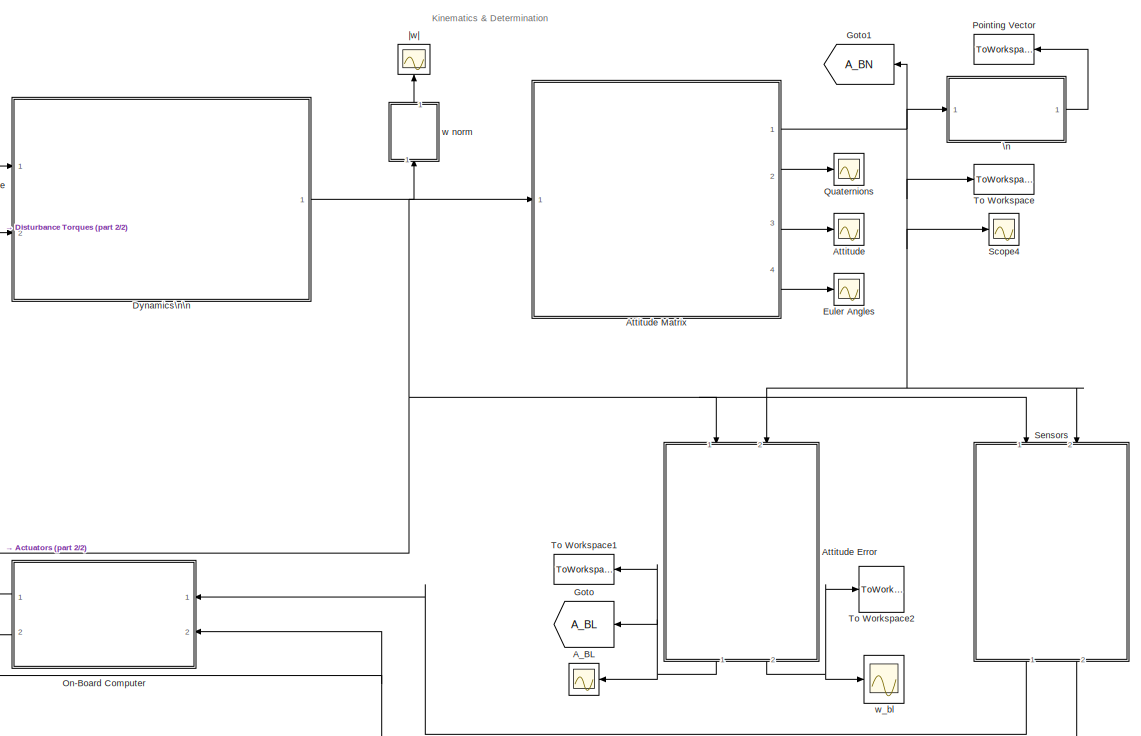
[diagram: root canvas - part 1/2, right side, full height]
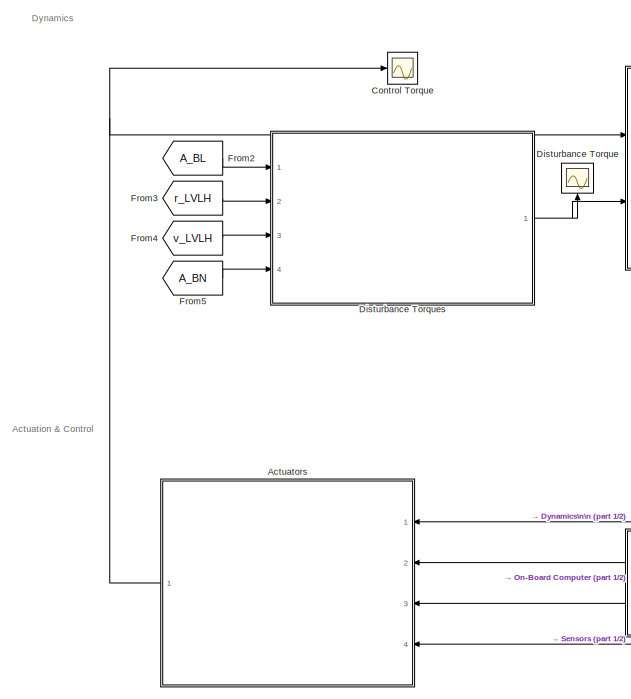
[diagram: root canvas - part 2/2, left side, full height]
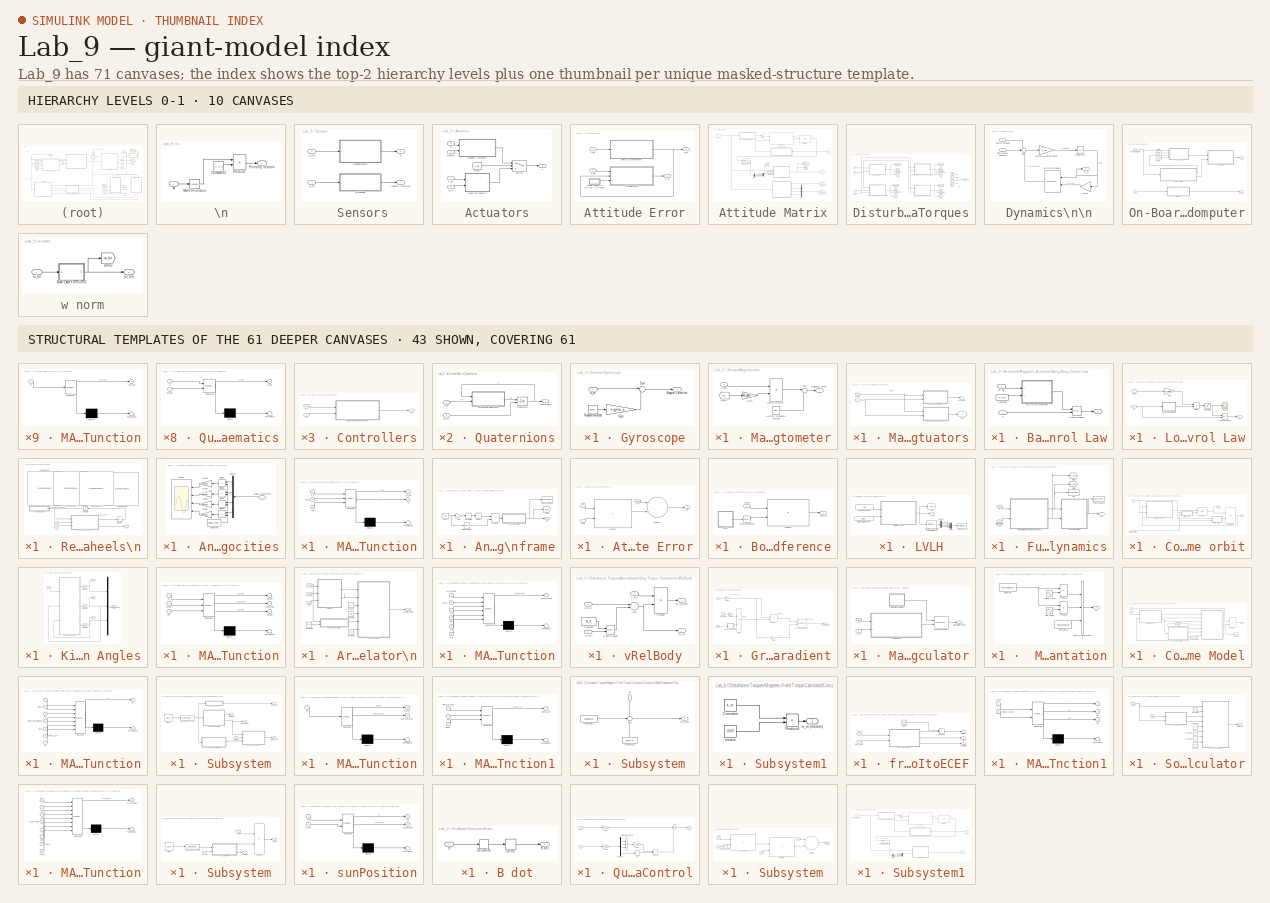
[diagram: thumbnail index - top-2 hierarchy levels (10 canvases) + 43 structural-template representatives of the remaining 61 canvases]
MODEL Lab_9
KIND model
BLOCK [SubSystem]  Sensors
  Ports = [2, 2]
  RequestExecContextInheritance = off
  SID = 1542
BLOCK [Inport]  Sensors/A_BN
  IconDisplay = Port number
  Port = 2
  SID = 1559
BLOCK [Outport]  Sensors/Angular Velocities
  IconDisplay = Port number
  SID = 1544
  SampleTime = 1/100
BLOCK [Outport]  Sensors/B
  IconDisplay = Port number
  Port = 2
  SID = 1560
  SampleTime = 0.2
BLOCK [SubSystem]  Sensors/Gyroscope
  Ports = [1, 1]
  RequestExecContextInheritance = off
  SID = 1561
BLOCK [Outport]  Sensors/Gyroscope/Angular Velocities
  IconDisplay = Port number
  SID = 1563
BLOCK [Gain]  Sensors/Gyroscope/Gain
  Gain = sigma_e
  OutDataTypeStr = Inherit: Inherit via internal rule
  ParamDataTypeStr = Inherit: Inherit via internal rule
  SID = 1654
  SaturateOnIntegerOverflow = off
BLOCK [RandomNumber]  Sensors/Gyroscope/Random\nNumber
  SID = 1648
  SampleTime = 1
BLOCK [Sum]  Sensors/Gyroscope/Sum
  IconShape = round
  InputSameDT = off
  Inputs = |++
  OutDataTypeStr = Inherit: Inherit via internal rule
  Ports = [2, 1]
  SID = 1649
  SaturateOnIntegerOverflow = off
BLOCK [Inport]  Sensors/Gyroscope/ω_bn
  IconDisplay = Port number
  SID = 1562
BLOCK [SubSystem]  Sensors/Magnetometer
  Ports = [1, 1]
  RequestExecContextInheritance = off
  SID = 1528
BLOCK [Inport]  Sensors/Magnetometer/A_BN
  IconDisplay = Port number
  SID = 1538
BLOCK [From]  Sensors/Magnetometer/From7
  GotoTag = B_n
  SID = 1526
  TagVisibility = global
BLOCK [Gain]  Sensors/Magnetometer/Gain
  Gain = A_epsilon
  Multiplication = Matrix(K*u)
  OutDataTypeStr = Inherit: Inherit via internal rule
  ParamDataTypeStr = Inherit: Inherit via internal rule
  SID = 1524
  SaturateOnIntegerOverflow = off
BLOCK [Outport]  Sensors/Magnetometer/Magnetic Field
  IconDisplay = Port number
  SID = 1530
BLOCK [Product]  Sensors/Magnetometer/Matrix Multiply
  InputSameDT = off
  Multiplication = Matrix(*)
  OutDataTypeStr = Inherit: Inherit via internal rule
  Ports = [2, 1]
  RndMeth = Floor
  SID = 1527
  SaturateOnIntegerOverflow = off
BLOCK [Sum]  Sensors/Magnetometer/Sum
  IconShape = round
  InputSameDT = off
  Inputs = |++
  OutDataTypeStr = Inherit: Inherit via internal rule
  Ports = [2, 1]
  SID = 1551
  SaturateOnIntegerOverflow = off
BLOCK [UniformRandomNumber]  Sensors/Magnetometer/Uniform Random\nNumber
  Maximum = 1.5*1e-8
  Minimum = 5*1e-12
  SID = 1550
  SampleTime = 1
BLOCK [Inport]  Sensors/ω_bn
  IconDisplay = Port number
  SID = 1543
BLOCK [Scope] A_BL
  Floating = off
  NumInputPorts = 1
  Ports = [1]
  SID = 1152
  ScopeSpecificationString = Simulink.scopes.TimeScopeBlockCfg('CurrentConfiguration', extmgr.ConfigurationSet(extmgr.Configuration('Core','General UI',true),extmgr.Configuration('Core','Source UI',true),extmgr.Configuration('Sources','WiredSimulink',true,'DataLoggingVariableName','ScopeData2'),extmgr.Configuration('Visuals','Time Domain',true,'SerializedDisplays',{struct('MinYLimReal','-1.24956','MaxYLimReal','1.24607','YLab...<+1593ch>
BLOCK [SubSystem] Actuators
  Ports = [4, 1]
  RequestExecContextInheritance = off
  SID = 1174
BLOCK [Inport] Actuators/B
  IconDisplay = Port number
  Port = 4
  SID = 1175
BLOCK [Inport] Actuators/B dot\n
  IconDisplay = Port number
  Port = 3
  SID = 1537
BLOCK [From] Actuators/From
  GotoTag = w_bn
  SID = 1492
  TagVisibility = global
BLOCK [SubSystem] Actuators/Magnetic Actuators
  Ports = [2, 1]
  RequestExecContextInheritance = off
  SID = 1480
BLOCK [Inport] Actuators/Magnetic Actuators/B
  IconDisplay = Port number
  SID = 1536
BLOCK [Inport] Actuators/Magnetic Actuators/B_dot
  IconDisplay = Port number
  Port = 2
  SID = 1638
BLOCK [SubSystem] Actuators/Magnetic Actuators/Bang-Bang Control Law
  Ports = [2, 1]
  RequestExecContextInheritance = off
  SID = 1509
BLOCK [Inport] Actuators/Magnetic Actuators/Bang-Bang Control Law/B
  IconDisplay = Port number
  Port = 2
  SID = 1511
BLOCK [Inport] Actuators/Magnetic Actuators/Bang-Bang Control Law/B dot
  IconDisplay = Port number
  SID = 1510
BLOCK [Constant] Actuators/Magnetic Actuators/Bang-Bang Control Law/Constant
  SID = 1523
  Value = m_max
BLOCK [Reference] Actuators/Magnetic Actuators/Bang-Bang Control Law/Cross Product1  REF=vrlib/Utilities/Cross Product
  Ports = [2, 1]
  SID = 1504
  SourceBlock = vrlib/Utilities/Cross Product
  SourceProductBaseCode = VR
  SourceProductName = Simulink 3D Animation
  SourceType = Cross Product
BLOCK [Outport] Actuators/Magnetic Actuators/Bang-Bang Control Law/L
  IconDisplay = Port number
  SID = 1512
BLOCK [SubSystem] Actuators/Magnetic Actuators/Bang-Bang Control Law/MATLAB Function
  ErrorFcn = Stateflow.Translate.translate
  PermitHierarchicalResolution = ExplicitOnly
  Ports = [2, 1]
  RequestExecContextInheritance = off
  SFBlockType = MATLAB Function
  SID = 1503
  TreatAsAtomicUnit = on
BLOCK [Demux] Actuators/Magnetic Actuators/Bang-Bang Control Law/MATLAB Function/ Demux 
  Outputs = 1
  Ports = [1, 1]
  SID = 1503::20
BLOCK [S-Function] Actuators/Magnetic Actuators/Bang-Bang Control Law/MATLAB Function/ SFunction 
  EnableBusSupport = on
  FunctionName = sf_sfun
  PortCounts = [2 2]
  Ports = [2, 2]
  SFcnIsStateOwnerBlock = off
  SFunctionDeploymentMode = off
  SID = 1503::19
  Tag = Stateflow S-Function Lab_9 24
BLOCK [Terminator] Actuators/Magnetic Actuators/Bang-Bang Control Law/MATLAB Function/ Terminator 
  SID = 1503::21
BLOCK [Inport] Actuators/Magnetic Actuators/Bang-Bang Control Law/MATLAB Function/b_dot
  IconDisplay = Port number
  SID = 1503::1
BLOCK [Outport] Actuators/Magnetic Actuators/Bang-Bang Control Law/MATLAB Function/m
  IconDisplay = Port number
  SID = 1503::5
BLOCK [Inport] Actuators/Magnetic Actuators/Bang-Bang Control Law/MATLAB Function/m_max
  IconDisplay = Port number
  Port = 2
  SID = 1503::22
BLOCK [Outport] Actuators/Magnetic Actuators/L\n\n\n
  IconDisplay = Port number
  SID = 1487
BLOCK [SubSystem] Actuators/Magnetic Actuators/Lovera Control Law
  Ports = [2, 1]
  RequestExecContextInheritance = off
  SID = 1513
BLOCK [Inport] Actuators/Magnetic Actuators/Lovera Control Law/ B dot
  IconDisplay = Port number
  SID = 1514
BLOCK [Inport] Actuators/Magnetic Actuators/Lovera Control Law/B
  IconDisplay = Port number
  Port = 2
  SID = 1515
BLOCK [Reference] Actuators/Magnetic Actuators/Lovera Control Law/Cross Product  REF=vrlib/Utilities/Cross Product
  Ports = [2, 1]
  SID = 1481
  SourceBlock = vrlib/Utilities/Cross Product
  SourceProductBaseCode = VR
  SourceProductName = Simulink 3D Animation
  SourceType = Cross Product
BLOCK [Product] Actuators/Magnetic Actuators/Lovera Control Law/Divide
  InputSameDT = off
  Inputs = */
  OutDataTypeStr = Inherit: Inherit via internal rule
  Ports = [2, 1]
  RndMeth = Floor
  SID = 1483
  SaturateOnIntegerOverflow = off
BLOCK [Gain] Actuators/Magnetic Actuators/Lovera Control Law/Gain
  Gain = k_bdot
  OutDataTypeStr = Inherit: Inherit via internal rule
  ParamDataTypeStr = Inherit: Inherit via internal rule
  SID = 1485
  SaturateOnIntegerOverflow = off
BLOCK [Outport] Actuators/Magnetic Actuators/Lovera Control Law/L
  IconDisplay = Port number
  SID = 1517
BLOCK [SubSystem] Actuators/Magnetic Actuators/Lovera Control Law/MATLAB Function1
  ErrorFcn = Stateflow.Translate.translate
  PermitHierarchicalResolution = ExplicitOnly
  Ports = [1, 1]
  RequestExecContextInheritance = off
  SFBlockType = MATLAB Function
  SID = 1486
  TreatAsAtomicUnit = on
BLOCK [Demux] Actuators/Magnetic Actuators/Lovera Control Law/MATLAB Function1/ Demux 
  Outputs = 1
  Ports = [1, 1]
  SID = 1486::20
BLOCK [S-Function] Actuators/Magnetic Actuators/Lovera Control Law/MATLAB Function1/ SFunction 
  EnableBusSupport = on
  FunctionName = sf_sfun
  PortCounts = [1 2]
  Ports = [1, 2]
  SFcnIsStateOwnerBlock = off
  SFunctionDeploymentMode = off
  SID = 1486::19
  Tag = Stateflow S-Function Lab_9 23
BLOCK [Terminator] Actuators/Magnetic Actuators/Lovera Control Law/MATLAB Function1/ Terminator 
  SID = 1486::21
BLOCK [Inport] Actuators/Magnetic Actuators/Lovera Control Law/MATLAB Function1/u
  IconDisplay = Port number
  SID = 1486::1
BLOCK [Outport] Actuators/Magnetic Actuators/Lovera Control Law/MATLAB Function1/y
  IconDisplay = Port number
  SID = 1486::5
BLOCK [Saturate] Actuators/Magnetic Actuators/Lovera Control Law/Saturation
  InputPortMap = u0
  LowerLimit = -m_max
  Ports = [1, 1]
  SID = 1499
  UpperLimit = m_max
BLOCK [Scope] Actuators/Magnetic Actuators/Lovera Control Law/Scope
  Floating = off
  NumInputPorts = 1
  Ports = [1]
  SID = 1500
  ScopeSpecificationString = Simulink.scopes.TimeScopeBlockCfg('CurrentConfiguration', extmgr.ConfigurationSet(extmgr.Configuration('Core','General UI',true),extmgr.Configuration('Core','Source UI',true),extmgr.Configuration('Sources','WiredSimulink',true,'DataLoggingVariableName','ScopeData2'),extmgr.Configuration('Visuals','Time Domain',true,'SerializedDisplays',{struct('MinYLimReal','-0.00211','MaxYLimReal','0.00119','YLab...<+1430ch>
BLOCK [Terminator] Actuators/Magnetic Actuators/Terminator
  SID = 1519
BLOCK [SubSystem] Actuators/Reaction Wheels\n
  Ports = [2, 1]
  RequestExecContextInheritance = off
  SID = 1177
BLOCK [SubSystem] Actuators/Reaction Wheels\n/Angular Velocities
  Ports = [1]
  RequestExecContextInheritance = off
  SID = 1180
BLOCK [Inport] Actuators/Reaction Wheels\n/Angular Velocities/Angular Momentum
  IconDisplay = Port number
  SID = 1181
BLOCK [Constant] Actuators/Reaction Wheels\n/Angular Velocities/Constant
  SID = 1182
  Value = wheel_inertia
BLOCK [Demux] Actuators/Reaction Wheels\n/Angular Velocities/Demux
  DisplayOption = bar
  Ports = [1, 4]
  SID = 1183
BLOCK [Product] Actuators/Reaction Wheels\n/Angular Velocities/Divide
  InputSameDT = off
  Inputs = */
  OutDataTypeStr = Inherit: Inherit via internal rule
  Ports = [2, 1]
  RndMeth = Floor
  SID = 1184
  SaturateOnIntegerOverflow = off
BLOCK [Product] Actuators/Reaction Wheels\n/Angular Velocities/Divide1
  InputSameDT = off
  Inputs = */
  OutDataTypeStr = Inherit: Inherit via internal rule
  Ports = [2, 1]
  RndMeth = Floor
  SID = 1185
  SaturateOnIntegerOverflow = off
BLOCK [Product] Actuators/Reaction Wheels\n/Angular Velocities/Divide2
  InputSameDT = off
  Inputs = */
  OutDataTypeStr = Inherit: Inherit via internal rule
  Ports = [2, 1]
  RndMeth = Floor
  SID = 1186
  SaturateOnIntegerOverflow = off
BLOCK [Product] Actuators/Reaction Wheels\n/Angular Velocities/Divide3
  InputSameDT = off
  Inputs = */
  OutDataTypeStr = Inherit: Inherit via internal rule
  Ports = [2, 1]
  RndMeth = Floor
  SID = 1187
  SaturateOnIntegerOverflow = off
BLOCK [Gain] Actuators/Reaction Wheels\n/Angular Velocities/Gain1
  Gain = radsToRPM
  OutDataTypeStr = Inherit: Inherit via internal rule
  ParamDataTypeStr = Inherit: Inherit via internal rule
  SID = 1188
  SaturateOnIntegerOverflow = off
BLOCK [Gain] Actuators/Reaction Wheels\n/Angular Velocities/Gain2
  Gain = radsToRPM
  OutDataTypeStr = Inherit: Inherit via internal rule
  ParamDataTypeStr = Inherit: Inherit via internal rule
  SID = 1189
  SaturateOnIntegerOverflow = off
BLOCK [Gain] Actuators/Reaction Wheels\n/Angular Velocities/Gain3
  Gain = radsToRPM
  OutDataTypeStr = Inherit: Inherit via internal rule
  ParamDataTypeStr = Inherit: Inherit via internal rule
  SID = 1190
  SaturateOnIntegerOverflow = off
BLOCK [Gain] Actuators/Reaction Wheels\n/Angular Velocities/Gain4
  Gain = radsToRPM
  OutDataTypeStr = Inherit: Inherit via internal rule
  ParamDataTypeStr = Inherit: Inherit via internal rule
  SID = 1191
  SaturateOnIntegerOverflow = off
BLOCK [Scope] Actuators/Reaction Wheels\n/Angular Velocities/Scope
  Floating = off
  NumInputPorts = 4
  Ports = [4]
  SID = 1192
  ScopeSpecificationString = Simulink.scopes.TimeScopeBlockCfg('CurrentConfiguration', extmgr.ConfigurationSet(extmgr.Configuration('Core','General UI',true),extmgr.Configuration('Core','Source UI',true),extmgr.Configuration('Sources','WiredSimulink',true,'DataLoggingVariableName','ScopeData4'),extmgr.Configuration('Visuals','Time Domain',true,'SerializedDisplays',{struct('MinYLimReal','-520.46576','MaxYLimReal','422.1388','Y...<+1400ch>
BLOCK [CustomGaugeBlock] Actuators/Reaction Wheels\n/Custom Gauge
  BackgroundImage = data:image/svg+xml;base64,PD94bWwgdmVyc2lvbj0iMS4wIiBlbmNvZGluZz0iVVRGLTgiIHN0YW5kYWxvbmU9Im5vIj8+CjwhLS0gR2VuZXJhdG9yOiBBZG9iZSBJbGx1c3RyYXRvciAxOS4yLjEsIFNWRyBFeHBvcnQgUGx1Zy1JbiAuIFNWRyBWZXJzaW9uOiA2LjAwIEJ1aWxkIDApICAtLT4KCjxzdmcKICAgeG1sbnM6ZGM9Imh0dHA6Ly9wdXJsLm9yZy9kYy9lbGVtZW50cy8xLjEvIgogICB4bWxuczpjYz0iaHR0cDovL2NyZWF0aXZlY29tbW9ucy5vcmcvbnMjIgogICB4bWxuczpyZGY9Imh0dHA6Ly93d3cudzMub3JnLz...<+9686ch>  <repeated x4 — deduplicated; at blocks: Custom Gauge, Custom Gauge1, Custom Gauge3, Custom Gauge4>
  BindingPersistence = DataTag0
  GaugeArcDefined = true
  GaugeArcRadius = 0.1358563990074277
  GaugeArcRatio = 0.8333333333333
  GaugeArcRotation = 240.5385250290321
  GaugeArcStrokeWidth = 0.03972965542329953
  GaugeArcTransparency = 0
  GaugeMax = 6000
  GaugeMin = -6000
  GaugeTickColor = #faf5c8
  NeedleHeight = 0.11602152693163792
  NeedleImage = data:image/svg+xml;base64,PD94bWwgdmVyc2lvbj0iMS4wIiBlbmNvZGluZz0idXRmLTgiPz4KPCEtLSBHZW5lcmF0b3I6IEFkb2JlIElsbHVzdHJhdG9yIDE5LjIuMSwgU1ZHIEV4cG9ydCBQbHVnLUluIC4gU1ZHIFZlcnNpb246IDYuMDAgQnVpbGQgMCkgIC0tPgo8c3ZnIHZlcnNpb249IjEuMSIgeG1sbnM9Imh0dHA6Ly93d3cudzMub3JnLzIwMDAvc3ZnIiB4bWxuczp4bGluaz0iaHR0cDovL3d3dy53My5vcmcvMTk5OS94bGluayIgeD0iMHB4IiB5PSIwcHgiCgkgdmlld0JveD0iMCAwIDIwMCA1MCIgc3R5bGU9ImVuYW...<+9966ch>  <repeated x4 — deduplicated; at blocks: Custom Gauge, Custom Gauge1, Custom Gauge3, Custom Gauge4>
  NeedleInitialRotation = -59.94322499147643
  NeedleWidth = 0.1911368983686954
  NeedleXPos = 0.3802298124325669
  NeedleYPos = 0.48117305677424654
  SID = 1193
  ScaleColorsJSON = []
  ValueArcColor = #1759b0
  WebBlockId = 1193
  fixedAspectRatio = on
BLOCK [CustomGaugeBlock] Actuators/Reaction Wheels\n/Custom Gauge1
  BindingPersistence = DataTag1
  GaugeArcDefined = true
  GaugeArcRadius = 0.1358563990074277
  GaugeArcRatio = 0.8333333333333
  GaugeArcRotation = 240.5385250290321
  GaugeArcStrokeWidth = 0.03972965542329953
  GaugeArcTransparency = 0
  GaugeMax = 6000
  GaugeMin = -6000
  GaugeTickColor = #faf5c8
  NeedleHeight = 0.11602152693163792
  NeedleInitialRotation = -59.94322499147643
  NeedleWidth = 0.1911368983686954
  NeedleXPos = 0.3802298124325669
  NeedleYPos = 0.48117305677424654
  SID = 1194
  ScaleColorsJSON = []
  ValueArcColor = #1759b0
  WebBlockId = 1194
  fixedAspectRatio = on
BLOCK [CustomGaugeBlock] Actuators/Reaction Wheels\n/Custom Gauge3
  BindingPersistence = DataTag2
  GaugeArcDefined = true
  GaugeArcRadius = 0.1358563990074277
  GaugeArcRatio = 0.8333333333333
  GaugeArcRotation = 240.5385250290321
  GaugeArcStrokeWidth = 0.03972965542329953
  GaugeArcTransparency = 0
  GaugeMax = 6000
  GaugeMin = -6000
  GaugeTickColor = #faf5c8
  NeedleHeight = 0.11602152693163792
  NeedleInitialRotation = -59.94322499147643
  NeedleWidth = 0.1911368983686954
  NeedleXPos = 0.3802298124325669
  NeedleYPos = 0.48117305677424654
  SID = 1195
  ScaleColorsJSON = []
  ValueArcColor = #1759b0
  WebBlockId = 1195
  fixedAspectRatio = on
BLOCK [CustomGaugeBlock] Actuators/Reaction Wheels\n/Custom Gauge4
  BindingPersistence = DataTag3
  GaugeArcDefined = true
  GaugeArcRadius = 0.1358563990074277
  GaugeArcRatio = 0.8333333333333
  GaugeArcRotation = 240.5385250290321
  GaugeArcStrokeWidth = 0.03972965542329953
  GaugeArcTransparency = 0
  GaugeMax = 6000
  GaugeMin = -6000
  GaugeTickColor = #faf5c8
  NeedleHeight = 0.11602152693163792
  NeedleInitialRotation = -59.94322499147643
  NeedleWidth = 0.1911368983686954
  NeedleXPos = 0.3802298124325669
  NeedleYPos = 0.48117305677424654
  SID = 1196
  ScaleColorsJSON = []
  ValueArcColor = #1759b0
  WebBlockId = 1196
  fixedAspectRatio = on
BLOCK [Integrator] Actuators/Reaction Wheels\n/Integrator
  InitialCondition = [0,0,0,0]
  LimitOutput = on
  LowerSaturationLimit = -max_torque
  Ports = [1, 1]
  SID = 1197
  UpperSaturationLimit = max_torque
BLOCK [SubSystem] Actuators/Reaction Wheels\n/MATLAB Function
  ErrorFcn = Stateflow.Translate.translate
  PermitHierarchicalResolution = ExplicitOnly
  Ports = [3, 2]
  RequestExecContextInheritance = off
  SFBlockType = MATLAB Function
  SID = 1198
  TreatAsAtomicUnit = on
BLOCK [Demux] Actuators/Reaction Wheels\n/MATLAB Function/ Demux 
  Outputs = 1
  Ports = [1, 1]
  SID = 1198::29
BLOCK [S-Function] Actuators/Reaction Wheels\n/MATLAB Function/ SFunction 
  EnableBusSupport = on
  FunctionName = sf_sfun
  PortCounts = [3 3]
  Ports = [3, 3]
  SFcnIsStateOwnerBlock = off
  SFunctionDeploymentMode = off
  SID = 1198::28
  Tag = Stateflow S-Function Lab_9 16
BLOCK [Terminator] Actuators/Reaction Wheels\n/MATLAB Function/ Terminator 
  SID = 1198::30
BLOCK [Inport] Actuators/Reaction Wheels\n/MATLAB Function/h_d
  IconDisplay = Port number
  SID = 1198::23
BLOCK [Outport] Actuators/Reaction Wheels\n/MATLAB Function/h_d_dot
  IconDisplay = Port number
  SID = 1198::26
BLOCK [Outport] Actuators/Reaction Wheels\n/MATLAB Function/u
  IconDisplay = Port number
  Port = 2
  SID = 1198::27
BLOCK [Inport] Actuators/Reaction Wheels\n/MATLAB Function/u_id
  IconDisplay = Port number
  Port = 3
  SID = 1198::25
BLOCK [Inport] Actuators/Reaction Wheels\n/MATLAB Function/w_bn
  IconDisplay = Port number
  Port = 2
  SID = 1198::24
BLOCK [Saturate] Actuators/Reaction Wheels\n/Saturation
  InputPortMap = u0
  LowerLimit = -max_momentum
  Ports = [1, 1]
  SID = 1199
  UpperLimit = max_momentum
BLOCK [Outport] Actuators/Reaction Wheels\n/u
  IconDisplay = Port number
  SID = 1200
BLOCK [Inport] Actuators/Reaction Wheels\n/u_id
  IconDisplay = Port number
  Port = 2
  SID = 1179
BLOCK [Inport] Actuators/Reaction Wheels\n/ω_bn
  IconDisplay = Port number
  SID = 1178
BLOCK [Switch] Actuators/Switch
  InputSameDT = off
  SID = 1490
  SaturateOnIntegerOverflow = off
  Threshold = 0.02
  ZeroCross = off
BLOCK [Outport] Actuators/u
  IconDisplay = Port number
  SID = 1203
BLOCK [Inport] Actuators/u_id
  IconDisplay = Port number
  Port = 2
  SID = 1644
BLOCK [Inport] Actuators/ω_bn
  IconDisplay = Port number
  SID = 1176
BLOCK [Scope] Attitude
  Floating = off
  NumInputPorts = 1
  Ports = [1]
  SID = 1204
  ScopeSpecificationString = Simulink.scopes.TimeScopeBlockCfg('CurrentConfiguration', extmgr.ConfigurationSet(extmgr.Configuration('Core','General UI',true),extmgr.Configuration('Core','Source UI',true),extmgr.Configuration('Sources','WiredSimulink',true,'DataLoggingVariableName','ScopeData3'),extmgr.Configuration('Visuals','Time Domain',true,'SerializedDisplays',{struct('MinYLimReal','-3.00854','MaxYLimReal','2.65787','YLab...<+1540ch>
BLOCK [SubSystem] Attitude Error
  Ports = [2, 2]
  RequestExecContextInheritance = off
  SID = 1205
BLOCK [Outport] Attitude Error/A_BL
  IconDisplay = Port number
  SID = 1267
BLOCK [Inport] Attitude Error/A_BN
  IconDisplay = Port number
  Port = 2
  SID = 1207
BLOCK [SubSystem] Attitude Error/Angular velocity of the \norbital pointing \nframe
  Ports = [0, 1]
  RequestExecContextInheritance = off
  SID = 1208
BLOCK [Delay] Attitude Error/Angular velocity of the \norbital pointing \nframe/Delay
  DelayLength = 1
  InputPortMap = u0
  Ports = [1, 1]
  SID = 1209
BLOCK [Derivative] Attitude Error/Angular velocity of the \norbital pointing \nframe/Derivative
  SID = 1210
BLOCK [From] Attitude Error/Angular velocity of the \norbital pointing \nframe/From
  GotoTag = A_LN
  SID = 1211
  TagVisibility = global
BLOCK [Gain] Attitude Error/Angular velocity of the \norbital pointing \nframe/Gain
  Gain = -1
  OutDataTypeStr = Inherit: Inherit via internal rule
  ParamDataTypeStr = Inherit: Inherit via internal rule
  SID = 1212
  SaturateOnIntegerOverflow = off
BLOCK [Goto] Attitude Error/Angular velocity of the \norbital pointing \nframe/Goto
  GotoTag = w_ln
  SID = 1634
  TagVisibility = global
BLOCK [SubSystem] Attitude Error/Angular velocity of the \norbital pointing \nframe/MATLAB Function
  ErrorFcn = Stateflow.Translate.translate
  PermitHierarchicalResolution = ExplicitOnly
  Ports = [1, 1]
  RequestExecContextInheritance = off
  SFBlockType = MATLAB Function
  SID = 1213
  TreatAsAtomicUnit = on
BLOCK [Demux] Attitude Error/Angular velocity of the \norbital pointing \nframe/MATLAB Function/ Demux 
  Outputs = 1
  Ports = [1, 1]
  SID = 1213::23
BLOCK [S-Function] Attitude Error/Angular velocity of the \norbital pointing \nframe/MATLAB Function/ SFunction 
  EnableBusSupport = on
  FunctionName = sf_sfun
  PortCounts = [1 2]
  Ports = [1, 2]
  SFcnIsStateOwnerBlock = off
  SFunctionDeploymentMode = off
  SID = 1213::22
  Tag = Stateflow S-Function Lab_9 8
BLOCK [Terminator] Attitude Error/Angular velocity of the \norbital pointing \nframe/MATLAB Function/ Terminator 
  SID = 1213::24
BLOCK [Outport] Attitude Error/Angular velocity of the \norbital pointing \nframe/MATLAB Function/w_ln
  IconDisplay = Port number
  SID = 1213::5
BLOCK [Inport] Attitude Error/Angular velocity of the \norbital pointing \nframe/MATLAB Function/w_ln_cross
  IconDisplay = Port number
  SID = 1213::1
BLOCK [Math] Attitude Error/Angular velocity of the \norbital pointing \nframe/Math\nFunction
  Operator = transpose
  Ports = [1, 1]
  SID = 1214
BLOCK [Product] Attitude Error/Angular velocity of the \norbital pointing \nframe/Product
  InputSameDT = off
  Multiplication = Matrix(*)
  OutDataTypeStr = Inherit: Inherit via internal rule
  Ports = [2, 1]
  RndMeth = Floor
  SID = 1215
  SaturateOnIntegerOverflow = off
BLOCK [ToWorkspace] Attitude Error/Angular velocity of the \norbital pointing \nframe/To Workspace
  FixptAsFi = on
  MaxDataPoints = inf
  Ports = [1]
  SID = 1217
  SampleTime = -1
  Save2DSignal = 3-D array (concatenate along third dimension)
  VariableName = w_ln
BLOCK [Outport] Attitude Error/Angular velocity of the \norbital pointing \nframe/ω_ln
  IconDisplay = Port number
  SID = 1218
BLOCK [SubSystem] Attitude Error/Attitude Error
  Ports = [3, 1]
  RequestExecContextInheritance = off
  SID = 1219
BLOCK [Inport] Attitude Error/Attitude Error/A_BL\n
  IconDisplay = Port number
  Port = 2
  SID = 1221
BLOCK [Product] Attitude Error/Attitude Error/Product
  InputSameDT = off
  Multiplication = Matrix(*)
  OutDataTypeStr = Inherit: Inherit via internal rule
  Ports = [2, 1]
  RndMeth = Floor
  SID = 1223
  SaturateOnIntegerOverflow = off
BLOCK [Sum] Attitude Error/Attitude Error/Subtract
  InputSameDT = off
  Inputs = +-
  OutDataTypeStr = Inherit: Inherit via internal rule
  Ports = [2, 1]
  SID = 1224
  SaturateOnIntegerOverflow = off
BLOCK [Outport] Attitude Error/Attitude Error/ω_bl
  IconDisplay = Port number
  SID = 1225
BLOCK [Inport] Attitude Error/Attitude Error/ω_bn
  IconDisplay = Port number
  SID = 1220
BLOCK [Inport] Attitude Error/Attitude Error/ω_ln\n
  IconDisplay = Port number
  Port = 3
  SID = 1222
BLOCK [SubSystem] Attitude Error/Body\\LVLH Difference
  Ports = [1, 1]
  RequestExecContextInheritance = off
  SID = 1226
BLOCK [Outport] Attitude Error/Body\\LVLH Difference/A_BL\n\n 
  IconDisplay = Port number
  SID = 1266
BLOCK [Inport] Attitude Error/Body\\LVLH Difference/A_BN\n
  IconDisplay = Port number
  SID = 1227
BLOCK [SubSystem] Attitude Error/Body\\LVLH Difference/LVLH
  Ports = [0, 1]
  RequestExecContextInheritance = off
  SID = 1228
BLOCK [Outport] Attitude Error/Body\\LVLH Difference/LVLH/A_LN\n
  IconDisplay = Port number
  SID = 1263
BLOCK [Demux] Attitude Error/Body\\LVLH Difference/LVLH/Demux
  DisplayOption = bar
  Ports = [1, 4]
  SID = 1229
BLOCK [Reference] Attitude Error/Body\\LVLH Difference/LVLH/Direction Cosine Matrix \nto Quaternions  REF=sharedtransform/Direction Cosine Matrix \nto Quaternions
  Ports = [1, 1]
  SID = 1230
  SourceBlock = sharedtransform/Direction Cosine Matrix \nto Quaternions
  SourceProductBaseCode = AE
  SourceProductName = Aerospace Blockset
  SourceType = DCM2Quaternion
  aMode = 0
  action = None
  tolerance = eps(2)
BLOCK [SubSystem] Attitude Error/Body\\LVLH Difference/LVLH/Full Orbital Dynamics
  Ports = [2, 1]
  RequestExecContextInheritance = off
  SID = 1231
BLOCK [Outport] Attitude Error/Body\\LVLH Difference/LVLH/Full Orbital Dynamics/A_LN
  IconDisplay = Port number
  SID = 1257
BLOCK [SubSystem] Attitude Error/Body\\LVLH Difference/LVLH/Full Orbital Dynamics/Compute R and V of reference orbit
  Ports = [2, 2]
  RequestExecContextInheritance = off
  SID = 1235
BLOCK [Inport] Attitude Error/Body\\LVLH Difference/LVLH/Full Orbital Dynamics/Compute R and V of reference orbit/Initial Conditions
  IconDisplay = Port number
  Port = 2
  SID = 1237
BLOCK [SubSystem] Attitude Error/Body\\LVLH Difference/LVLH/Full Orbital Dynamics/Compute R and V of reference orbit/Initial Position
  Ports = [2, 1]
  RequestExecContextInheritance = off
  SID = 1238
BLOCK [Inport] Attitude Error/Body\\LVLH Difference/LVLH/Full Orbital Dynamics/Compute R and V of reference orbit/Initial Position/Initial Conditions
  IconDisplay = Port number
  Port = 2
  SID = 1240
BLOCK [SubSystem] Attitude Error/Body\\LVLH Difference/LVLH/Full Orbital Dynamics/Compute R and V of reference orbit/Initial Position/MATLAB Function2
  ErrorFcn = Stateflow.Translate.translate
  PermitHierarchicalResolution = ExplicitOnly
  Ports = [2, 1]
  RequestExecContextInheritance = off
  SFBlockType = MATLAB Function
  SID = 1241
  TreatAsAtomicUnit = on
BLOCK [Demux] Attitude Error/Body\\LVLH Difference/LVLH/Full Orbital Dynamics/Compute R and V of reference orbit/Initial Position/MATLAB Function2/ Demux 
  Outputs = 1
  Ports = [1, 1]
  SID = 1241::33
BLOCK [S-Function] Attitude Error/Body\\LVLH Difference/LVLH/Full Orbital Dynamics/Compute R and V of reference orbit/Initial Position/MATLAB Function2/ SFunction 
  EnableBusSupport = on
  FunctionName = sf_sfun
  PortCounts = [2 2]
  Ports = [2, 2]
  SFcnIsStateOwnerBlock = off
  SFunctionDeploymentMode = off
  SID = 1241::32
  Tag = Stateflow S-Function Lab_9 9
BLOCK [Terminator] Attitude Error/Body\\LVLH Difference/LVLH/Full Orbital Dynamics/Compute R and V of reference orbit/Initial Position/MATLAB Function2/ Terminator 
  SID = 1241::34
BLOCK [Inport] Attitude Error/Body\\LVLH Difference/LVLH/Full Orbital Dynamics/Compute R and V of reference orbit/Initial Position/MATLAB Function2/kep
  IconDisplay = Port number
  SID = 1241::30
BLOCK [Inport] Attitude Error/Body\\LVLH Difference/LVLH/Full Orbital Dynamics/Compute R and V of reference orbit/Initial Position/MATLAB Function2/mu
  IconDisplay = Port number
  Port = 2
  SID = 1241::31
BLOCK [Outport] Attitude Error/Body\\LVLH Difference/LVLH/Full Orbital Dynamics/Compute R and V of reference orbit/Initial Position/MATLAB Function2/r_0
  IconDisplay = Port number
  SID = 1241::5
BLOCK [Inport] Attitude Error/Body\\LVLH Difference/LVLH/Full Orbital Dynamics/Compute R and V of reference orbit/Initial Position/mu
  IconDisplay = Port number
  SID = 1239
BLOCK [Outport] Attitude Error/Body\\LVLH Difference/LVLH/Full Orbital Dynamics/Compute R and V of reference orbit/Initial Position/r_0
  IconDisplay = Port number
  SID = 1242
BLOCK [SubSystem] Attitude Error/Body\\LVLH Difference/LVLH/Full Orbital Dynamics/Compute R and V of reference orbit/Initial Velocity
  Ports = [2, 1]
  RequestExecContextInheritance = off
  SID = 1243
BLOCK [Inport] Attitude Error/Body\\LVLH Difference/LVLH/Full Orbital Dynamics/Compute R and V of reference orbit/Initial Velocity/Initial Conditions
  IconDisplay = Port number
  Port = 2
  SID = 1245
BLOCK [SubSystem] Attitude Error/Body\\LVLH Difference/LVLH/Full Orbital Dynamics/Compute R and V of reference orbit/Initial Velocity/MATLAB Function1
  ErrorFcn = Stateflow.Translate.translate
  PermitHierarchicalResolution = ExplicitOnly
  Ports = [2, 1]
  RequestExecContextInheritance = off
  SFBlockType = MATLAB Function
  SID = 1246
  TreatAsAtomicUnit = on
BLOCK [Demux] Attitude Error/Body\\LVLH Difference/LVLH/Full Orbital Dynamics/Compute R and V of reference orbit/Initial Velocity/MATLAB Function1/ Demux 
  Outputs = 1
  Ports = [1, 1]
  SID = 1246::35
BLOCK [S-Function] Attitude Error/Body\\LVLH Difference/LVLH/Full Orbital Dynamics/Compute R and V of reference orbit/Initial Velocity/MATLAB Function1/ SFunction 
  EnableBusSupport = on
  FunctionName = sf_sfun
  PortCounts = [2 2]
  Ports = [2, 2]
  SFcnIsStateOwnerBlock = off
  SFunctionDeploymentMode = off
  SID = 1246::34
  Tag = Stateflow S-Function Lab_9 10
BLOCK [Terminator] Attitude Error/Body\\LVLH Difference/LVLH/Full Orbital Dynamics/Compute R and V of reference orbit/Initial Velocity/MATLAB Function1/ Terminator 
  SID = 1246::36
BLOCK [Inport] Attitude Error/Body\\LVLH Difference/LVLH/Full Orbital Dynamics/Compute R and V of reference orbit/Initial Velocity/MATLAB Function1/kep
  IconDisplay = Port number
  SID = 1246::32
BLOCK [Inport] Attitude Error/Body\\LVLH Difference/LVLH/Full Orbital Dynamics/Compute R and V of reference orbit/Initial Velocity/MATLAB Function1/mu
  IconDisplay = Port number
  Port = 2
  SID = 1246::33
BLOCK [Outport] Attitude Error/Body\\LVLH Difference/LVLH/Full Orbital Dynamics/Compute R and V of reference orbit/Initial Velocity/MATLAB Function1/r_dot_0
  IconDisplay = Port number
  SID = 1246::5
BLOCK [Inport] Attitude Error/Body\\LVLH Difference/LVLH/Full Orbital Dynamics/Compute R and V of reference orbit/Initial Velocity/mu
  IconDisplay = Port number
  SID = 1244
BLOCK [Outport] Attitude Error/Body\\LVLH Difference/LVLH/Full Orbital Dynamics/Compute R and V of reference orbit/Initial Velocity/r_dot_0
  IconDisplay = Port number
  SID = 1247
BLOCK [Integrator] Attitude Error/Body\\LVLH Difference/LVLH/Full Orbital Dynamics/Compute R and V of reference orbit/Integrator
  ContinuousStateAttributes = 'velocity'
  InitialCondition = [r,v]=kep2car(kep,mu);
  InitialConditionSource = external
  Ports = [2, 1]
  SID = 1248
BLOCK [Integrator] Attitude Error/Body\\LVLH Difference/LVLH/Full Orbital Dynamics/Compute R and V of reference orbit/Integrator2
  ContinuousStateAttributes = 'position'
  InitialCondition = [r,v]=kep2car(kep,mu);
  InitialConditionSource = external
  Ports = [2, 1]
  SID = 1249
BLOCK [SubSystem] Attitude Error/Body\\LVLH Difference/LVLH/Full Orbital Dynamics/Compute R and V of reference orbit/Orbital Dynamics
  ErrorFcn = Stateflow.Translate.translate
  PermitHierarchicalResolution = ExplicitOnly
  Ports = [2, 1]
  RequestExecContextInheritance = off
  SFBlockType = MATLAB Function
  SID = 1250
  TreatAsAtomicUnit = on
BLOCK [Demux] Attitude Error/Body\\LVLH Difference/LVLH/Full Orbital Dynamics/Compute R and V of reference orbit/Orbital Dynamics/ Demux 
  Outputs = 1
  Ports = [1, 1]
  SID = 1250::31
BLOCK [S-Function] Attitude Error/Body\\LVLH Difference/LVLH/Full Orbital Dynamics/Compute R and V of reference orbit/Orbital Dynamics/ SFunction 
  EnableBusSupport = on
  FunctionName = sf_sfun
  PortCounts = [2 2]
  Ports = [2, 2]
  SFcnIsStateOwnerBlock = off
  SFunctionDeploymentMode = off
  SID = 1250::30
  Tag = Stateflow S-Function Lab_9 11
BLOCK [Terminator] Attitude Error/Body\\LVLH Difference/LVLH/Full Orbital Dynamics/Compute R and V of reference orbit/Orbital Dynamics/ Terminator 
  SID = 1250::32
BLOCK [Inport] Attitude Error/Body\\LVLH Difference/LVLH/Full Orbital Dynamics/Compute R and V of reference orbit/Orbital Dynamics/mu
  IconDisplay = Port number
  Port = 2
  SID = 1250::29
BLOCK [Inport] Attitude Error/Body\\LVLH Difference/LVLH/Full Orbital Dynamics/Compute R and V of reference orbit/Orbital Dynamics/r
  IconDisplay = Port number
  SID = 1250::1
BLOCK [Outport] Attitude Error/Body\\LVLH Difference/LVLH/Full Orbital Dynamics/Compute R and V of reference orbit/Orbital Dynamics/r_dot_dot
  IconDisplay = Port number
  SID = 1250::5
BLOCK [Inport] Attitude Error/Body\\LVLH Difference/LVLH/Full Orbital Dynamics/Compute R and V of reference orbit/mu
  IconDisplay = Port number
  SID = 1236
BLOCK [Outport] Attitude Error/Body\\LVLH Difference/LVLH/Full Orbital Dynamics/Compute R and V of reference orbit/r
  IconDisplay = Port number
  SID = 1251
BLOCK [Outport] Attitude Error/Body\\LVLH Difference/LVLH/Full Orbital Dynamics/Compute R and V of reference orbit/r_dot
  IconDisplay = Port number
  Port = 2
  SID = 1252
BLOCK [Goto] Attitude Error/Body\\LVLH Difference/LVLH/Full Orbital Dynamics/Goto
  GotoTag = r_LVLH
  SID = 1253
  TagVisibility = global
BLOCK [Goto] Attitude Error/Body\\LVLH Difference/LVLH/Full Orbital Dynamics/Goto1
  GotoTag = v_LVLH
  SID = 1254
  TagVisibility = global
BLOCK [Inport] Attitude Error/Body\\LVLH Difference/LVLH/Full Orbital Dynamics/Initial Condition (kep)
  IconDisplay = Port number
  Port = 2
  SID = 1233
BLOCK [SubSystem] Attitude Error/Body\\LVLH Difference/LVLH/Full Orbital Dynamics/MATLAB Function
  ErrorFcn = Stateflow.Translate.translate
  PermitHierarchicalResolution = ExplicitOnly
  Ports = [2, 1]
  RequestExecContextInheritance = off
  SFBlockType = MATLAB Function
  SID = 1255
  TreatAsAtomicUnit = on
BLOCK [Demux] Attitude Error/Body\\LVLH Difference/LVLH/Full Orbital Dynamics/MATLAB Function/ Demux 
  Outputs = 1
  Ports = [1, 1]
  SID = 1255::24
BLOCK [S-Function] Attitude Error/Body\\LVLH Difference/LVLH/Full Orbital Dynamics/MATLAB Function/ SFunction 
  EnableBusSupport = on
  FunctionName = sf_sfun
  PortCounts = [2 2]
  Ports = [2, 2]
  SFcnIsStateOwnerBlock = off
  SFunctionDeploymentMode = off
  SID = 1255::23
  Tag = Stateflow S-Function Lab_9 12
BLOCK [Terminator] Attitude Error/Body\\LVLH Difference/LVLH/Full Orbital Dynamics/MATLAB Function/ Terminator 
  SID = 1255::25
BLOCK [Outport] Attitude Error/Body\\LVLH Difference/LVLH/Full Orbital Dynamics/MATLAB Function/A_LN
  IconDisplay = Port number
  SID = 1255::5
BLOCK [Inport] Attitude Error/Body\\LVLH Difference/LVLH/Full Orbital Dynamics/MATLAB Function/r
  IconDisplay = Port number
  SID = 1255::1
BLOCK [Inport] Attitude Error/Body\\LVLH Difference/LVLH/Full Orbital Dynamics/MATLAB Function/r_dot
  IconDisplay = Port number
  Port = 2
  SID = 1255::22
BLOCK [ToWorkspace] Attitude Error/Body\\LVLH Difference/LVLH/Full Orbital Dynamics/To Workspace
  FixptAsFi = on
  MaxDataPoints = inf
  Ports = [1]
  SID = 1256
  SampleTime = -1
  Save2DSignal = 3-D array (concatenate along third dimension)
  VariableName = A_LN
BLOCK [ToWorkspace] Attitude Error/Body\\LVLH Difference/LVLH/Full Orbital Dynamics/\n\n
  MaxDataPoints = inf
  Ports = [1]
  SID = 1234
  SampleTime = -1
  Save2DSignal = 3-D array (concatenate along third dimension)
  VariableName = r_LVLH
BLOCK [Inport] Attitude Error/Body\\LVLH Difference/LVLH/Full Orbital Dynamics/mu
  IconDisplay = Port number
  SID = 1232
BLOCK [Goto] Attitude Error/Body\\LVLH Difference/LVLH/Goto
  GotoTag = A_LN
  SID = 1258
  TagVisibility = global
BLOCK [Constant] Attitude Error/Body\\LVLH Difference/LVLH/Initial Conditions (KEP)
  SID = 1259
  Value = [a, e, i, OMG, omg, theta]
BLOCK [Mux] Attitude Error/Body\\LVLH Difference/LVLH/Mux1
  DisplayOption = bar
  Ports = [4, 1]
  SID = 1260
BLOCK [Constant] Attitude Error/Body\\LVLH Difference/LVLH/Planetary Constant
  SID = 1261
  Value = mu
BLOCK [ToWorkspace] Attitude Error/Body\\LVLH Difference/LVLH/To Workspace3
  FixptAsFi = on
  MaxDataPoints = inf
  Ports = [1]
  SID = 1262
  SampleTime = -1
  Save2DSignal = 3-D array (concatenate along third dimension)
  VariableName = q_ALN
BLOCK [Math] Attitude Error/Body\\LVLH Difference/Math\nFunction1
  Operator = transpose
  Ports = [1, 1]
  SID = 1264
BLOCK [Product] Attitude Error/Body\\LVLH Difference/Product
  InputSameDT = off
  Multiplication = Matrix(*)
  OutDataTypeStr = Inherit: Inherit via internal rule
  Ports = [2, 1]
  RndMeth = Floor
  SID = 1265
  SaturateOnIntegerOverflow = off
BLOCK [Outport] Attitude Error/ω_bl
  IconDisplay = Port number
  Port = 2
  SID = 1268
BLOCK [Inport] Attitude Error/ω_bn
  IconDisplay = Port number
  SID = 1206
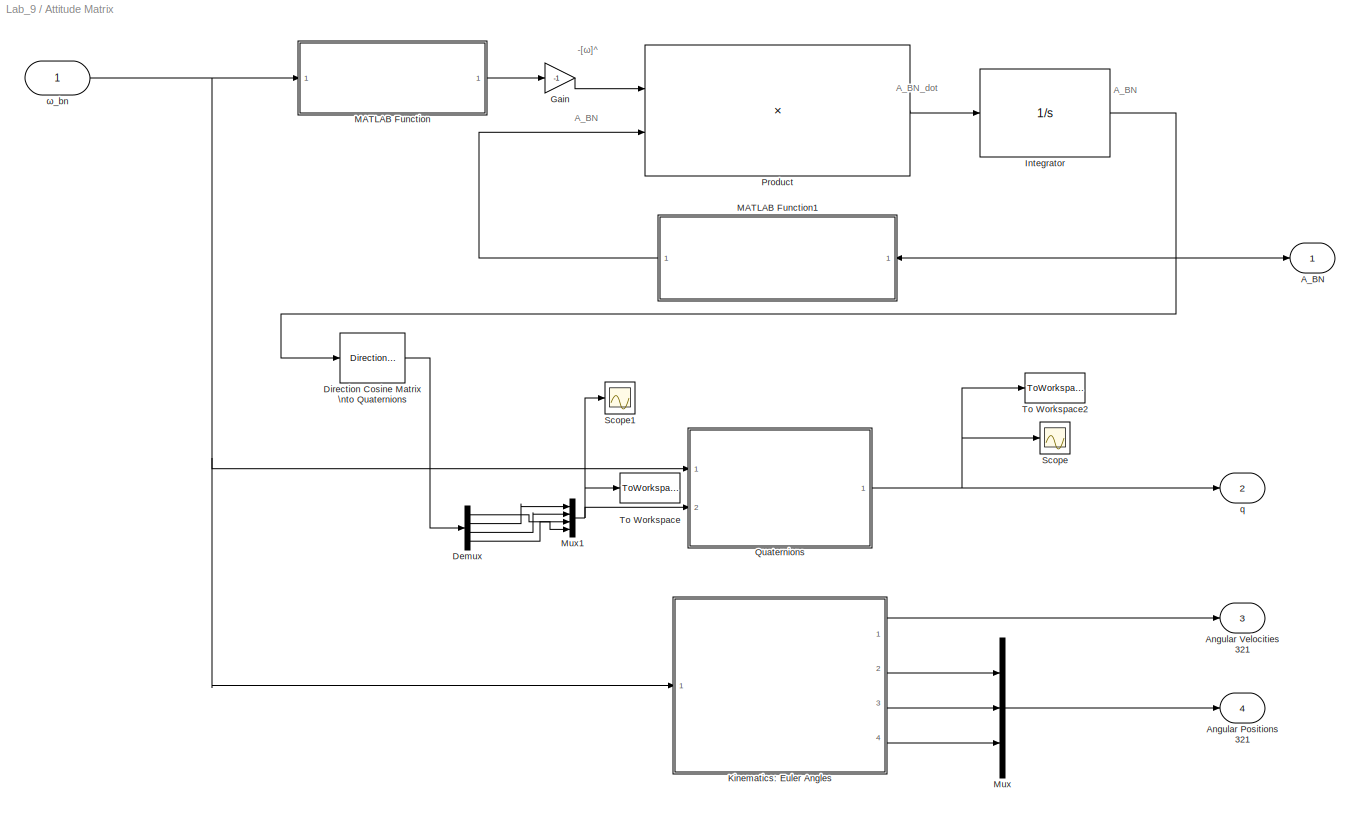
BLOCK [SubSystem] Attitude Matrix
  Ports = [1, 4]
  RequestExecContextInheritance = off
  SID = 1269
BLOCK [Outport] Attitude Matrix/A_BN
  IconDisplay = Port number
  SID = 1301
BLOCK [Outport] Attitude Matrix/Angular Positions 321
  IconDisplay = Port number
  Port = 4
  SID = 1304
BLOCK [Outport] Attitude Matrix/Angular Velocities 321
  IconDisplay = Port number
  Port = 3
  SID = 1303
BLOCK [Demux] Attitude Matrix/Demux
  DisplayOption = bar
  Ports = [1, 4]
  SID = 1271
BLOCK [Reference] Attitude Matrix/Direction Cosine Matrix \nto Quaternions  REF=sharedtransform/Direction Cosine Matrix \nto Quaternions
  Ports = [1, 1]
  SID = 1272
  SourceBlock = sharedtransform/Direction Cosine Matrix \nto Quaternions
  SourceProductBaseCode = AE
  SourceProductName = Aerospace Blockset
  SourceType = DCM2Quaternion
  aMode = 0
  action = None
  tolerance = eps(2)
BLOCK [Gain] Attitude Matrix/Gain
  Gain = -1
  OutDataTypeStr = Inherit: Inherit via internal rule
  ParamDataTypeStr = Inherit: Inherit via internal rule
  SID = 1273
  SaturateOnIntegerOverflow = off
BLOCK [Integrator] Attitude Matrix/Integrator
  InitialCondition = A_BN_0
  Ports = [1, 1]
  SID = 1274
BLOCK [SubSystem] Attitude Matrix/Kinematics: Euler Angles
  Ports = [1, 4]
  RequestExecContextInheritance = off
  SID = 1275
BLOCK [Outport] Attitude Matrix/Kinematics: Euler Angles/Angular Velocities 321
  IconDisplay = Port number
  SID = 1282
BLOCK [Integrator] Attitude Matrix/Kinematics: Euler Angles/Integrator
  InitialCondition = phi_0
  Ports = [1, 1]
  SID = 1277
BLOCK [Integrator] Attitude Matrix/Kinematics: Euler Angles/Integrator1
  InitialCondition = theta_0
  Ports = [1, 1]
  SID = 1278
BLOCK [Integrator] Attitude Matrix/Kinematics: Euler Angles/Integrator2
  InitialCondition = psi_0
  Ports = [1, 1]
  SID = 1279
BLOCK [SubSystem] Attitude Matrix/Kinematics: Euler Angles/MATLAB Function
  ErrorFcn = Stateflow.Translate.translate
  PermitHierarchicalResolution = ExplicitOnly
  Ports = [3, 3]
  RequestExecContextInheritance = off
  SFBlockType = MATLAB Function
  SID = 1280
  TreatAsAtomicUnit = on
BLOCK [Demux] Attitude Matrix/Kinematics: Euler Angles/MATLAB Function/ Demux 
  Outputs = 1
  Ports = [1, 1]
  SID = 1280::31
BLOCK [S-Function] Attitude Matrix/Kinematics: Euler Angles/MATLAB Function/ SFunction 
  EnableBusSupport = on
  FunctionName = sf_sfun
  PortCounts = [3 4]
  Ports = [3, 4]
  SFcnIsStateOwnerBlock = off
  SFunctionDeploymentMode = off
  SID = 1280::30
  Tag = Stateflow S-Function Lab_9 1
BLOCK [Terminator] Attitude Matrix/Kinematics: Euler Angles/MATLAB Function/ Terminator 
  SID = 1280::32
BLOCK [Outport] Attitude Matrix/Kinematics: Euler Angles/MATLAB Function/phi_dot
  IconDisplay = Port number
  SID = 1280::25
BLOCK [Inport] Attitude Matrix/Kinematics: Euler Angles/MATLAB Function/psi
  IconDisplay = Port number
  Port = 3
  SID = 1280::29
BLOCK [Outport] Attitude Matrix/Kinematics: Euler Angles/MATLAB Function/psi_dot
  IconDisplay = Port number
  Port = 3
  SID = 1280::27
BLOCK [Inport] Attitude Matrix/Kinematics: Euler Angles/MATLAB Function/tetha
  IconDisplay = Port number
  Port = 2
  SID = 1280::28
BLOCK [Outport] Attitude Matrix/Kinematics: Euler Angles/MATLAB Function/tetha_dot
  IconDisplay = Port number
  Port = 2
  SID = 1280::26
BLOCK [Inport] Attitude Matrix/Kinematics: Euler Angles/MATLAB Function/w
  IconDisplay = Port number
  SID = 1280::1
BLOCK [Mux] Attitude Matrix/Kinematics: Euler Angles/Mux
  DisplayOption = bar
  Inputs = 3
  Ports = [3, 1]
  SID = 1281
BLOCK [Outport] Attitude Matrix/Kinematics: Euler Angles/phi
  IconDisplay = Port number
  Port = 2
  SID = 1283
BLOCK [Outport] Attitude Matrix/Kinematics: Euler Angles/psi
  IconDisplay = Port number
  Port = 4
  SID = 1285
BLOCK [Outport] Attitude Matrix/Kinematics: Euler Angles/theta
  IconDisplay = Port number
  Port = 3
  SID = 1284
BLOCK [Inport] Attitude Matrix/Kinematics: Euler Angles/ω_bn
  IconDisplay = Port number
  SID = 1276
BLOCK [SubSystem] Attitude Matrix/MATLAB Function
  ErrorFcn = Stateflow.Translate.translate
  PermitHierarchicalResolution = ExplicitOnly
  Ports = [1, 1]
  RequestExecContextInheritance = off
  SFBlockType = MATLAB Function
  SID = 1286
  TreatAsAtomicUnit = on
BLOCK [Demux] Attitude Matrix/MATLAB Function/ Demux 
  Outputs = 1
  Ports = [1, 1]
  SID = 1286::20
BLOCK [S-Function] Attitude Matrix/MATLAB Function/ SFunction 
  EnableBusSupport = on
  FunctionName = sf_sfun
  PortCounts = [1 2]
  Ports = [1, 2]
  SFcnIsStateOwnerBlock = off
  SFunctionDeploymentMode = off
  SID = 1286::19
  Tag = Stateflow S-Function Lab_9 2
BLOCK [Terminator] Attitude Matrix/MATLAB Function/ Terminator 
  SID = 1286::21
BLOCK [Inport] Attitude Matrix/MATLAB Function/w
  IconDisplay = Port number
  SID = 1286::1
BLOCK [Outport] Attitude Matrix/MATLAB Function/w_cross
  IconDisplay = Port number
  SID = 1286::5
BLOCK [SubSystem] Attitude Matrix/MATLAB Function1
  ErrorFcn = Stateflow.Translate.translate
  PermitHierarchicalResolution = ExplicitOnly
  Ports = [1, 1]
  RequestExecContextInheritance = off
  SFBlockType = MATLAB Function
  SID = 1287
  TreatAsAtomicUnit = on
BLOCK [Demux] Attitude Matrix/MATLAB Function1/ Demux 
  Outputs = 1
  Ports = [1, 1]
  SID = 1287::23
BLOCK [S-Function] Attitude Matrix/MATLAB Function1/ SFunction 
  EnableBusSupport = on
  FunctionName = sf_sfun
  PortCounts = [1 2]
  Ports = [1, 2]
  SFcnIsStateOwnerBlock = off
  SFunctionDeploymentMode = off
  SID = 1287::22
  Tag = Stateflow S-Function Lab_9 3
BLOCK [Terminator] Attitude Matrix/MATLAB Function1/ Terminator 
  SID = 1287::24
BLOCK [Inport] Attitude Matrix/MATLAB Function1/u
  IconDisplay = Port number
  SID = 1287::1
BLOCK [Outport] Attitude Matrix/MATLAB Function1/y
  IconDisplay = Port number
  SID = 1287::5
BLOCK [Mux] Attitude Matrix/Mux
  DisplayOption = bar
  Inputs = 3
  Ports = [3, 1]
  SID = 1288
BLOCK [Mux] Attitude Matrix/Mux1
  DisplayOption = bar
  Ports = [4, 1]
  SID = 1289
BLOCK [Product] Attitude Matrix/Product
  InputSameDT = off
  Multiplication = Matrix(*)
  OutDataTypeStr = Inherit: Inherit via internal rule
  Ports = [2, 1]
  RndMeth = Floor
  SID = 1290
  SaturateOnIntegerOverflow = off
BLOCK [SubSystem] Attitude Matrix/Quaternions
  Ports = [2, 1]
  RequestExecContextInheritance = off
  SID = 1291
BLOCK [Integrator] Attitude Matrix/Quaternions/Integrator2
  InitialCondition = q_0
  InitialConditionSource = external
  Ports = [2, 1]
  SID = 1294
BLOCK [SubSystem] Attitude Matrix/Quaternions/Quaternion Kinematics
  ErrorFcn = Stateflow.Translate.translate
  PermitHierarchicalResolution = ExplicitOnly
  Ports = [2, 1]
  RequestExecContextInheritance = off
  SFBlockType = MATLAB Function
  SID = 1295
  TreatAsAtomicUnit = on
BLOCK [Demux] Attitude Matrix/Quaternions/Quaternion Kinematics/ Demux 
  Outputs = 1
  Ports = [1, 1]
  SID = 1295::29
BLOCK [S-Function] Attitude Matrix/Quaternions/Quaternion Kinematics/ SFunction 
  EnableBusSupport = on
  FunctionName = sf_sfun
  PortCounts = [2 2]
  Ports = [2, 2]
  SFcnIsStateOwnerBlock = off
  SFunctionDeploymentMode = off
  SID = 1295::28
  Tag = Stateflow S-Function Lab_9 4
BLOCK [Terminator] Attitude Matrix/Quaternions/Quaternion Kinematics/ Terminator 
  SID = 1295::30
BLOCK [Inport] Attitude Matrix/Quaternions/Quaternion Kinematics/omega
  IconDisplay = Port number
  Port = 2
  SID = 1295::18
BLOCK [Inport] Attitude Matrix/Quaternions/Quaternion Kinematics/q
  IconDisplay = Port number
  SID = 1295::1
BLOCK [Outport] Attitude Matrix/Quaternions/Quaternion Kinematics/q_dot
  IconDisplay = Port number
  SID = 1295::5
BLOCK [Inport] Attitude Matrix/Quaternions/q_0\n
  IconDisplay = Port number
  Port = 2
  SID = 1293
BLOCK [Outport] Attitude Matrix/Quaternions/quaternions
  IconDisplay = Port number
  SID = 1296
BLOCK [Inport] Attitude Matrix/Quaternions/ω_bn
  IconDisplay = Port number
  SID = 1292
BLOCK [Scope] Attitude Matrix/Scope
  Floating = off
  NumInputPorts = 1
  Ports = [1]
  SID = 1297
  ScopeSpecificationString = Simulink.scopes.TimeScopeBlockCfg('CurrentConfiguration', extmgr.ConfigurationSet(extmgr.Configuration('Core','General UI',true),extmgr.Configuration('Core','Source UI',true),extmgr.Configuration('Sources','WiredSimulink',true,'DataLoggingVariableName','ScopeData1'),extmgr.Configuration('Visuals','Time Domain',true,'SerializedDisplays',{struct('MinYLimReal','-0.80506','MaxYLimReal','1.2006','YLabe...<+1445ch>
BLOCK [Scope] Attitude Matrix/Scope1
  Floating = off
  NumInputPorts = 1
  Ports = [1]
  SID = 1298
  ScopeSpecificationString = Simulink.scopes.TimeScopeBlockCfg('CurrentConfiguration', extmgr.ConfigurationSet(extmgr.Configuration('Core','General UI',true),extmgr.Configuration('Core','Source UI',true),extmgr.Configuration('Sources','WiredSimulink',true,'DataLoggingVariableName','ScopeData2'),extmgr.Configuration('Visuals','Time Domain',true,'SerializedDisplays',{struct('MinYLimReal','-1.09716','MaxYLimReal','1.23302','YLab...<+1425ch>
BLOCK [ToWorkspace] Attitude Matrix/To Workspace
  FixptAsFi = on
  MaxDataPoints = inf
  Ports = [1]
  SID = 1299
  SampleTime = -1
  Save2DSignal = 3-D array (concatenate along third dimension)
  VariableName = q_from_ABN
BLOCK [ToWorkspace] Attitude Matrix/To Workspace2
  FixptAsFi = on
  MaxDataPoints = inf
  Ports = [1]
  SID = 1300
  SampleTime = -1
  Save2DSignal = 3-D array (concatenate along third dimension)
  VariableName = q
BLOCK [Outport] Attitude Matrix/q
  IconDisplay = Port number
  Port = 2
  SID = 1302
BLOCK [Inport] Attitude Matrix/ω_bn
  IconDisplay = Port number
  PortDimensions = 3
  SID = 1270
  Unit = rad/s
BLOCK [Scope] Control Torque
  Floating = off
  NumInputPorts = 1
  Ports = [1]
  SID = 1468
  ScopeSpecificationString = Simulink.scopes.TimeScopeBlockCfg('CurrentConfiguration', extmgr.ConfigurationSet(extmgr.Configuration('Core','General UI',true),extmgr.Configuration('Core','Source UI',true),extmgr.Configuration('Sources','WiredSimulink',true,'DataLoggingVariableName','ScopeData7'),extmgr.Configuration('Visuals','Time Domain',true,'SerializedDisplays',{struct('MinYLimReal','-0.00116','MaxYLimReal','0.00109','YLab...<+1446ch>
BLOCK [Scope] Disturbance Torque
  Floating = off
  NumInputPorts = 1
  Ports = [1]
  SID = 1469
  ScopeSpecificationString = Simulink.scopes.TimeScopeBlockCfg('CurrentConfiguration', extmgr.ConfigurationSet(extmgr.Configuration('Core','General UI',true),extmgr.Configuration('Core','Source UI',true),extmgr.Configuration('Sources','WiredSimulink',true,'DataLoggingVariableName','ScopeData1'),extmgr.Configuration('Visuals','Time Domain',true,'SerializedDisplays',{struct('MinYLimReal','-0.000044','MaxYLimReal','0.000045','YL...<+1463ch>
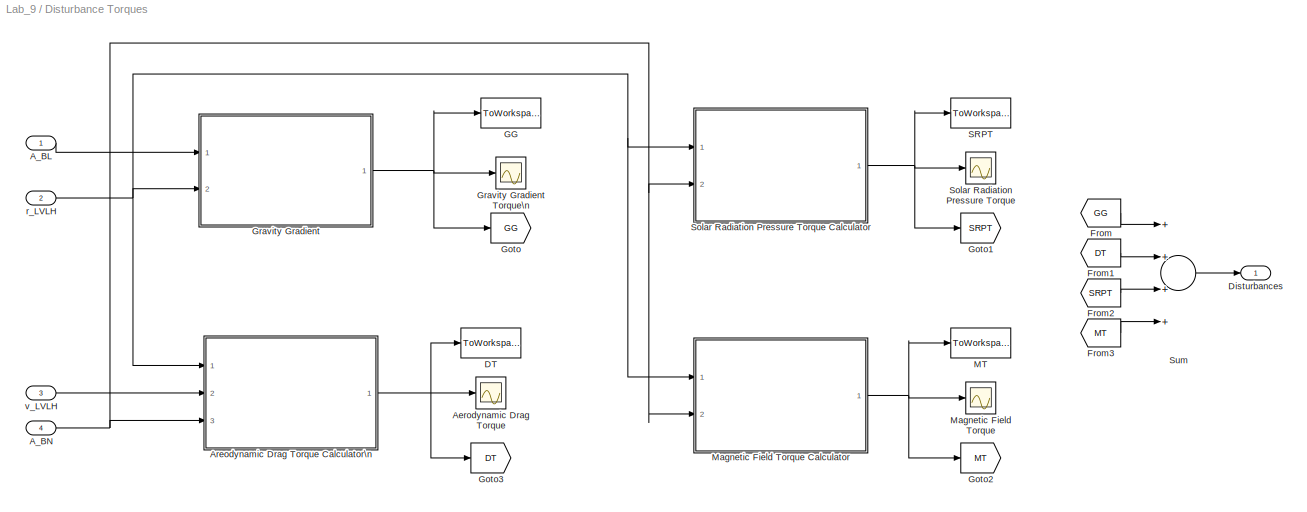
BLOCK [SubSystem] Disturbance Torques
  Ports = [4, 1]
  RequestExecContextInheritance = off
  SID = 1309
BLOCK [Inport] Disturbance Torques/A_BL
  IconDisplay = Port number
  SID = 1310
BLOCK [Inport] Disturbance Torques/A_BN
  IconDisplay = Port number
  Port = 4
  SID = 1313
BLOCK [Scope] Disturbance Torques/Aerodynamic Drag Torque
  Floating = off
  NumInputPorts = 1
  Ports = [1]
  SID = 1314
  ScopeSpecificationString = Simulink.scopes.TimeScopeBlockCfg('CurrentConfiguration', extmgr.ConfigurationSet(extmgr.Configuration('Core','General UI',true),extmgr.Configuration('Core','Source UI',true),extmgr.Configuration('Sources','WiredSimulink',true,'DataLoggingVariableName','ScopeData2'),extmgr.Configuration('Visuals','Time Domain',true,'SerializedDisplays',{struct('MinYLimReal','-0.000000024','MaxYLimReal','0.00000002...<+1554ch>
BLOCK [SubSystem] Disturbance Torques/Areodynamic Drag Torque Calculator\n
  Ports = [3, 1]
  RequestExecContextInheritance = off
  SID = 1315
BLOCK [Inport] Disturbance Torques/Areodynamic Drag Torque Calculator\n/A_BN
  IconDisplay = Port number
  Port = 3
  SID = 1318
BLOCK [Constant] Disturbance Torques/Areodynamic Drag Torque Calculator\n/Constant
  SID = 1319
  Value = A_i
BLOCK [Constant] Disturbance Torques/Areodynamic Drag Torque Calculator\n/Constant1
  SID = 1320
  Value = dim
BLOCK [Constant] Disturbance Torques/Areodynamic Drag Torque Calculator\n/Constant2
  SID = 1321
  Value = R_e
BLOCK [Constant] Disturbance Torques/Areodynamic Drag Torque Calculator\n/Constant3
  SID = 1322
  Value = C_d
BLOCK [SubSystem] Disturbance Torques/Areodynamic Drag Torque Calculator\n/MATLAB Function
  ErrorFcn = Stateflow.Translate.translate
  PermitHierarchicalResolution = ExplicitOnly
  Ports = [6, 1]
  RequestExecContextInheritance = off
  SFBlockType = MATLAB Function
  SID = 1323
  TreatAsAtomicUnit = on
BLOCK [Demux] Disturbance Torques/Areodynamic Drag Torque Calculator\n/MATLAB Function/ Demux 
  Outputs = 1
  Ports = [1, 1]
  SID = 1323::30
BLOCK [S-Function] Disturbance Torques/Areodynamic Drag Torque Calculator\n/MATLAB Function/ SFunction 
  EnableBusSupport = on
  FunctionName = sf_sfun
  PortCounts = [6 2]
  Ports = [6, 2]
  SFcnIsStateOwnerBlock = off
  SFunctionDeploymentMode = off
  SID = 1323::29
  Tag = Stateflow S-Function Lab_9 5
BLOCK [Terminator] Disturbance Torques/Areodynamic Drag Torque Calculator\n/MATLAB Function/ Terminator 
  SID = 1323::31
BLOCK [Inport] Disturbance Torques/Areodynamic Drag Torque Calculator\n/MATLAB Function/A_i
  IconDisplay = Port number
  Port = 3
  SID = 1323::22
BLOCK [Inport] Disturbance Torques/Areodynamic Drag Torque Calculator\n/MATLAB Function/C_d
  IconDisplay = Port number
  Port = 6
  SID = 1323::26
BLOCK [Inport] Disturbance Torques/Areodynamic Drag Torque Calculator\n/MATLAB Function/dim
  IconDisplay = Port number
  Port = 4
  SID = 1323::23
BLOCK [Outport] Disturbance Torques/Areodynamic Drag Torque Calculator\n/MATLAB Function/drag_torque
  IconDisplay = Port number
  SID = 1323::5
BLOCK [Inport] Disturbance Torques/Areodynamic Drag Torque Calculator\n/MATLAB Function/rho
  IconDisplay = Port number
  Port = 5
  SID = 1323::25
BLOCK [Inport] Disturbance Torques/Areodynamic Drag Torque Calculator\n/MATLAB Function/vw_rel
  IconDisplay = Port number
  Port = 2
  SID = 1323::32
BLOCK [Inport] Disturbance Torques/Areodynamic Drag Torque Calculator\n/MATLAB Function/vw_rel_body
  IconDisplay = Port number
  SID = 1323::1
BLOCK [SubSystem] Disturbance Torques/Areodynamic Drag Torque Calculator\n/MATLAB Function1
  ErrorFcn = Stateflow.Translate.translate
  PermitHierarchicalResolution = ExplicitOnly
  Ports = [2, 1]
  RequestExecContextInheritance = off
  SFBlockType = MATLAB Function
  SID = 1324
  TreatAsAtomicUnit = on
BLOCK [Demux] Disturbance Torques/Areodynamic Drag Torque Calculator\n/MATLAB Function1/ Demux 
  Outputs = 1
  Ports = [1, 1]
  SID = 1324::25
BLOCK [S-Function] Disturbance Torques/Areodynamic Drag Torque Calculator\n/MATLAB Function1/ SFunction 
  EnableBusSupport = on
  FunctionName = sf_sfun
  PortCounts = [2 2]
  Ports = [2, 2]
  SFcnIsStateOwnerBlock = off
  SFunctionDeploymentMode = off
  SID = 1324::24
  Tag = Stateflow S-Function Lab_9 7
BLOCK [Terminator] Disturbance Torques/Areodynamic Drag Torque Calculator\n/MATLAB Function1/ Terminator 
  SID = 1324::26
BLOCK [Inport] Disturbance Torques/Areodynamic Drag Torque Calculator\n/MATLAB Function1/R_e
  IconDisplay = Port number
  Port = 2
  SID = 1324::22
BLOCK [Inport] Disturbance Torques/Areodynamic Drag Torque Calculator\n/MATLAB Function1/r_LVLH
  IconDisplay = Port number
  SID = 1324::1
BLOCK [Outport] Disturbance Torques/Areodynamic Drag Torque Calculator\n/MATLAB Function1/rho
  IconDisplay = Port number
  SID = 1324::5
BLOCK [Outport] Disturbance Torques/Areodynamic Drag Torque Calculator\n/drag torque\n
  IconDisplay = Port number
  SID = 1336
BLOCK [Inport] Disturbance Torques/Areodynamic Drag Torque Calculator\n/r_LVLH
  IconDisplay = Port number
  SID = 1316
BLOCK [SubSystem] Disturbance Torques/Areodynamic Drag Torque Calculator\n/vRelBody
  Ports = [3, 2]
  RequestExecContextInheritance = off
  SID = 1325
BLOCK [Inport] Disturbance Torques/Areodynamic Drag Torque Calculator\n/vRelBody/A_BN
  IconDisplay = Port number
  Port = 3
  SID = 1328
BLOCK [Sum] Disturbance Torques/Areodynamic Drag Torque Calculator\n/vRelBody/Add
  InputSameDT = off
  OutDataTypeStr = Inherit: Inherit via internal rule
  Ports = [2, 1]
  SID = 1329
  SaturateOnIntegerOverflow = off
BLOCK [Constant] Disturbance Torques/Areodynamic Drag Torque Calculator\n/vRelBody/Constant
  SID = 1330
  Value = w_e
BLOCK [Reference] Disturbance Torques/Areodynamic Drag Torque Calculator\n/vRelBody/Cross Product  REF=vrlib/Utilities/Cross Product
  Ports = [2, 1]
  SID = 1331
  SourceBlock = vrlib/Utilities/Cross Product
  SourceProductBaseCode = VR
  SourceProductName = Simulink 3D Animation
  SourceType = Cross Product
BLOCK [Product] Disturbance Torques/Areodynamic Drag Torque Calculator\n/vRelBody/Product
  InputSameDT = off
  Multiplication = Matrix(*)
  OutDataTypeStr = Inherit: Inherit via internal rule
  Ports = [2, 1]
  RndMeth = Floor
  SID = 1332
  SaturateOnIntegerOverflow = off
BLOCK [Inport] Disturbance Torques/Areodynamic Drag Torque Calculator\n/vRelBody/r_LVLH
  IconDisplay = Port number
  SID = 1326
BLOCK [Inport] Disturbance Torques/Areodynamic Drag Torque Calculator\n/vRelBody/v_LVLH
  IconDisplay = Port number
  Port = 2
  SID = 1327
BLOCK [Outport] Disturbance Torques/Areodynamic Drag Torque Calculator\n/vRelBody/vw_rel
  IconDisplay = Port number
  Port = 2
  SID = 1335
BLOCK [Outport] Disturbance Torques/Areodynamic Drag Torque Calculator\n/vRelBody/vw_rel_body
  IconDisplay = Port number
  SID = 1334
BLOCK [Inport] Disturbance Torques/Areodynamic Drag Torque Calculator\n/v_LVLH
  IconDisplay = Port number
  Port = 2
  SID = 1317
BLOCK [ToWorkspace] Disturbance Torques/DT
  FixptAsFi = on
  MaxDataPoints = inf
  Ports = [1]
  SID = 1337
  SampleTime = -1
  Save2DSignal = 3-D array (concatenate along third dimension)
  VariableName = drag_torque
BLOCK [Outport] Disturbance Torques/Disturbances
  IconDisplay = Port number
  SID = 1446
BLOCK [From] Disturbance Torques/From
  GotoTag = GG
  SID = 1338
BLOCK [From] Disturbance Torques/From1
  GotoTag = DT
  SID = 1339
BLOCK [From] Disturbance Torques/From2
  GotoTag = SRPT
  SID = 1340
BLOCK [From] Disturbance Torques/From3
  GotoTag = MT
  SID = 1341
BLOCK [ToWorkspace] Disturbance Torques/GG
  FixptAsFi = on
  MaxDataPoints = inf
  Ports = [1]
  SID = 1342
  SampleTime = -1
  Save2DSignal = 3-D array (concatenate along third dimension)
  VariableName = GG
BLOCK [Goto] Disturbance Torques/Goto
  GotoTag = GG
  SID = 1343
BLOCK [Goto] Disturbance Torques/Goto1
  GotoTag = SRPT
  SID = 1344
BLOCK [Goto] Disturbance Torques/Goto2
  GotoTag = MT
  SID = 1345
BLOCK [Goto] Disturbance Torques/Goto3
  GotoTag = DT
  SID = 1346
BLOCK [SubSystem] Disturbance Torques/Gravity Gradient
  Ports = [2, 1]
  RequestExecContextInheritance = off
  SID = 1347
BLOCK [Scope] Disturbance Torques/Gravity Gradient Torque\n
  Floating = off
  NumInputPorts = 1
  Ports = [1]
  SID = 1365
  ScopeSpecificationString = Simulink.scopes.TimeScopeBlockCfg('CurrentConfiguration', extmgr.ConfigurationSet(extmgr.Configuration('Core','General UI',true),extmgr.Configuration('Core','Source UI',true),extmgr.Configuration('Sources','WiredSimulink',true,'DataLoggingVariableName','ScopeData1'),extmgr.Configuration('Visuals','Time Domain',true,'SerializedDisplays',{struct('MinYLimReal','-0.00000019','MaxYLimReal','0.00000021'...<+1472ch>
BLOCK [Reference] Disturbance Torques/Gravity Gradient/3x3 Cross Product1  REF=sharedutil/3x3 Cross Product
  Ports = [2, 1]
  SID = 1350
  SourceBlock = sharedutil/3x3 Cross Product
  SourceProductBaseCode = AE
  SourceProductName = Aerospace Blockset
  SourceType = CrossProduct
  aMode = aMode
BLOCK [Inport] Disturbance Torques/Gravity Gradient/A_BL
  IconDisplay = Port number
  SID = 1348
BLOCK [Constant] Disturbance Torques/Gravity Gradient/Constant2
  SID = 1351
  Value = mu
BLOCK [Product] Disturbance Torques/Gravity Gradient/Divide
  InputSameDT = off
  Inputs = */
  OutDataTypeStr = Inherit: Inherit via internal rule
  Ports = [2, 1]
  RndMeth = Floor
  SID = 1352
  SaturateOnIntegerOverflow = off
BLOCK [Gain] Disturbance Torques/Gravity Gradient/Gain
  Gain = I
  Multiplication = Matrix(K*u)
  OutDataTypeStr = Inherit: Inherit via internal rule
  ParamDataTypeStr = Inherit: Inherit via internal rule
  SID = 1353
  SaturateOnIntegerOverflow = off
BLOCK [Gain] Disturbance Torques/Gravity Gradient/Gain1
  Gain = 3
  OutDataTypeStr = Inherit: Inherit via internal rule
  ParamDataTypeStr = Inherit: Inherit via internal rule
  SID = 1354
  SaturateOnIntegerOverflow = off
BLOCK [Gain] Disturbance Torques/Gravity Gradient/Gain2
  Gain = nadir_vector
  Multiplication = Matrix(u*K)
  OutDataTypeStr = Inherit: Inherit via internal rule
  ParamDataTypeStr = Inherit: Inherit via internal rule
  SID = 1355
  SaturateOnIntegerOverflow = off
BLOCK [Outport] Disturbance Torques/Gravity Gradient/Gravity Gradient
  IconDisplay = Port number
  SID = 1359
BLOCK [SubSystem] Disturbance Torques/Gravity Gradient/MATLAB Function
  ErrorFcn = Stateflow.Translate.translate
  PermitHierarchicalResolution = ExplicitOnly
  Ports = [1, 1]
  RequestExecContextInheritance = off
  SFBlockType = MATLAB Function
  SID = 1356
  TreatAsAtomicUnit = on
BLOCK [Demux] Disturbance Torques/Gravity Gradient/MATLAB Function/ Demux 
  Outputs = 1
  Ports = [1, 1]
  SID = 1356::23
BLOCK [S-Function] Disturbance Torques/Gravity Gradient/MATLAB Function/ SFunction 
  EnableBusSupport = on
  FunctionName = sf_sfun
  PortCounts = [1 2]
  Ports = [1, 2]
  SFcnIsStateOwnerBlock = off
  SFunctionDeploymentMode = off
  SID = 1356::22
  Tag = Stateflow S-Function Lab_9 19
BLOCK [Terminator] Disturbance Torques/Gravity Gradient/MATLAB Function/ Terminator 
  SID = 1356::24
BLOCK [Inport] Disturbance Torques/Gravity Gradient/MATLAB Function/u
  IconDisplay = Port number
  SID = 1356::1
BLOCK [Outport] Disturbance Torques/Gravity Gradient/MATLAB Function/y
  IconDisplay = Port number
  SID = 1356::5
BLOCK [Product] Disturbance Torques/Gravity Gradient/Product
  InputSameDT = off
  Multiplication = Matrix(*)
  OutDataTypeStr = Inherit: Inherit via internal rule
  Ports = [2, 1]
  RndMeth = Floor
  SID = 1357
  SaturateOnIntegerOverflow = off
BLOCK [Inport] Disturbance Torques/Gravity Gradient/r_LVLH
  IconDisplay = Port number
  Port = 2
  SID = 1349
BLOCK [ToWorkspace] Disturbance Torques/MT
  FixptAsFi = on
  MaxDataPoints = inf
  Ports = [1]
  SID = 1366
  SampleTime = -1
  Save2DSignal = 3-D array (concatenate along third dimension)
  VariableName = magnetic_torque
BLOCK [Scope] Disturbance Torques/Magnetic Field Torque
  Floating = off
  NumInputPorts = 1
  Ports = [1]
  SID = 1367
  ScopeSpecificationString = Simulink.scopes.TimeScopeBlockCfg('CurrentConfiguration', extmgr.ConfigurationSet(extmgr.Configuration('Core','General UI',true),extmgr.Configuration('Core','Source UI',true),extmgr.Configuration('Sources','WiredSimulink',true,'DataLoggingVariableName','ScopeData1'),extmgr.Configuration('Visuals','Time Domain',true,'SerializedDisplays',{struct('MinYLimReal','-0.000034','MaxYLimReal','0.000043','YL...<+1523ch>
BLOCK [SubSystem] Disturbance Torques/Magnetic Field Torque Calculator
  Ports = [2, 1]
  RequestExecContextInheritance = off
  SID = 1368
BLOCK [SubSystem] Disturbance Torques/Magnetic Field Torque Calculator/ Magnetic Orientation
  Ports = [0, 1]
  RequestExecContextInheritance = off
  SID = 1371
BLOCK [Constant] Disturbance Torques/Magnetic Field Torque Calculator/ Magnetic Orientation/Constant
  SID = 1372
  Value = sin(alpha_m)
BLOCK [Constant] Disturbance Torques/Magnetic Field Torque Calculator/ Magnetic Orientation/Constant1
  SID = 1373
  Value = cos(alpha_m)
BLOCK [Sin] Disturbance Torques/Magnetic Field Torque Calculator/ Magnetic Orientation/Cosine Wave
  Frequency = w_e(3)
  Phase = pi/2
  Ports = [0, 1]
  SID = 1374
  SampleTime = 0
BLOCK [Product] Disturbance Torques/Magnetic Field Torque Calculator/ Magnetic Orientation/Product
  InputSameDT = off
  OutDataTypeStr = Inherit: Inherit via internal rule
  Ports = [2, 1]
  RndMeth = Floor
  SID = 1375
  SaturateOnIntegerOverflow = off
BLOCK [Product] Disturbance Torques/Magnetic Field Torque Calculator/ Magnetic Orientation/Product1
  InputSameDT = off
  OutDataTypeStr = Inherit: Inherit via internal rule
  Ports = [2, 1]
  RndMeth = Floor
  SID = 1376
  SaturateOnIntegerOverflow = off
BLOCK [Sin] Disturbance Torques/Magnetic Field Torque Calculator/ Magnetic Orientation/Sine Wave
  Frequency = w_e(3)
  Ports = [0, 1]
  SID = 1377
  SampleTime = 0
BLOCK [Concatenate] Disturbance Torques/Magnetic Field Torque Calculator/ Magnetic Orientation/Vector\nConcatenate
  NumInputs = 3
  Ports = [3, 1]
  SID = 1378
BLOCK [Outport] Disturbance Torques/Magnetic Field Torque Calculator/ Magnetic Orientation/m
  IconDisplay = Port number
  SID = 1379
BLOCK [Reference] Disturbance Torques/Magnetic Field Torque Calculator/3x3 Cross Product  REF=sharedutil/3x3 Cross Product
  Ports = [2, 1]
  SID = 1380
  SourceBlock = sharedutil/3x3 Cross Product
  SourceProductBaseCode = AE
  SourceProductName = Aerospace Blockset
  SourceType = CrossProduct
  aMode = aMode
BLOCK [Inport] Disturbance Torques/Magnetic Field Torque Calculator/A_BN
  IconDisplay = Port number
  Port = 2
  SID = 1370
BLOCK [SubSystem] Disturbance Torques/Magnetic Field Torque Calculator/Complete Model
  Ports = [2, 1]
  RequestExecContextInheritance = off
  SID = 1381
BLOCK [Inport] Disturbance Torques/Magnetic Field Torque Calculator/Complete Model/A_BN
  IconDisplay = Port number
  SID = 1382
BLOCK [Outport] Disturbance Torques/Magnetic Field Torque Calculator/Complete Model/B
  IconDisplay = Port number
  SID = 1421
BLOCK [Constant] Disturbance Torques/Magnetic Field Torque Calculator/Complete Model/Constant2
  SID = 1384
  Value = [gn, gm, gvali,  gsvi, hn,  hm,  hvali,  hsvi]
BLOCK [Goto] Disturbance Torques/Magnetic Field Torque Calculator/Complete Model/Goto1
  GotoTag = B_n
  SID = 1531
  TagVisibility = global
BLOCK [SubSystem] Disturbance Torques/Magnetic Field Torque Calculator/Complete Model/MATLAB Function
  ErrorFcn = Stateflow.Translate.translate
  PermitHierarchicalResolution = ExplicitOnly
  Ports = [7, 1]
  RequestExecContextInheritance = off
  SFBlockType = MATLAB Function
  SID = 1386
  TreatAsAtomicUnit = on
BLOCK [Demux] Disturbance Torques/Magnetic Field Torque Calculator/Complete Model/MATLAB Function/ Demux 
  Outputs = 1
  Ports = [1, 1]
  SID = 1386::20
BLOCK [S-Function] Disturbance Torques/Magnetic Field Torque Calculator/Complete Model/MATLAB Function/ SFunction 
  EnableBusSupport = on
  FunctionName = sf_sfun
  PortCounts = [7 2]
  Ports = [7, 2]
  SFcnIsStateOwnerBlock = off
  SFunctionDeploymentMode = off
  SID = 1386::19
  Tag = Stateflow S-Function Lab_9 18
BLOCK [Terminator] Disturbance Torques/Magnetic Field Torque Calculator/Complete Model/MATLAB Function/ Terminator 
  SID = 1386::21
BLOCK [Outport] Disturbance Torques/Magnetic Field Torque Calculator/Complete Model/MATLAB Function/B
  IconDisplay = Port number
  SID = 1386::5
BLOCK [Inport] Disturbance Torques/Magnetic Field Torque Calculator/Complete Model/MATLAB Function/IGRF_coefficients
  IconDisplay = Port number
  Port = 4
  SID = 1386::28
BLOCK [Inport] Disturbance Torques/Magnetic Field Torque Calculator/Complete Model/MATLAB Function/a
  IconDisplay = Port number
  Port = 7
  SID = 1386::31
BLOCK [Inport] Disturbance Torques/Magnetic Field Torque Calculator/Complete Model/MATLAB Function/days
  IconDisplay = Port number
  Port = 5
  SID = 1386::24
BLOCK [Inport] Disturbance Torques/Magnetic Field Torque Calculator/Complete Model/MATLAB Function/phi
  IconDisplay = Port number
  Port = 3
  SID = 1386::30
BLOCK [Inport] Disturbance Torques/Magnetic Field Torque Calculator/Complete Model/MATLAB Function/r
  IconDisplay = Port number
  SID = 1386::1
BLOCK [Inport] Disturbance Torques/Magnetic Field Torque Calculator/Complete Model/MATLAB Function/theta
  IconDisplay = Port number
  Port = 2
  SID = 1386::29
BLOCK [Inport] Disturbance Torques/Magnetic Field Torque Calculator/Complete Model/MATLAB Function/theta_LST
  IconDisplay = Port number
  Port = 6
  SID = 1386::32
BLOCK [Product] Disturbance Torques/Magnetic Field Torque Calculator/Complete Model/Product
  InputSameDT = off
  Multiplication = Matrix(*)
  OutDataTypeStr = Inherit: Inherit via internal rule
  Ports = [2, 1]
  RndMeth = Floor
  SID = 1387
  SaturateOnIntegerOverflow = off
BLOCK [SubSystem] Disturbance Torques/Magnetic Field Torque Calculator/Complete Model/Subsystem
  Ports = [1, 3]
  RequestExecContextInheritance = off
  SID = 1388
BLOCK [Clock] Disturbance Torques/Magnetic Field Torque Calculator/Complete Model/Subsystem/Clock
  DisplayTime = on
  SID = 1390
BLOCK [Reference] Disturbance Torques/Magnetic Field Torque Calculator/Complete Model/Subsystem/Julian Date Conversion  REF=aerolibconvert2/Julian Date Conversion
  Ports = [1, 1]
  SID = 1391
  SourceBlock = aerolibconvert2/Julian Date Conversion
  SourceProductBaseCode = AE
  SourceProductName = Aerospace Blockset
  SourceType = JulianDate
  day = 1
  deltaT = Sec
  errorflag = Error
  hour = 12
  min = 0
  modflag = off
  month = January
  sec = 0
  year = 2019
BLOCK [Inport] Disturbance Torques/Magnetic Field Torque Calculator/Complete Model/Subsystem/Longitude
  IconDisplay = Port number
  SID = 1389
BLOCK [SubSystem] Disturbance Torques/Magnetic Field Torque Calculator/Complete Model/Subsystem/MATLAB Function
  ErrorFcn = Stateflow.Translate.translate
  PermitHierarchicalResolution = ExplicitOnly
  Ports = [1, 2]
  RequestExecContextInheritance = off
  SFBlockType = MATLAB Function
  SID = 1392
  TreatAsAtomicUnit = on
BLOCK [Demux] Disturbance Torques/Magnetic Field Torque Calculator/Complete Model/Subsystem/MATLAB Function/ Demux 
  Outputs = 1
  Ports = [1, 1]
  SID = 1392::20
BLOCK [S-Function] Disturbance Torques/Magnetic Field Torque Calculator/Complete Model/Subsystem/MATLAB Function/ SFunction 
  EnableBusSupport = on
  FunctionName = sf_sfun
  PortCounts = [1 3]
  Ports = [1, 3]
  SFcnIsStateOwnerBlock = off
  SFunctionDeploymentMode = off
  SID = 1392::19
  Tag = Stateflow S-Function Lab_9 21
BLOCK [Terminator] Disturbance Torques/Magnetic Field Torque Calculator/Complete Model/Subsystem/MATLAB Function/ Terminator 
  SID = 1392::21
BLOCK [Outport] Disturbance Torques/Magnetic Field Torque Calculator/Complete Model/Subsystem/MATLAB Function/GMST
  IconDisplay = Port number
  SID = 1392::5
BLOCK [Inport] Disturbance Torques/Magnetic Field Torque Calculator/Complete Model/Subsystem/MATLAB Function/JD
  IconDisplay = Port number
  SID = 1392::1
BLOCK [Outport] Disturbance Torques/Magnetic Field Torque Calculator/Complete Model/Subsystem/MATLAB Function/theta_GMST
  IconDisplay = Port number
  Port = 2
  SID = 1392::22
BLOCK [SubSystem] Disturbance Torques/Magnetic Field Torque Calculator/Complete Model/Subsystem/MATLAB Function1
  ErrorFcn = Stateflow.Translate.translate
  PermitHierarchicalResolution = ExplicitOnly
  Ports = [3, 1]
  RequestExecContextInheritance = off
  SFBlockType = MATLAB Function
  SID = 1393
  TreatAsAtomicUnit = on
BLOCK [Demux] Disturbance Torques/Magnetic Field Torque Calculator/Complete Model/Subsystem/MATLAB Function1/ Demux 
  Outputs = 1
  Ports = [1, 1]
  SID = 1393::20
BLOCK [S-Function] Disturbance Torques/Magnetic Field Torque Calculator/Complete Model/Subsystem/MATLAB Function1/ SFunction 
  EnableBusSupport = on
  FunctionName = sf_sfun
  PortCounts = [3 2]
  Ports = [3, 2]
  SFcnIsStateOwnerBlock = off
  SFunctionDeploymentMode = off
  SID = 1393::19
  Tag = Stateflow S-Function Lab_9 22
BLOCK [Terminator] Disturbance Torques/Magnetic Field Torque Calculator/Complete Model/Subsystem/MATLAB Function1/ Terminator 
  SID = 1393::21
BLOCK [Inport] Disturbance Torques/Magnetic Field Torque Calculator/Complete Model/Subsystem/MATLAB Function1/date
  IconDisplay = Port number
  Port = 3
  SID = 1393::22
BLOCK [Inport] Disturbance Torques/Magnetic Field Torque Calculator/Complete Model/Subsystem/MATLAB Function1/lon
  IconDisplay = Port number
  Port = 2
  SID = 1393::23
BLOCK [Inport] Disturbance Torques/Magnetic Field Torque Calculator/Complete Model/Subsystem/MATLAB Function1/theta_GMST
  IconDisplay = Port number
  SID = 1393::1
BLOCK [Outport] Disturbance Torques/Magnetic Field Torque Calculator/Complete Model/Subsystem/MATLAB Function1/theta_LST
  IconDisplay = Port number
  SID = 1393::5
BLOCK [SubSystem] Disturbance Torques/Magnetic Field Torque Calculator/Complete Model/Subsystem/MATLAB Function2
  ErrorFcn = Stateflow.Translate.translate
  PermitHierarchicalResolution = ExplicitOnly
  Ports = [1, 1]
  RequestExecContextInheritance = off
  SFBlockType = MATLAB Function
  SID = 1394
  TreatAsAtomicUnit = on
BLOCK [Demux] Disturbance Torques/Magnetic Field Torque Calculator/Complete Model/Subsystem/MATLAB Function2/ Demux 
  Outputs = 1
  Ports = [1, 1]
  SID = 1394::20
BLOCK [S-Function] Disturbance Torques/Magnetic Field Torque Calculator/Complete Model/Subsystem/MATLAB Function2/ SFunction 
  EnableBusSupport = on
  FunctionName = sf_sfun
  PortCounts = [1 2]
  Ports = [1, 2]
  SFcnIsStateOwnerBlock = off
  SFunctionDeploymentMode = off
  SID = 1394::19
  Tag = Stateflow S-Function Lab_9 15
BLOCK [Terminator] Disturbance Torques/Magnetic Field Torque Calculator/Complete Model/Subsystem/MATLAB Function2/ Terminator 
  SID = 1394::21
BLOCK [Outport] Disturbance Torques/Magnetic Field Torque Calculator/Complete Model/Subsystem/MATLAB Function2/date
  IconDisplay = Port number
  SID = 1394::5
BLOCK [Inport] Disturbance Torques/Magnetic Field Torque Calculator/Complete Model/Subsystem/MATLAB Function2/jd
  IconDisplay = Port number
  SID = 1394::1
BLOCK [Outport] Disturbance Torques/Magnetic Field Torque Calculator/Complete Model/Subsystem/MJD2000
  IconDisplay = Port number
  SID = 1404
BLOCK [SubSystem] Disturbance Torques/Magnetic Field Torque Calculator/Complete Model/Subsystem/Subsystem
  Ports = [1, 1]
  RequestExecContextInheritance = off
  SID = 1397
BLOCK [Constant] Disturbance Torques/Magnetic Field Torque Calculator/Complete Model/Subsystem/Subsystem/Constant1
  SID = 1399
  Value = 2400000.5
BLOCK [Constant] Disturbance Torques/Magnetic Field Torque Calculator/Complete Model/Subsystem/Subsystem/Constant3
  SID = 1400
  Value = 51544.5
BLOCK [Inport] Disturbance Torques/Magnetic Field Torque Calculator/Complete Model/Subsystem/Subsystem/JD
  IconDisplay = Port number
  SID = 1398
BLOCK [Outport] Disturbance Torques/Magnetic Field Torque Calculator/Complete Model/Subsystem/Subsystem/MJD2000
  IconDisplay = Port number
  SID = 1402
BLOCK [Sum] Disturbance Torques/Magnetic Field Torque Calculator/Complete Model/Subsystem/Subsystem/Sum
  IconShape = round
  InputSameDT = off
  Inputs = +--
  OutDataTypeStr = Inherit: Inherit via internal rule
  Ports = [3, 1]
  SID = 1401
  SaturateOnIntegerOverflow = off
BLOCK [Terminator] Disturbance Torques/Magnetic Field Torque Calculator/Complete Model/Subsystem/Terminator
  SID = 1403
BLOCK [Outport] Disturbance Torques/Magnetic Field Torque Calculator/Complete Model/Subsystem/theta_GMST
  IconDisplay = Port number
  Port = 3
  SID = 1406
BLOCK [Outport] Disturbance Torques/Magnetic Field Torque Calculator/Complete Model/Subsystem/theta_LST
  IconDisplay = Port number
  Port = 2
  SID = 1405
BLOCK [SubSystem] Disturbance Torques/Magnetic Field Torque Calculator/Complete Model/Subsystem1
  Ports = [0, 1]
  RequestExecContextInheritance = off
  SID = 1407
BLOCK [Constant] Disturbance Torques/Magnetic Field Torque Calculator/Complete Model/Subsystem1/Constant
  SID = 1408
  Value = a_m
BLOCK [Product] Disturbance Torques/Magnetic Field Torque Calculator/Complete Model/Subsystem1/Product4
  InputSameDT = off
  OutDataTypeStr = Inherit: Inherit via internal rule
  Ports = [2, 1]
  RndMeth = Floor
  SID = 1409
  SaturateOnIntegerOverflow = off
BLOCK [Outport] Disturbance Torques/Magnetic Field Torque Calculator/Complete Model/Subsystem1/a_m (meters)
  IconDisplay = Port number
  SID = 1411
BLOCK [Constant] Disturbance Torques/Magnetic Field Torque Calculator/Complete Model/Subsystem1/meters
  SID = 1410
  Value = 1000
BLOCK [SubSystem] Disturbance Torques/Magnetic Field Torque Calculator/Complete Model/fromGCItoECEF
  Ports = [2, 3]
  RequestExecContextInheritance = off
  SID = 1412
BLOCK [Outport] Disturbance Torques/Magnetic Field Torque Calculator/Complete Model/fromGCItoECEF/Latitude
  IconDisplay = Port number
  Port = 2
  SID = 1419
BLOCK [Outport] Disturbance Torques/Magnetic Field Torque Calculator/Complete Model/fromGCItoECEF/Longitude
  IconDisplay = Port number
  Port = 3
  SID = 1420
BLOCK [SubSystem] Disturbance Torques/Magnetic Field Torque Calculator/Complete Model/fromGCItoECEF/MATLAB Function1
  ErrorFcn = Stateflow.Translate.translate
  PermitHierarchicalResolution = ExplicitOnly
  Ports = [2, 3]
  RequestExecContextInheritance = off
  SFBlockType = MATLAB Function
  SID = 1415
  TreatAsAtomicUnit = on
BLOCK [Demux] Disturbance Torques/Magnetic Field Torque Calculator/Complete Model/fromGCItoECEF/MATLAB Function1/ Demux 
  Outputs = 1
  Ports = [1, 1]
  SID = 1415::20
BLOCK [S-Function] Disturbance Torques/Magnetic Field Torque Calculator/Complete Model/fromGCItoECEF/MATLAB Function1/ SFunction 
  EnableBusSupport = on
  FunctionName = sf_sfun
  PortCounts = [2 4]
  Ports = [2, 4]
  SFcnIsStateOwnerBlock = off
  SFunctionDeploymentMode = off
  SID = 1415::19
  Tag = Stateflow S-Function Lab_9 20
BLOCK [Terminator] Disturbance Torques/Magnetic Field Torque Calculator/Complete Model/fromGCItoECEF/MATLAB Function1/ Terminator 
  SID = 1415::21
BLOCK [Outport] Disturbance Torques/Magnetic Field Torque Calculator/Complete Model/fromGCItoECEF/MATLAB Function1/lat
  IconDisplay = Port number
  Port = 2
  SID = 1415::5
BLOCK [Outport] Disturbance Torques/Magnetic Field Torque Calculator/Complete Model/fromGCItoECEF/MATLAB Function1/lon
  IconDisplay = Port number
  Port = 3
  SID = 1415::22
BLOCK [Outport] Disturbance Torques/Magnetic Field Torque Calculator/Complete Model/fromGCItoECEF/MATLAB Function1/r
  IconDisplay = Port number
  SID = 1415::24
BLOCK [Inport] Disturbance Torques/Magnetic Field Torque Calculator/Complete Model/fromGCItoECEF/MATLAB Function1/r_LVLH
  IconDisplay = Port number
  SID = 1415::23
BLOCK [Inport] Disturbance Torques/Magnetic Field Torque Calculator/Complete Model/fromGCItoECEF/MATLAB Function1/theta_GMST
  IconDisplay = Port number
  Port = 2
  SID = 1415::1
BLOCK [Product] Disturbance Torques/Magnetic Field Torque Calculator/Complete Model/fromGCItoECEF/Product4
  InputSameDT = off
  OutDataTypeStr = Inherit: Inherit via internal rule
  Ports = [2, 1]
  RndMeth = Floor
  SID = 1416
  SaturateOnIntegerOverflow = off
BLOCK [Constant] Disturbance Torques/Magnetic Field Torque Calculator/Complete Model/fromGCItoECEF/meters
  SID = 1417
  Value = 1000
BLOCK [Outport] Disturbance Torques/Magnetic Field Torque Calculator/Complete Model/fromGCItoECEF/r (meters)
  IconDisplay = Port number
  SID = 1418
BLOCK [Inport] Disturbance Torques/Magnetic Field Torque Calculator/Complete Model/fromGCItoECEF/r_LVLH
  IconDisplay = Port number
  SID = 1413
BLOCK [Inport] Disturbance Torques/Magnetic Field Torque Calculator/Complete Model/fromGCItoECEF/theta_GMST
  IconDisplay = Port number
  Port = 2
  SID = 1414
BLOCK [Inport] Disturbance Torques/Magnetic Field Torque Calculator/Complete Model/r_LVLH
  IconDisplay = Port number
  Port = 2
  SID = 1383
BLOCK [Outport] Disturbance Torques/Magnetic Field Torque Calculator/magnetic torque\n
  IconDisplay = Port number
  SID = 1423
BLOCK [Inport] Disturbance Torques/Magnetic Field Torque Calculator/r_LVLH
  IconDisplay = Port number
  SID = 1369
BLOCK [ToWorkspace] Disturbance Torques/SRPT
  FixptAsFi = on
  MaxDataPoints = inf
  Ports = [1]
  SID = 1424
  SampleTime = -1
  Save2DSignal = 3-D array (concatenate along third dimension)
  VariableName = srp_torque
BLOCK [Scope] Disturbance Torques/Solar Radiation Pressure Torque
  Floating = off
  NumInputPorts = 1
  Ports = [1]
  SID = 1425
  ScopeSpecificationString = Simulink.scopes.TimeScopeBlockCfg('CurrentConfiguration', extmgr.ConfigurationSet(extmgr.Configuration('Core','General UI',true),extmgr.Configuration('Core','Source UI',true),extmgr.Configuration('Sources','WiredSimulink',true,'DataLoggingVariableName','ScopeData1'),extmgr.Configuration('Visuals','Time Domain',true,'SerializedDisplays',{struct('MinYLimReal','-0.00000027','MaxYLimReal','0.00000027'...<+1569ch>
BLOCK [SubSystem] Disturbance Torques/Solar Radiation Pressure Torque Calculator
  Ports = [2, 1]
  RequestExecContextInheritance = off
  SID = 1426
BLOCK [Inport] Disturbance Torques/Solar Radiation Pressure Torque Calculator/A_BN
  IconDisplay = Port number
  Port = 2
  SID = 1428
BLOCK [Constant] Disturbance Torques/Solar Radiation Pressure Torque Calculator/Constant
  SID = 1429
  Value = A_i
BLOCK [Constant] Disturbance Torques/Solar Radiation Pressure Torque Calculator/Constant1
  SID = 1430
  Value = dim
BLOCK [Constant] Disturbance Torques/Solar Radiation Pressure Torque Calculator/Constant2
  SID = 1431
  Value = rho_s
BLOCK [Constant] Disturbance Torques/Solar Radiation Pressure Torque Calculator/Constant3
  SID = 1432
  Value = rho_d
BLOCK [Constant] Disturbance Torques/Solar Radiation Pressure Torque Calculator/Constant7
  SID = 1433
  Value = R_e
BLOCK [SubSystem] Disturbance Torques/Solar Radiation Pressure Torque Calculator/MATLAB Function
  ErrorFcn = Stateflow.Translate.translate
  PermitHierarchicalResolution = ExplicitOnly
  Ports = [8, 1]
  RequestExecContextInheritance = off
  SFBlockType = MATLAB Function
  SID = 1434
  TreatAsAtomicUnit = on
BLOCK [Demux] Disturbance Torques/Solar Radiation Pressure Torque Calculator/MATLAB Function/ Demux 
  Outputs = 1
  Ports = [1, 1]
  SID = 1434::35
BLOCK [S-Function] Disturbance Torques/Solar Radiation Pressure Torque Calculator/MATLAB Function/ SFunction 
  EnableBusSupport = on
  FunctionName = sf_sfun
  PortCounts = [8 2]
  Ports = [8, 2]
  SFcnIsStateOwnerBlock = off
  SFunctionDeploymentMode = off
  SID = 1434::34
  Tag = Stateflow S-Function Lab_9 17
BLOCK [Terminator] Disturbance Torques/Solar Radiation Pressure Torque Calculator/MATLAB Function/ Terminator 
  SID = 1434::36
BLOCK [Inport] Disturbance Torques/Solar Radiation Pressure Torque Calculator/MATLAB Function/A_i
  IconDisplay = Port number
  Port = 5
  SID = 1434::22
BLOCK [Inport] Disturbance Torques/Solar Radiation Pressure Torque Calculator/MATLAB Function/R_e
  IconDisplay = Port number
  Port = 2
  SID = 1434::33
BLOCK [Inport] Disturbance Torques/Solar Radiation Pressure Torque Calculator/MATLAB Function/S_b
  IconDisplay = Port number
  Port = 3
  SID = 1434::1
BLOCK [Inport] Disturbance Torques/Solar Radiation Pressure Torque Calculator/MATLAB Function/S_earthSun
  IconDisplay = Port number
  Port = 4
  SID = 1434::37
BLOCK [Inport] Disturbance Torques/Solar Radiation Pressure Torque Calculator/MATLAB Function/dim
  IconDisplay = Port number
  Port = 6
  SID = 1434::23
BLOCK [Inport] Disturbance Torques/Solar Radiation Pressure Torque Calculator/MATLAB Function/r
  IconDisplay = Port number
  SID = 1434::32
BLOCK [Inport] Disturbance Torques/Solar Radiation Pressure Torque Calculator/MATLAB Function/rho_d
  IconDisplay = Port number
  Port = 7
  SID = 1434::26
BLOCK [Inport] Disturbance Torques/Solar Radiation Pressure Torque Calculator/MATLAB Function/rho_s
  IconDisplay = Port number
  Port = 8
  SID = 1434::29
BLOCK [Outport] Disturbance Torques/Solar Radiation Pressure Torque Calculator/MATLAB Function/srp_torque
  IconDisplay = Port number
  SID = 1434::5
BLOCK [SubSystem] Disturbance Torques/Solar Radiation Pressure Torque Calculator/Subsystem
  Ports = [2, 2]
  RequestExecContextInheritance = off
  SID = 1435
BLOCK [Inport] Disturbance Torques/Solar Radiation Pressure Torque Calculator/Subsystem/A_BN
  IconDisplay = Port number
  SID = 1436
BLOCK [Clock] Disturbance Torques/Solar Radiation Pressure Torque Calculator/Subsystem/Clock
  DisplayTime = on
  SID = 1438
BLOCK [Reference] Disturbance Torques/Solar Radiation Pressure Torque Calculator/Subsystem/Julian Date Conversion  REF=aerolibconvert2/Julian Date Conversion
  Ports = [1, 1]
  SID = 1439
  SourceBlock = aerolibconvert2/Julian Date Conversion
  SourceProductBaseCode = AE
  SourceProductName = Aerospace Blockset
  SourceType = JulianDate
  day = 1
  deltaT = Sec
  errorflag = Error
  hour = 12
  min = 0
  modflag = off
  month = January
  sec = 0
  year = 2019
BLOCK [Product] Disturbance Torques/Solar Radiation Pressure Torque Calculator/Subsystem/Product2
  InputSameDT = off
  Multiplication = Matrix(*)
  OutDataTypeStr = Inherit: Inherit via internal rule
  Ports = [2, 1]
  RndMeth = Floor
  SID = 1440
  SaturateOnIntegerOverflow = off
BLOCK [Outport] Disturbance Torques/Solar Radiation Pressure Torque Calculator/Subsystem/S_b\n
  IconDisplay = Port number
  SID = 1442
BLOCK [Outport] Disturbance Torques/Solar Radiation Pressure Torque Calculator/Subsystem/S_eartSun
  IconDisplay = Port number
  Port = 2
  SID = 1443
BLOCK [Inport] Disturbance Torques/Solar Radiation Pressure Torque Calculator/Subsystem/r_LVLH
  IconDisplay = Port number
  Port = 2
  SID = 1437
BLOCK [SubSystem] Disturbance Torques/Solar Radiation Pressure Torque Calculator/Subsystem/sunPosition
  ErrorFcn = Stateflow.Translate.translate
  PermitHierarchicalResolution = ExplicitOnly
  Ports = [2, 2]
  RequestExecContextInheritance = off
  SFBlockType = MATLAB Function
  SID = 1441
  TreatAsAtomicUnit = on
BLOCK [Demux] Disturbance Torques/Solar Radiation Pressure Torque Calculator/Subsystem/sunPosition/ Demux 
  Outputs = 1
  Ports = [1, 1]
  SID = 1441::20
BLOCK [S-Function] Disturbance Torques/Solar Radiation Pressure Torque Calculator/Subsystem/sunPosition/ SFunction 
  EnableBusSupport = on
  FunctionName = sf_sfun
  PortCounts = [2 3]
  Ports = [2, 3]
  SFcnIsStateOwnerBlock = off
  SFunctionDeploymentMode = off
  SID = 1441::19
  Tag = Stateflow S-Function Lab_9 14
BLOCK [Terminator] Disturbance Torques/Solar Radiation Pressure Torque Calculator/Subsystem/sunPosition/ Terminator 
  SID = 1441::21
BLOCK [Inport] Disturbance Torques/Solar Radiation Pressure Torque Calculator/Subsystem/sunPosition/JD
  IconDisplay = Port number
  SID = 1441::1
BLOCK [Outport] Disturbance Torques/Solar Radiation Pressure Torque Calculator/Subsystem/sunPosition/S_eartSun
  IconDisplay = Port number
  Port = 2
  SID = 1441::23
BLOCK [Outport] Disturbance Torques/Solar Radiation Pressure Torque Calculator/Subsystem/sunPosition/S_i
  IconDisplay = Port number
  SID = 1441::5
BLOCK [Inport] Disturbance Torques/Solar Radiation Pressure Torque Calculator/Subsystem/sunPosition/r_LVLH
  IconDisplay = Port number
  Port = 2
  SID = 1441::22
BLOCK [Inport] Disturbance Torques/Solar Radiation Pressure Torque Calculator/r_LVLH
  IconDisplay = Port number
  SID = 1427
BLOCK [Outport] Disturbance Torques/Solar Radiation Pressure Torque Calculator/srp torque\n
  IconDisplay = Port number
  SID = 1444
BLOCK [Sum] Disturbance Torques/Sum
  InputSameDT = off
  Inputs = ++++
  OutDataTypeStr = Inherit: Inherit via internal rule
  Ports = [4, 1]
  SID = 1445
  SaturateOnIntegerOverflow = off
BLOCK [Inport] Disturbance Torques/r_LVLH
  IconDisplay = Port number
  Port = 2
  SID = 1311
BLOCK [Inport] Disturbance Torques/v_LVLH
  IconDisplay = Port number
  Port = 3
  SID = 1312
BLOCK [SubSystem] Dynamics\n\n
  Ports = [2, 1]
  RequestExecContextInheritance = off
  SID = 1447
BLOCK [Reference] Dynamics\n\n/3x3 Cross Product1  REF=sharedutil/3x3 Cross Product
  Ports = [2, 1]
  SID = 1450
  SourceBlock = sharedutil/3x3 Cross Product
  SourceProductBaseCode = AE
  SourceProductName = Aerospace Blockset
  SourceType = CrossProduct
  aMode = aMode
BLOCK [Inport] Dynamics\n\n/Control Torques
  IconDisplay = Port number
  SID = 1448
BLOCK [Inport] Dynamics\n\n/Disturbance Torque\n
  IconDisplay = Port number
  Port = 2
  SID = 1449
BLOCK [Gain] Dynamics\n\n/Inertia
  Gain = I
  Multiplication = Matrix(K*u)
  OutDataTypeStr = Inherit: Inherit via internal rule
  ParamDataTypeStr = Inherit: Inherit via internal rule
  SID = 1451
  SaturateOnIntegerOverflow = off
BLOCK [Integrator] Dynamics\n\n/Integrator1
  InitialCondition = w_0
  Ports = [1, 1]
  SID = 1452
BLOCK [Gain] Dynamics\n\n/Inverse of inertia tensor
  Gain = I_inv
  Multiplication = Matrix(K*u)
  OutDataTypeStr = Inherit: Inherit via internal rule
  ParamDataTypeStr = Inherit: Inherit via internal rule
  SID = 1453
  SaturateOnIntegerOverflow = off
BLOCK [Sum] Dynamics\n\n/Sum
  IconShape = round
  InputSameDT = off
  Inputs = ++-
  OutDataTypeStr = Inherit: Inherit via internal rule
  Ports = [3, 1]
  SID = 1454
  SaturateOnIntegerOverflow = off
BLOCK [Outport] Dynamics\n\n/ω_bn
  IconDisplay = Port number
  SID = 1455
BLOCK [Scope] Euler Angles
  Floating = off
  NumInputPorts = 1
  Ports = [1]
  SID = 1456
  ScopeSpecificationString = Simulink.scopes.TimeScopeBlockCfg('CurrentConfiguration', extmgr.ConfigurationSet(extmgr.Configuration('Core','General UI',true),extmgr.Configuration('Core','Source UI',true),extmgr.Configuration('Sources','WiredSimulink',true,'DataLoggingVariableName','ScopeData5'),extmgr.Configuration('Visuals','Time Domain',true,'SerializedDisplays',{struct('MinYLimReal','-21.0914','MaxYLimReal','43.80697','YLa...<+1586ch>
BLOCK [From] From2
  GotoTag = A_BL
  SID = 1458
  TagVisibility = global
BLOCK [From] From3
  GotoTag = r_LVLH
  SID = 1459
  TagVisibility = global
BLOCK [From] From4
  GotoTag = v_LVLH
  SID = 1460
  TagVisibility = global
BLOCK [From] From5
  GotoTag = A_BN
  SID = 1461
  TagVisibility = global
BLOCK [Goto] Goto
  GotoTag = A_BL
  SID = 1462
  TagVisibility = global
BLOCK [Goto] Goto1
  GotoTag = A_BN
  SID = 1463
  TagVisibility = global
BLOCK [SubSystem] On-Board Computer
  Ports = [2, 2]
  RequestExecContextInheritance = off
  SID = 1153
BLOCK [Inport] On-Board Computer/Angular Velocities
  IconDisplay = Port number
  SID = 1567
BLOCK [Inport] On-Board Computer/B
  IconDisplay = Port number
  Port = 2
  SID = 1639
BLOCK [SubSystem] On-Board Computer/B dot
  Ports = [1, 1]
  RequestExecContextInheritance = off
  SID = 1641
BLOCK [Inport] On-Board Computer/B dot/B
  IconDisplay = Port number
  SID = 1642
BLOCK [Outport] On-Board Computer/B dot/B dot
  IconDisplay = Port number
  SID = 1643
BLOCK [Delay] On-Board Computer/B dot/Delay
  DelayLength = 1
  InputPortMap = u0
  Ports = [1, 1]
  SID = 1498
BLOCK [Derivative] On-Board Computer/B dot/Derivative
  SID = 1482
BLOCK [Outport] On-Board Computer/B_dot
  IconDisplay = Port number
  Port = 2
  SID = 1640
BLOCK [SubSystem] On-Board Computer/Controllers
  Ports = [2, 1]
  RequestExecContextInheritance = off
  SID = 1156
BLOCK [SubSystem] On-Board Computer/Controllers/Quaternion Feedback Control
  Ports = [2, 1]
  RequestExecContextInheritance = off
  SID = 1159
BLOCK [Demux] On-Board Computer/Controllers/Quaternion Feedback Control/Demux2
  DisplayOption = bar
  Ports = [1, 4]
  SID = 1162
BLOCK [Gain] On-Board Computer/Controllers/Quaternion Feedback Control/Gain
  Gain = k_p
  OutDataTypeStr = Inherit: Inherit via internal rule
  ParamDataTypeStr = Inherit: Inherit via internal rule
  SID = 1163
  SaturateOnIntegerOverflow = off
BLOCK [Gain] On-Board Computer/Controllers/Quaternion Feedback Control/Gain1
  Gain = k_d
  OutDataTypeStr = Inherit: Inherit via internal rule
  ParamDataTypeStr = Inherit: Inherit via internal rule
  SID = 1164
  SaturateOnIntegerOverflow = off
BLOCK [Gain] On-Board Computer/Controllers/Quaternion Feedback Control/Gain2
  Gain = Q_C
  Multiplication = Matrix(K*u)
  OutDataTypeStr = Inherit: Inherit via internal rule
  ParamDataTypeStr = Inherit: Inherit via internal rule
  SID = 1165
  SaturateOnIntegerOverflow = off
BLOCK [Product] On-Board Computer/Controllers/Quaternion Feedback Control/Product2
  InputSameDT = off
  OutDataTypeStr = Inherit: Inherit via internal rule
  Ports = [2, 1]
  RndMeth = Floor
  SID = 1166
  SaturateOnIntegerOverflow = off
BLOCK [Signum] On-Board Computer/Controllers/Quaternion Feedback Control/Sign
  SID = 1168
BLOCK [Sum] On-Board Computer/Controllers/Quaternion Feedback Control/Sum
  IconShape = round
  InputSameDT = off
  Inputs = |++
  OutDataTypeStr = Inherit: Inherit via internal rule
  Ports = [2, 1]
  SID = 1169
  SaturateOnIntegerOverflow = off
BLOCK [Concatenate] On-Board Computer/Controllers/Quaternion Feedback Control/Vector\nConcatenate1
  NumInputs = 3
  Ports = [3, 1]
  SID = 1170
BLOCK [Inport] On-Board Computer/Controllers/Quaternion Feedback Control/q
  IconDisplay = Port number
  Port = 2
  SID = 1161
BLOCK [Outport] On-Board Computer/Controllers/Quaternion Feedback Control/u_id
  IconDisplay = Port number
  SID = 1171
BLOCK [Inport] On-Board Computer/Controllers/Quaternion Feedback Control/w_bl
  IconDisplay = Port number
  SID = 1160
BLOCK [Inport] On-Board Computer/Controllers/q
  IconDisplay = Port number
  Port = 2
  SID = 1158
BLOCK [Outport] On-Board Computer/Controllers/u_id
  IconDisplay = Port number
  SID = 1172
BLOCK [Inport] On-Board Computer/Controllers/w_bl
  IconDisplay = Port number
  SID = 1157
BLOCK [From] On-Board Computer/From
  GotoTag = w_ln
  SID = 1635
  TagVisibility = global
BLOCK [From] On-Board Computer/From1
  GotoTag = A_LN
  SID = 1636
  TagVisibility = global
BLOCK [SubSystem] On-Board Computer/Subsystem
  Ports = [4, 1]
  RequestExecContextInheritance = off
  SID = 1569
BLOCK [Inport] On-Board Computer/Subsystem/A_BN\n
  IconDisplay = Port number
  Port = 3
  SID = 1628
BLOCK [Inport] On-Board Computer/Subsystem/A_LN
  IconDisplay = Port number
  Port = 4
  SID = 1631
BLOCK [Math] On-Board Computer/Subsystem/Math\nFunction1
  Operator = transpose
  Ports = [1, 1]
  SID = 1629
BLOCK [Product] On-Board Computer/Subsystem/Product
  InputSameDT = off
  Multiplication = Matrix(*)
  OutDataTypeStr = Inherit: Inherit via internal rule
  Ports = [2, 1]
  RndMeth = Floor
  SID = 1626
  SaturateOnIntegerOverflow = off
BLOCK [Product] On-Board Computer/Subsystem/Product1
  InputSameDT = off
  Multiplication = Matrix(*)
  OutDataTypeStr = Inherit: Inherit via internal rule
  Ports = [2, 1]
  RndMeth = Floor
  SID = 1630
  SaturateOnIntegerOverflow = off
BLOCK [Sum] On-Board Computer/Subsystem/Subtract
  InputSameDT = off
  Inputs = +-
  OutDataTypeStr = Inherit: Inherit via internal rule
  Ports = [2, 1]
  SID = 1627
  SaturateOnIntegerOverflow = off
BLOCK [Outport] On-Board Computer/Subsystem/ω_bl
  IconDisplay = Port number
  SID = 1571
BLOCK [Inport] On-Board Computer/Subsystem/ω_bn
  IconDisplay = Port number
  SID = 1623
BLOCK [Inport] On-Board Computer/Subsystem/ω_ln\n
  IconDisplay = Port number
  Port = 2
  SID = 1625
BLOCK [SubSystem] On-Board Computer/Subsystem1
  Ports = [1, 2]
  RequestExecContextInheritance = off
  SID = 1617
BLOCK [Outport] On-Board Computer/Subsystem1/A_BN
  IconDisplay = Port number
  SID = 1619
BLOCK [Inport] On-Board Computer/Subsystem1/Angular Velocities
  IconDisplay = Port number
  PortDimensions = 3
  SID = 1618
  Unit = rad/s
BLOCK [Demux] On-Board Computer/Subsystem1/Demux
  DisplayOption = bar
  Ports = [1, 4]
  SID = 1573
BLOCK [Reference] On-Board Computer/Subsystem1/Direction Cosine Matrix \nto Quaternions  REF=sharedtransform/Direction Cosine Matrix \nto Quaternions
  Ports = [1, 1]
  SID = 1574
  SourceBlock = sharedtransform/Direction Cosine Matrix \nto Quaternions
  SourceProductBaseCode = AE
  SourceProductName = Aerospace Blockset
  SourceType = DCM2Quaternion
  aMode = 0
  action = None
  tolerance = eps(2)
BLOCK [Gain] On-Board Computer/Subsystem1/Gain
  Gain = -1
  OutDataTypeStr = Inherit: Inherit via internal rule
  ParamDataTypeStr = Inherit: Inherit via internal rule
  SID = 1575
  SaturateOnIntegerOverflow = off
BLOCK [Integrator] On-Board Computer/Subsystem1/Integrator
  InitialCondition = A_BN_0
  Ports = [1, 1]
  SID = 1576
BLOCK [SubSystem] On-Board Computer/Subsystem1/MATLAB Function
  ErrorFcn = Stateflow.Translate.translate
  PermitHierarchicalResolution = ExplicitOnly
  Ports = [1, 1]
  RequestExecContextInheritance = off
  SFBlockType = MATLAB Function
  SID = 1588
  TreatAsAtomicUnit = on
BLOCK [Demux] On-Board Computer/Subsystem1/MATLAB Function/ Demux 
  Outputs = 1
  Ports = [1, 1]
  SID = 1588::20
BLOCK [S-Function] On-Board Computer/Subsystem1/MATLAB Function/ SFunction 
  EnableBusSupport = on
  FunctionName = sf_sfun
  PortCounts = [1 2]
  Ports = [1, 2]
  SFcnIsStateOwnerBlock = off
  SFunctionDeploymentMode = off
  SID = 1588::19
  Tag = Stateflow S-Function Lab_9 26
BLOCK [Terminator] On-Board Computer/Subsystem1/MATLAB Function/ Terminator 
  SID = 1588::21
BLOCK [Inport] On-Board Computer/Subsystem1/MATLAB Function/w
  IconDisplay = Port number
  SID = 1588::1
BLOCK [Outport] On-Board Computer/Subsystem1/MATLAB Function/w_cross
  IconDisplay = Port number
  SID = 1588::5
BLOCK [SubSystem] On-Board Computer/Subsystem1/MATLAB Function1
  ErrorFcn = Stateflow.Translate.translate
  PermitHierarchicalResolution = ExplicitOnly
  Ports = [1, 1]
  RequestExecContextInheritance = off
  SFBlockType = MATLAB Function
  SID = 1589
  TreatAsAtomicUnit = on
BLOCK [Demux] On-Board Computer/Subsystem1/MATLAB Function1/ Demux 
  Outputs = 1
  Ports = [1, 1]
  SID = 1589::23
BLOCK [S-Function] On-Board Computer/Subsystem1/MATLAB Function1/ SFunction 
  EnableBusSupport = on
  FunctionName = sf_sfun
  PortCounts = [1 2]
  Ports = [1, 2]
  SFcnIsStateOwnerBlock = off
  SFunctionDeploymentMode = off
  SID = 1589::22
  Tag = Stateflow S-Function Lab_9 27
BLOCK [Terminator] On-Board Computer/Subsystem1/MATLAB Function1/ Terminator 
  SID = 1589::24
BLOCK [Inport] On-Board Computer/Subsystem1/MATLAB Function1/u
  IconDisplay = Port number
  SID = 1589::1
BLOCK [Outport] On-Board Computer/Subsystem1/MATLAB Function1/y
  IconDisplay = Port number
  SID = 1589::5
BLOCK [Mux] On-Board Computer/Subsystem1/Mux1
  DisplayOption = bar
  Ports = [4, 1]
  SID = 1591
BLOCK [Product] On-Board Computer/Subsystem1/Product
  InputSameDT = off
  Multiplication = Matrix(*)
  OutDataTypeStr = Inherit: Inherit via internal rule
  Ports = [2, 1]
  RndMeth = Floor
  SID = 1592
  SaturateOnIntegerOverflow = off
BLOCK [SubSystem] On-Board Computer/Subsystem1/Quaternions
  Ports = [2, 1]
  RequestExecContextInheritance = off
  SID = 1593
BLOCK [Integrator] On-Board Computer/Subsystem1/Quaternions/Integrator2
  InitialCondition = q_0
  InitialConditionSource = external
  Ports = [2, 1]
  SID = 1596
BLOCK [SubSystem] On-Board Computer/Subsystem1/Quaternions/Quaternion Kinematics
  ErrorFcn = Stateflow.Translate.translate
  PermitHierarchicalResolution = ExplicitOnly
  Ports = [2, 1]
  RequestExecContextInheritance = off
  SFBlockType = MATLAB Function
  SID = 1597
  TreatAsAtomicUnit = on
BLOCK [Demux] On-Board Computer/Subsystem1/Quaternions/Quaternion Kinematics/ Demux 
  Outputs = 1
  Ports = [1, 1]
  SID = 1597::29
BLOCK [S-Function] On-Board Computer/Subsystem1/Quaternions/Quaternion Kinematics/ SFunction 
  EnableBusSupport = on
  FunctionName = sf_sfun
  PortCounts = [2 2]
  Ports = [2, 2]
  SFcnIsStateOwnerBlock = off
  SFunctionDeploymentMode = off
  SID = 1597::28
  Tag = Stateflow S-Function Lab_9 28
BLOCK [Terminator] On-Board Computer/Subsystem1/Quaternions/Quaternion Kinematics/ Terminator 
  SID = 1597::30
BLOCK [Inport] On-Board Computer/Subsystem1/Quaternions/Quaternion Kinematics/omega
  IconDisplay = Port number
  Port = 2
  SID = 1597::18
BLOCK [Inport] On-Board Computer/Subsystem1/Quaternions/Quaternion Kinematics/q
  IconDisplay = Port number
  SID = 1597::1
BLOCK [Outport] On-Board Computer/Subsystem1/Quaternions/Quaternion Kinematics/q_dot
  IconDisplay = Port number
  SID = 1597::5
BLOCK [Inport] On-Board Computer/Subsystem1/Quaternions/q_0\n
  IconDisplay = Port number
  Port = 2
  SID = 1595
BLOCK [Outport] On-Board Computer/Subsystem1/Quaternions/quaternions
  IconDisplay = Port number
  SID = 1598
BLOCK [Inport] On-Board Computer/Subsystem1/Quaternions/ω_bn
  IconDisplay = Port number
  SID = 1594
BLOCK [Outport] On-Board Computer/Subsystem1/q
  IconDisplay = Port number
  Port = 2
  SID = 1620
BLOCK [Outport] On-Board Computer/u_id
  IconDisplay = Port number
  SID = 1173
BLOCK [ToWorkspace] Pointing Vector
  MaxDataPoints = inf
  Ports = [1]
  SID = 1466
  SampleTime = -1
  Save2DSignal = 3-D array (concatenate along third dimension)
  VariableName = X_P
BLOCK [Scope] Quaternions
  Floating = off
  NumInputPorts = 1
  Ports = [1]
  SID = 1467
  ScopeSpecificationString = Simulink.scopes.TimeScopeBlockCfg('CurrentConfiguration', extmgr.ConfigurationSet(extmgr.Configuration('Core','General UI',true),extmgr.Configuration('Core','Source UI',true),extmgr.Configuration('Sources','WiredSimulink',true,'DataLoggingVariableName','ScopeData6'),extmgr.Configuration('Visuals','Time Domain',true,'SerializedDisplays',{struct('MinYLimReal','-1.24752','MaxYLimReal','1.24972','YLab...<+1471ch>
BLOCK [Scope] Scope4
  Floating = off
  NumInputPorts = 1
  Ports = [1]
  SID = 1471
  ScopeSpecificationString = Simulink.scopes.TimeScopeBlockCfg('CurrentConfiguration', extmgr.ConfigurationSet(extmgr.Configuration('Core','General UI',true),extmgr.Configuration('Core','Source UI',true),extmgr.Configuration('Sources','WiredSimulink',true,'DataLoggingVariableName','ScopeData9'),extmgr.Configuration('Visuals','Time Domain',true,'SerializedDisplays',{struct('MinYLimReal','-1.24988','MaxYLimReal','1.24999','YLab...<+1583ch>
BLOCK [ToWorkspace] To Workspace
  FixptAsFi = on
  MaxDataPoints = inf
  Ports = [1]
  SID = 1472
  SampleTime = -1
  Save2DSignal = 3-D array (concatenate along third dimension)
  VariableName = A_BN
BLOCK [ToWorkspace] To Workspace1
  FixptAsFi = on
  MaxDataPoints = inf
  Ports = [1]
  SID = 1473
  SampleTime = -1
  Save2DSignal = 3-D array (concatenate along third dimension)
  VariableName = A_BL
BLOCK [ToWorkspace] To Workspace2
  FixptAsFi = on
  MaxDataPoints = inf
  Ports = [1]
  SID = 1474
  SampleTime = -1
  Save2DSignal = 3-D array (concatenate along third dimension)
  VariableName = w_bl
BLOCK [SubSystem] \n
  Ports = [1, 1]
  RequestExecContextInheritance = off
  SID = 1146
BLOCK [Inport] \n/A
  IconDisplay = Port number
  SID = 1147
BLOCK [Constant] \n/Constant3
  SID = 1148
  Value = [1; 0; 0]
  VectorParams1D = off
BLOCK [Math] \n/Math\nFunction
  Operator = transpose
  Ports = [1, 1]
  SID = 1149
BLOCK [Outport] \n/Pointing Vector\n
  IconDisplay = Port number
  SID = 1151
BLOCK [Product] \n/Product1
  InputSameDT = off
  Multiplication = Matrix(*)
  OutDataTypeStr = Inherit: Inherit via internal rule
  Ports = [2, 1]
  RndMeth = Floor
  SID = 1150
  SaturateOnIntegerOverflow = off
BLOCK [SubSystem] w norm
  Ports = [1, 1]
  RequestExecContextInheritance = off
  SID = 1539
BLOCK [Goto] w norm/Goto2
  GotoTag = w_bn
  SID = 1491
  TagVisibility = global
BLOCK [SubSystem] w norm/MATLAB Function1
  ErrorFcn = Stateflow.Translate.translate
  PermitHierarchicalResolution = ExplicitOnly
  Ports = [1, 1]
  RequestExecContextInheritance = off
  SFBlockType = MATLAB Function
  SID = 1464
  TreatAsAtomicUnit = on
BLOCK [Demux] w norm/MATLAB Function1/ Demux 
  Outputs = 1
  Ports = [1, 1]
  SID = 1464::20
BLOCK [S-Function] w norm/MATLAB Function1/ SFunction 
  EnableBusSupport = on
  FunctionName = sf_sfun
  PortCounts = [1 2]
  Ports = [1, 2]
  SFcnIsStateOwnerBlock = off
  SFunctionDeploymentMode = off
  SID = 1464::19
  Tag = Stateflow S-Function Lab_9 13
BLOCK [Terminator] w norm/MATLAB Function1/ Terminator 
  SID = 1464::21
BLOCK [Inport] w norm/MATLAB Function1/u
  IconDisplay = Port number
  SID = 1464::1
BLOCK [Outport] w norm/MATLAB Function1/y
  IconDisplay = Port number
  SID = 1464::5
BLOCK [Outport] w norm/|ω_bn|
  IconDisplay = Port number
  SID = 1541
BLOCK [Inport] w norm/ω_bn
  IconDisplay = Port number
  SID = 1540
BLOCK [Scope] w_bl
  Floating = off
  NumInputPorts = 1
  Ports = [1]
  SID = 1476
  ScopeSpecificationString = Simulink.scopes.TimeScopeBlockCfg('CurrentConfiguration', extmgr.ConfigurationSet(extmgr.Configuration('Core','General UI',true),extmgr.Configuration('Core','Source UI',true),extmgr.Configuration('Sources','WiredSimulink',true,'DataLoggingVariableName','ScopeData11'),extmgr.Configuration('Visuals','Time Domain',true,'SerializedDisplays',{struct('MinYLimReal','-0.03051','MaxYLimReal','0.05988','YLa...<+1491ch>
BLOCK [Scope] |w|
  Floating = off
  NumInputPorts = 1
  Ports = [1]
  SID = 1475
  ScopeSpecificationString = Simulink.scopes.TimeScopeBlockCfg('CurrentConfiguration', extmgr.ConfigurationSet(extmgr.Configuration('Core','General UI',true),extmgr.Configuration('Core','Source UI',true),extmgr.Configuration('Sources','WiredSimulink',true,'DataLoggingVariableName','ScopeData10'),extmgr.Configuration('Visuals','Time Domain',true,'SerializedDisplays',{struct('MinYLimReal','-0.00631','MaxYLimReal','0.06156','YLa...<+1461ch>
ANNOTATION (root): Actuation & Control
ANNOTATION (root): Dynamics
ANNOTATION (root): Kinematics & Determination
ANNOTATION Actuators/Magnetic Actuators: B dot
ANNOTATION Actuators/Magnetic Actuators/Lovera Control Law: m
ANNOTATION Actuators/Reaction Wheels\n: Angular Momentum of RW
ANNOTATION Actuators/Reaction Wheels\n: Torque of RW
ANNOTATION Attitude Matrix: -[ω]^
ANNOTATION Attitude Matrix: A_BN
ANNOTATION Attitude Matrix: A_BN_dot
ANNOTATION Disturbance Torques/Gravity Gradient: 3*mu/|r|^3
ANNOTATION Disturbance Torques/Gravity Gradient: 3*mu/|r|^3 * n
ANNOTATION Disturbance Torques/Gravity Gradient: 3*mu/|r|^3*n x (I*n)
ANNOTATION Disturbance Torques/Gravity Gradient: I * n
ANNOTATION Disturbance Torques/Gravity Gradient: n = A_BL*[1 0 0]'
ANNOTATION On-Board Computer/Subsystem1: -[ω]^
ANNOTATION On-Board Computer/Subsystem1: A_BN
ANNOTATION On-Board Computer/Subsystem1: A_BN_dot
LINE  Sensors/A_BN:1 ->  Sensors/Magnetometer:1
LINE  Sensors/Gyroscope/Gain:1 ->  Sensors/Gyroscope/Sum:2
LINE  Sensors/Gyroscope/Random\nNumber:1 ->  Sensors/Gyroscope/Gain:1
LINE  Sensors/Gyroscope/Sum:1 ->  Sensors/Gyroscope/Angular Velocities:1
LINE  Sensors/Gyroscope/ω_bn:1 ->  Sensors/Gyroscope/Sum:1
LINE  Sensors/Gyroscope:1 ->  Sensors/Angular Velocities:1
LINE  Sensors/Magnetometer/A_BN:1 ->  Sensors/Magnetometer/Matrix Multiply:1
LINE  Sensors/Magnetometer/From7:1 ->  Sensors/Magnetometer/Gain:1
LINE  Sensors/Magnetometer/Gain:1 ->  Sensors/Magnetometer/Matrix Multiply:2
LINE  Sensors/Magnetometer/Matrix Multiply:1 ->  Sensors/Magnetometer/Sum:1
LINE  Sensors/Magnetometer/Sum:1 ->  Sensors/Magnetometer/Magnetic Field:1
LINE  Sensors/Magnetometer/Uniform Random\nNumber:1 ->  Sensors/Magnetometer/Sum:2
LINE  Sensors/Magnetometer:1 ->  Sensors/B:1
LINE  Sensors/ω_bn:1 ->  Sensors/Gyroscope:1
LINE  Sensors:1 -> On-Board Computer:1
NET  Sensors:2 -> Actuators:4, On-Board Computer:2
LINE Actuators/B dot\n:1 -> Actuators/Magnetic Actuators:2
LINE Actuators/B:1 -> Actuators/Magnetic Actuators:1
LINE Actuators/From:1 -> Actuators/Switch:2
NET Actuators/Magnetic Actuators/B:1 -> Actuators/Magnetic Actuators/Bang-Bang Control Law:2, Actuators/Magnetic Actuators/Lovera Control Law:2
NET Actuators/Magnetic Actuators/B_dot:1 -> Actuators/Magnetic Actuators/Bang-Bang Control Law:1, Actuators/Magnetic Actuators/Lovera Control Law:1
LINE Actuators/Magnetic Actuators/Bang-Bang Control Law/B dot:1 -> Actuators/Magnetic Actuators/Bang-Bang Control Law/MATLAB Function:1
LINE Actuators/Magnetic Actuators/Bang-Bang Control Law/B:1 -> Actuators/Magnetic Actuators/Bang-Bang Control Law/Cross Product1:2
LINE Actuators/Magnetic Actuators/Bang-Bang Control Law/Constant:1 -> Actuators/Magnetic Actuators/Bang-Bang Control Law/MATLAB Function:2
LINE Actuators/Magnetic Actuators/Bang-Bang Control Law/Cross Product1:1 -> Actuators/Magnetic Actuators/Bang-Bang Control Law/L:1
LINE Actuators/Magnetic Actuators/Bang-Bang Control Law/MATLAB Function/ Demux :1 -> Actuators/Magnetic Actuators/Bang-Bang Control Law/MATLAB Function/ Terminator :1
LINE Actuators/Magnetic Actuators/Bang-Bang Control Law/MATLAB Function/ SFunction :1 -> Actuators/Magnetic Actuators/Bang-Bang Control Law/MATLAB Function/ Demux :1
LINE Actuators/Magnetic Actuators/Bang-Bang Control Law/MATLAB Function/ SFunction :2 -> Actuators/Magnetic Actuators/Bang-Bang Control Law/MATLAB Function/m:1
LINE Actuators/Magnetic Actuators/Bang-Bang Control Law/MATLAB Function/b_dot:1 -> Actuators/Magnetic Actuators/Bang-Bang Control Law/MATLAB Function/ SFunction :1
LINE Actuators/Magnetic Actuators/Bang-Bang Control Law/MATLAB Function/m_max:1 -> Actuators/Magnetic Actuators/Bang-Bang Control Law/MATLAB Function/ SFunction :2
LINE Actuators/Magnetic Actuators/Bang-Bang Control Law/MATLAB Function:1 -> Actuators/Magnetic Actuators/Bang-Bang Control Law/Cross Product1:1
LINE Actuators/Magnetic Actuators/Bang-Bang Control Law:1 -> Actuators/Magnetic Actuators/L\n\n\n:1
LINE Actuators/Magnetic Actuators/Lovera Control Law/ B dot:1 -> Actuators/Magnetic Actuators/Lovera Control Law/Gain:1
NET Actuators/Magnetic Actuators/Lovera Control Law/B:1 -> Actuators/Magnetic Actuators/Lovera Control Law/Cross Product:2, Actuators/Magnetic Actuators/Lovera Control Law/MATLAB Function1:1
LINE Actuators/Magnetic Actuators/Lovera Control Law/Cross Product:1 -> Actuators/Magnetic Actuators/Lovera Control Law/L:1
LINE Actuators/Magnetic Actuators/Lovera Control Law/Divide:1 -> Actuators/Magnetic Actuators/Lovera Control Law/Saturation:1
LINE Actuators/Magnetic Actuators/Lovera Control Law/Gain:1 -> Actuators/Magnetic Actuators/Lovera Control Law/Divide:1
LINE Actuators/Magnetic Actuators/Lovera Control Law/MATLAB Function1/ Demux :1 -> Actuators/Magnetic Actuators/Lovera Control Law/MATLAB Function1/ Terminator :1
LINE Actuators/Magnetic Actuators/Lovera Control Law/MATLAB Function1/ SFunction :1 -> Actuators/Magnetic Actuators/Lovera Control Law/MATLAB Function1/ Demux :1
LINE Actuators/Magnetic Actuators/Lovera Control Law/MATLAB Function1/ SFunction :2 -> Actuators/Magnetic Actuators/Lovera Control Law/MATLAB Function1/y:1
LINE Actuators/Magnetic Actuators/Lovera Control Law/MATLAB Function1/u:1 -> Actuators/Magnetic Actuators/Lovera Control Law/MATLAB Function1/ SFunction :1
LINE Actuators/Magnetic Actuators/Lovera Control Law/MATLAB Function1:1 -> Actuators/Magnetic Actuators/Lovera Control Law/Divide:2
NET Actuators/Magnetic Actuators/Lovera Control Law/Saturation:1 -> Actuators/Magnetic Actuators/Lovera Control Law/Cross Product:1, Actuators/Magnetic Actuators/Lovera Control Law/Scope:1
LINE Actuators/Magnetic Actuators/Lovera Control Law:1 -> Actuators/Magnetic Actuators/Terminator:1
LINE Actuators/Magnetic Actuators:1 -> Actuators/Switch:1
LINE Actuators/Reaction Wheels\n/Angular Velocities/Angular Momentum:1 -> Actuators/Reaction Wheels\n/Angular Velocities/Demux:1
NET Actuators/Reaction Wheels\n/Angular Velocities/Constant:1 -> Actuators/Reaction Wheels\n/Angular Velocities/Divide1:2, Actuators/Reaction Wheels\n/Angular Velocities/Divide2:2, Actuators/Reaction Wheels\n/Angular Velocities/Divide3:2, Actuators/Reaction Wheels\n/Angular Velocities/Divide:2
LINE Actuators/Reaction Wheels\n/Angular Velocities/Demux:1 -> Actuators/Reaction Wheels\n/Angular Velocities/Divide:1
LINE Actuators/Reaction Wheels\n/Angular Velocities/Demux:2 -> Actuators/Reaction Wheels\n/Angular Velocities/Divide1:1
LINE Actuators/Reaction Wheels\n/Angular Velocities/Demux:3 -> Actuators/Reaction Wheels\n/Angular Velocities/Divide2:1
LINE Actuators/Reaction Wheels\n/Angular Velocities/Demux:4 -> Actuators/Reaction Wheels\n/Angular Velocities/Divide3:1
LINE Actuators/Reaction Wheels\n/Angular Velocities/Divide1:1 -> Actuators/Reaction Wheels\n/Angular Velocities/Gain3:1
LINE Actuators/Reaction Wheels\n/Angular Velocities/Divide2:1 -> Actuators/Reaction Wheels\n/Angular Velocities/Gain2:1
LINE Actuators/Reaction Wheels\n/Angular Velocities/Divide3:1 -> Actuators/Reaction Wheels\n/Angular Velocities/Gain1:1
LINE Actuators/Reaction Wheels\n/Angular Velocities/Divide:1 -> Actuators/Reaction Wheels\n/Angular Velocities/Gain4:1
LINE Actuators/Reaction Wheels\n/Angular Velocities/Gain1:1 -> Actuators/Reaction Wheels\n/Angular Velocities/Scope:4
LINE Actuators/Reaction Wheels\n/Angular Velocities/Gain2:1 -> Actuators/Reaction Wheels\n/Angular Velocities/Scope:3
LINE Actuators/Reaction Wheels\n/Angular Velocities/Gain3:1 -> Actuators/Reaction Wheels\n/Angular Velocities/Scope:2
LINE Actuators/Reaction Wheels\n/Angular Velocities/Gain4:1 -> Actuators/Reaction Wheels\n/Angular Velocities/Scope:1
LINE Actuators/Reaction Wheels\n/Integrator:1 -> Actuators/Reaction Wheels\n/Saturation:1
LINE Actuators/Reaction Wheels\n/MATLAB Function/ Demux :1 -> Actuators/Reaction Wheels\n/MATLAB Function/ Terminator :1
LINE Actuators/Reaction Wheels\n/MATLAB Function/ SFunction :1 -> Actuators/Reaction Wheels\n/MATLAB Function/ Demux :1
LINE Actuators/Reaction Wheels\n/MATLAB Function/ SFunction :2 -> Actuators/Reaction Wheels\n/MATLAB Function/h_d_dot:1
LINE Actuators/Reaction Wheels\n/MATLAB Function/ SFunction :3 -> Actuators/Reaction Wheels\n/MATLAB Function/u:1
LINE Actuators/Reaction Wheels\n/MATLAB Function/h_d:1 -> Actuators/Reaction Wheels\n/MATLAB Function/ SFunction :1
LINE Actuators/Reaction Wheels\n/MATLAB Function/u_id:1 -> Actuators/Reaction Wheels\n/MATLAB Function/ SFunction :3
LINE Actuators/Reaction Wheels\n/MATLAB Function/w_bn:1 -> Actuators/Reaction Wheels\n/MATLAB Function/ SFunction :2
LINE Actuators/Reaction Wheels\n/MATLAB Function:1 -> Actuators/Reaction Wheels\n/Integrator:1
LINE Actuators/Reaction Wheels\n/MATLAB Function:2 -> Actuators/Reaction Wheels\n/u:1
NET Actuators/Reaction Wheels\n/Saturation:1 -> Actuators/Reaction Wheels\n/Angular Velocities:1, Actuators/Reaction Wheels\n/MATLAB Function:1
LINE Actuators/Reaction Wheels\n/u_id:1 -> Actuators/Reaction Wheels\n/MATLAB Function:3
LINE Actuators/Reaction Wheels\n/ω_bn:1 -> Actuators/Reaction Wheels\n/MATLAB Function:2
LINE Actuators/Reaction Wheels\n:1 -> Actuators/Switch:3
LINE Actuators/Switch:1 -> Actuators/u:1
LINE Actuators/u_id:1 -> Actuators/Reaction Wheels\n:2
LINE Actuators/ω_bn:1 -> Actuators/Reaction Wheels\n:1
NET Actuators:1 -> Control Torque:1, Dynamics\n\n:1
LINE Attitude Error/A_BN:1 -> Attitude Error/Body\\LVLH Difference:1
LINE Attitude Error/Angular velocity of the \norbital pointing \nframe/Delay:1 -> Attitude Error/Angular velocity of the \norbital pointing \nframe/Product:1
LINE Attitude Error/Angular velocity of the \norbital pointing \nframe/Derivative:1 -> Attitude Error/Angular velocity of the \norbital pointing \nframe/Delay:1
NET Attitude Error/Angular velocity of the \norbital pointing \nframe/From:1 -> Attitude Error/Angular velocity of the \norbital pointing \nframe/Gain:1, Attitude Error/Angular velocity of the \norbital pointing \nframe/Math\nFunction:1
LINE Attitude Error/Angular velocity of the \norbital pointing \nframe/Gain:1 -> Attitude Error/Angular velocity of the \norbital pointing \nframe/Derivative:1
LINE Attitude Error/Angular velocity of the \norbital pointing \nframe/MATLAB Function/ Demux :1 -> Attitude Error/Angular velocity of the \norbital pointing \nframe/MATLAB Function/ Terminator :1
LINE Attitude Error/Angular velocity of the \norbital pointing \nframe/MATLAB Function/ SFunction :1 -> Attitude Error/Angular velocity of the \norbital pointing \nframe/MATLAB Function/ Demux :1
LINE Attitude Error/Angular velocity of the \norbital pointing \nframe/MATLAB Function/ SFunction :2 -> Attitude Error/Angular velocity of the \norbital pointing \nframe/MATLAB Function/w_ln:1
LINE Attitude Error/Angular velocity of the \norbital pointing \nframe/MATLAB Function/w_ln_cross:1 -> Attitude Error/Angular velocity of the \norbital pointing \nframe/MATLAB Function/ SFunction :1
NET Attitude Error/Angular velocity of the \norbital pointing \nframe/MATLAB Function:1 -> Attitude Error/Angular velocity of the \norbital pointing \nframe/Goto:1, Attitude Error/Angular velocity of the \norbital pointing \nframe/To Workspace:1, Attitude Error/Angular velocity of the \norbital pointing \nframe/ω_ln:1
LINE Attitude Error/Angular velocity of the \norbital pointing \nframe/Math\nFunction:1 -> Attitude Error/Angular velocity of the \norbital pointing \nframe/Product:2
LINE Attitude Error/Angular velocity of the \norbital pointing \nframe/Product:1 -> Attitude Error/Angular velocity of the \norbital pointing \nframe/MATLAB Function:1
LINE Attitude Error/Angular velocity of the \norbital pointing \nframe:1 -> Attitude Error/Attitude Error:3
LINE Attitude Error/Attitude Error/A_BL\n:1 -> Attitude Error/Attitude Error/Product:1
LINE Attitude Error/Attitude Error/Product:1 -> Attitude Error/Attitude Error/Subtract:2
LINE Attitude Error/Attitude Error/Subtract:1 -> Attitude Error/Attitude Error/ω_bl:1
LINE Attitude Error/Attitude Error/ω_bn:1 -> Attitude Error/Attitude Error/Subtract:1
LINE Attitude Error/Attitude Error/ω_ln\n:1 -> Attitude Error/Attitude Error/Product:2
LINE Attitude Error/Attitude Error:1 -> Attitude Error/ω_bl:1
LINE Attitude Error/Body\\LVLH Difference/A_BN\n:1 -> Attitude Error/Body\\LVLH Difference/Product:1
LINE Attitude Error/Body\\LVLH Difference/LVLH/Demux:1 -> Attitude Error/Body\\LVLH Difference/LVLH/Mux1:4
LINE Attitude Error/Body\\LVLH Difference/LVLH/Demux:2 -> Attitude Error/Body\\LVLH Difference/LVLH/Mux1:1
LINE Attitude Error/Body\\LVLH Difference/LVLH/Demux:3 -> Attitude Error/Body\\LVLH Difference/LVLH/Mux1:2
LINE Attitude Error/Body\\LVLH Difference/LVLH/Demux:4 -> Attitude Error/Body\\LVLH Difference/LVLH/Mux1:3
LINE Attitude Error/Body\\LVLH Difference/LVLH/Direction Cosine Matrix \nto Quaternions:1 -> Attitude Error/Body\\LVLH Difference/LVLH/Demux:1
NET Attitude Error/Body\\LVLH Difference/LVLH/Full Orbital Dynamics/Compute R and V of reference orbit/Initial Conditions:1 -> Attitude Error/Body\\LVLH Difference/LVLH/Full Orbital Dynamics/Compute R and V of reference orbit/Initial Position:2, Attitude Error/Body\\LVLH Difference/LVLH/Full Orbital Dynamics/Compute R and V of reference orbit/Initial Velocity:2
LINE Attitude Error/Body\\LVLH Difference/LVLH/Full Orbital Dynamics/Compute R and V of reference orbit/Initial Position/Initial Conditions:1 -> Attitude Error/Body\\LVLH Difference/LVLH/Full Orbital Dynamics/Compute R and V of reference orbit/Initial Position/MATLAB Function2:1
LINE Attitude Error/Body\\LVLH Difference/LVLH/Full Orbital Dynamics/Compute R and V of reference orbit/Initial Position/MATLAB Function2/ Demux :1 -> Attitude Error/Body\\LVLH Difference/LVLH/Full Orbital Dynamics/Compute R and V of reference orbit/Initial Position/MATLAB Function2/ Terminator :1
LINE Attitude Error/Body\\LVLH Difference/LVLH/Full Orbital Dynamics/Compute R and V of reference orbit/Initial Position/MATLAB Function2/ SFunction :1 -> Attitude Error/Body\\LVLH Difference/LVLH/Full Orbital Dynamics/Compute R and V of reference orbit/Initial Position/MATLAB Function2/ Demux :1
LINE Attitude Error/Body\\LVLH Difference/LVLH/Full Orbital Dynamics/Compute R and V of reference orbit/Initial Position/MATLAB Function2/ SFunction :2 -> Attitude Error/Body\\LVLH Difference/LVLH/Full Orbital Dynamics/Compute R and V of reference orbit/Initial Position/MATLAB Function2/r_0:1
LINE Attitude Error/Body\\LVLH Difference/LVLH/Full Orbital Dynamics/Compute R and V of reference orbit/Initial Position/MATLAB Function2/kep:1 -> Attitude Error/Body\\LVLH Difference/LVLH/Full Orbital Dynamics/Compute R and V of reference orbit/Initial Position/MATLAB Function2/ SFunction :1
LINE Attitude Error/Body\\LVLH Difference/LVLH/Full Orbital Dynamics/Compute R and V of reference orbit/Initial Position/MATLAB Function2/mu:1 -> Attitude Error/Body\\LVLH Difference/LVLH/Full Orbital Dynamics/Compute R and V of reference orbit/Initial Position/MATLAB Function2/ SFunction :2
LINE Attitude Error/Body\\LVLH Difference/LVLH/Full Orbital Dynamics/Compute R and V of reference orbit/Initial Position/MATLAB Function2:1 -> Attitude Error/Body\\LVLH Difference/LVLH/Full Orbital Dynamics/Compute R and V of reference orbit/Initial Position/r_0:1
LINE Attitude Error/Body\\LVLH Difference/LVLH/Full Orbital Dynamics/Compute R and V of reference orbit/Initial Position/mu:1 -> Attitude Error/Body\\LVLH Difference/LVLH/Full Orbital Dynamics/Compute R and V of reference orbit/Initial Position/MATLAB Function2:2
LINE Attitude Error/Body\\LVLH Difference/LVLH/Full Orbital Dynamics/Compute R and V of reference orbit/Initial Position:1 -> Attitude Error/Body\\LVLH Difference/LVLH/Full Orbital Dynamics/Compute R and V of reference orbit/Integrator2:2
LINE Attitude Error/Body\\LVLH Difference/LVLH/Full Orbital Dynamics/Compute R and V of reference orbit/Initial Velocity/Initial Conditions:1 -> Attitude Error/Body\\LVLH Difference/LVLH/Full Orbital Dynamics/Compute R and V of reference orbit/Initial Velocity/MATLAB Function1:1
LINE Attitude Error/Body\\LVLH Difference/LVLH/Full Orbital Dynamics/Compute R and V of reference orbit/Initial Velocity/MATLAB Function1/ Demux :1 -> Attitude Error/Body\\LVLH Difference/LVLH/Full Orbital Dynamics/Compute R and V of reference orbit/Initial Velocity/MATLAB Function1/ Terminator :1
LINE Attitude Error/Body\\LVLH Difference/LVLH/Full Orbital Dynamics/Compute R and V of reference orbit/Initial Velocity/MATLAB Function1/ SFunction :1 -> Attitude Error/Body\\LVLH Difference/LVLH/Full Orbital Dynamics/Compute R and V of reference orbit/Initial Velocity/MATLAB Function1/ Demux :1
LINE Attitude Error/Body\\LVLH Difference/LVLH/Full Orbital Dynamics/Compute R and V of reference orbit/Initial Velocity/MATLAB Function1/ SFunction :2 -> Attitude Error/Body\\LVLH Difference/LVLH/Full Orbital Dynamics/Compute R and V of reference orbit/Initial Velocity/MATLAB Function1/r_dot_0:1
LINE Attitude Error/Body\\LVLH Difference/LVLH/Full Orbital Dynamics/Compute R and V of reference orbit/Initial Velocity/MATLAB Function1/kep:1 -> Attitude Error/Body\\LVLH Difference/LVLH/Full Orbital Dynamics/Compute R and V of reference orbit/Initial Velocity/MATLAB Function1/ SFunction :1
LINE Attitude Error/Body\\LVLH Difference/LVLH/Full Orbital Dynamics/Compute R and V of reference orbit/Initial Velocity/MATLAB Function1/mu:1 -> Attitude Error/Body\\LVLH Difference/LVLH/Full Orbital Dynamics/Compute R and V of reference orbit/Initial Velocity/MATLAB Function1/ SFunction :2
LINE Attitude Error/Body\\LVLH Difference/LVLH/Full Orbital Dynamics/Compute R and V of reference orbit/Initial Velocity/MATLAB Function1:1 -> Attitude Error/Body\\LVLH Difference/LVLH/Full Orbital Dynamics/Compute R and V of reference orbit/Initial Velocity/r_dot_0:1
LINE Attitude Error/Body\\LVLH Difference/LVLH/Full Orbital Dynamics/Compute R and V of reference orbit/Initial Velocity/mu:1 -> Attitude Error/Body\\LVLH Difference/LVLH/Full Orbital Dynamics/Compute R and V of reference orbit/Initial Velocity/MATLAB Function1:2
LINE Attitude Error/Body\\LVLH Difference/LVLH/Full Orbital Dynamics/Compute R and V of reference orbit/Initial Velocity:1 -> Attitude Error/Body\\LVLH Difference/LVLH/Full Orbital Dynamics/Compute R and V of reference orbit/Integrator:2
NET Attitude Error/Body\\LVLH Difference/LVLH/Full Orbital Dynamics/Compute R and V of reference orbit/Integrator2:1 -> Attitude Error/Body\\LVLH Difference/LVLH/Full Orbital Dynamics/Compute R and V of reference orbit/Orbital Dynamics:1, Attitude Error/Body\\LVLH Difference/LVLH/Full Orbital Dynamics/Compute R and V of reference orbit/r:1
NET Attitude Error/Body\\LVLH Difference/LVLH/Full Orbital Dynamics/Compute R and V of reference orbit/Integrator:1 -> Attitude Error/Body\\LVLH Difference/LVLH/Full Orbital Dynamics/Compute R and V of reference orbit/Integrator2:1, Attitude Error/Body\\LVLH Difference/LVLH/Full Orbital Dynamics/Compute R and V of reference orbit/r_dot:1
LINE Attitude Error/Body\\LVLH Difference/LVLH/Full Orbital Dynamics/Compute R and V of reference orbit/Orbital Dynamics/ Demux :1 -> Attitude Error/Body\\LVLH Difference/LVLH/Full Orbital Dynamics/Compute R and V of reference orbit/Orbital Dynamics/ Terminator :1
LINE Attitude Error/Body\\LVLH Difference/LVLH/Full Orbital Dynamics/Compute R and V of reference orbit/Orbital Dynamics/ SFunction :1 -> Attitude Error/Body\\LVLH Difference/LVLH/Full Orbital Dynamics/Compute R and V of reference orbit/Orbital Dynamics/ Demux :1
LINE Attitude Error/Body\\LVLH Difference/LVLH/Full Orbital Dynamics/Compute R and V of reference orbit/Orbital Dynamics/ SFunction :2 -> Attitude Error/Body\\LVLH Difference/LVLH/Full Orbital Dynamics/Compute R and V of reference orbit/Orbital Dynamics/r_dot_dot:1
LINE Attitude Error/Body\\LVLH Difference/LVLH/Full Orbital Dynamics/Compute R and V of reference orbit/Orbital Dynamics/mu:1 -> Attitude Error/Body\\LVLH Difference/LVLH/Full Orbital Dynamics/Compute R and V of reference orbit/Orbital Dynamics/ SFunction :2
LINE Attitude Error/Body\\LVLH Difference/LVLH/Full Orbital Dynamics/Compute R and V of reference orbit/Orbital Dynamics/r:1 -> Attitude Error/Body\\LVLH Difference/LVLH/Full Orbital Dynamics/Compute R and V of reference orbit/Orbital Dynamics/ SFunction :1
LINE Attitude Error/Body\\LVLH Difference/LVLH/Full Orbital Dynamics/Compute R and V of reference orbit/Orbital Dynamics:1 -> Attitude Error/Body\\LVLH Difference/LVLH/Full Orbital Dynamics/Compute R and V of reference orbit/Integrator:1
NET Attitude Error/Body\\LVLH Difference/LVLH/Full Orbital Dynamics/Compute R and V of reference orbit/mu:1 -> Attitude Error/Body\\LVLH Difference/LVLH/Full Orbital Dynamics/Compute R and V of reference orbit/Initial Position:1, Attitude Error/Body\\LVLH Difference/LVLH/Full Orbital Dynamics/Compute R and V of reference orbit/Initial Velocity:1, Attitude Error/Body\\LVLH Difference/LVLH/Full Orbital Dynamics/Compute R and V of reference orbit/Orbital Dynamics:2
NET Attitude Error/Body\\LVLH Difference/LVLH/Full Orbital Dynamics/Compute R and V of reference orbit:1 -> Attitude Error/Body\\LVLH Difference/LVLH/Full Orbital Dynamics/Goto:1, Attitude Error/Body\\LVLH Difference/LVLH/Full Orbital Dynamics/MATLAB Function:1, Attitude Error/Body\\LVLH Difference/LVLH/Full Orbital Dynamics/\n\n:1
NET Attitude Error/Body\\LVLH Difference/LVLH/Full Orbital Dynamics/Compute R and V of reference orbit:2 -> Attitude Error/Body\\LVLH Difference/LVLH/Full Orbital Dynamics/Goto1:1, Attitude Error/Body\\LVLH Difference/LVLH/Full Orbital Dynamics/MATLAB Function:2
LINE Attitude Error/Body\\LVLH Difference/LVLH/Full Orbital Dynamics/Initial Condition (kep):1 -> Attitude Error/Body\\LVLH Difference/LVLH/Full Orbital Dynamics/Compute R and V of reference orbit:2
LINE Attitude Error/Body\\LVLH Difference/LVLH/Full Orbital Dynamics/MATLAB Function/ Demux :1 -> Attitude Error/Body\\LVLH Difference/LVLH/Full Orbital Dynamics/MATLAB Function/ Terminator :1
LINE Attitude Error/Body\\LVLH Difference/LVLH/Full Orbital Dynamics/MATLAB Function/ SFunction :1 -> Attitude Error/Body\\LVLH Difference/LVLH/Full Orbital Dynamics/MATLAB Function/ Demux :1
LINE Attitude Error/Body\\LVLH Difference/LVLH/Full Orbital Dynamics/MATLAB Function/ SFunction :2 -> Attitude Error/Body\\LVLH Difference/LVLH/Full Orbital Dynamics/MATLAB Function/A_LN:1
LINE Attitude Error/Body\\LVLH Difference/LVLH/Full Orbital Dynamics/MATLAB Function/r:1 -> Attitude Error/Body\\LVLH Difference/LVLH/Full Orbital Dynamics/MATLAB Function/ SFunction :1
LINE Attitude Error/Body\\LVLH Difference/LVLH/Full Orbital Dynamics/MATLAB Function/r_dot:1 -> Attitude Error/Body\\LVLH Difference/LVLH/Full Orbital Dynamics/MATLAB Function/ SFunction :2
NET Attitude Error/Body\\LVLH Difference/LVLH/Full Orbital Dynamics/MATLAB Function:1 -> Attitude Error/Body\\LVLH Difference/LVLH/Full Orbital Dynamics/A_LN:1, Attitude Error/Body\\LVLH Difference/LVLH/Full Orbital Dynamics/To Workspace:1
LINE Attitude Error/Body\\LVLH Difference/LVLH/Full Orbital Dynamics/mu:1 -> Attitude Error/Body\\LVLH Difference/LVLH/Full Orbital Dynamics/Compute R and V of reference orbit:1
NET Attitude Error/Body\\LVLH Difference/LVLH/Full Orbital Dynamics:1 -> Attitude Error/Body\\LVLH Difference/LVLH/A_LN\n:1, Attitude Error/Body\\LVLH Difference/LVLH/Direction Cosine Matrix \nto Quaternions:1, Attitude Error/Body\\LVLH Difference/LVLH/Goto:1
LINE Attitude Error/Body\\LVLH Difference/LVLH/Initial Conditions (KEP):1 -> Attitude Error/Body\\LVLH Difference/LVLH/Full Orbital Dynamics:2
LINE Attitude Error/Body\\LVLH Difference/LVLH/Mux1:1 -> Attitude Error/Body\\LVLH Difference/LVLH/To Workspace3:1
LINE Attitude Error/Body\\LVLH Difference/LVLH/Planetary Constant:1 -> Attitude Error/Body\\LVLH Difference/LVLH/Full Orbital Dynamics:1
LINE Attitude Error/Body\\LVLH Difference/LVLH:1 -> Attitude Error/Body\\LVLH Difference/Math\nFunction1:1
LINE Attitude Error/Body\\LVLH Difference/Math\nFunction1:1 -> Attitude Error/Body\\LVLH Difference/Product:2
LINE Attitude Error/Body\\LVLH Difference/Product:1 -> Attitude Error/Body\\LVLH Difference/A_BL\n\n :1
NET Attitude Error/Body\\LVLH Difference:1 -> Attitude Error/A_BL:1, Attitude Error/Attitude Error:2
LINE Attitude Error/ω_bn:1 -> Attitude Error/Attitude Error:1
NET Attitude Error:1 -> A_BL:1, Goto:1, To Workspace1:1
NET Attitude Error:2 -> To Workspace2:1, w_bl:1
LINE Attitude Matrix/Demux:1 -> Attitude Matrix/Mux1:4
LINE Attitude Matrix/Demux:2 -> Attitude Matrix/Mux1:1
LINE Attitude Matrix/Demux:3 -> Attitude Matrix/Mux1:2
LINE Attitude Matrix/Demux:4 -> Attitude Matrix/Mux1:3
LINE Attitude Matrix/Direction Cosine Matrix \nto Quaternions:1 -> Attitude Matrix/Demux:1
LINE Attitude Matrix/Gain:1 -> Attitude Matrix/Product:1
NET Attitude Matrix/Integrator:1 -> Attitude Matrix/A_BN:1, Attitude Matrix/Direction Cosine Matrix \nto Quaternions:1, Attitude Matrix/MATLAB Function1:1
NET Attitude Matrix/Kinematics: Euler Angles/Integrator1:1 -> Attitude Matrix/Kinematics: Euler Angles/MATLAB Function:2, Attitude Matrix/Kinematics: Euler Angles/Mux:2, Attitude Matrix/Kinematics: Euler Angles/theta:1
NET Attitude Matrix/Kinematics: Euler Angles/Integrator2:1 -> Attitude Matrix/Kinematics: Euler Angles/MATLAB Function:3, Attitude Matrix/Kinematics: Euler Angles/Mux:3, Attitude Matrix/Kinematics: Euler Angles/psi:1
NET Attitude Matrix/Kinematics: Euler Angles/Integrator:1 -> Attitude Matrix/Kinematics: Euler Angles/Mux:1, Attitude Matrix/Kinematics: Euler Angles/phi:1
LINE Attitude Matrix/Kinematics: Euler Angles/MATLAB Function/ Demux :1 -> Attitude Matrix/Kinematics: Euler Angles/MATLAB Function/ Terminator :1
LINE Attitude Matrix/Kinematics: Euler Angles/MATLAB Function/ SFunction :1 -> Attitude Matrix/Kinematics: Euler Angles/MATLAB Function/ Demux :1
LINE Attitude Matrix/Kinematics: Euler Angles/MATLAB Function/ SFunction :2 -> Attitude Matrix/Kinematics: Euler Angles/MATLAB Function/phi_dot:1
LINE Attitude Matrix/Kinematics: Euler Angles/MATLAB Function/ SFunction :3 -> Attitude Matrix/Kinematics: Euler Angles/MATLAB Function/tetha_dot:1
LINE Attitude Matrix/Kinematics: Euler Angles/MATLAB Function/ SFunction :4 -> Attitude Matrix/Kinematics: Euler Angles/MATLAB Function/psi_dot:1
LINE Attitude Matrix/Kinematics: Euler Angles/MATLAB Function/psi:1 -> Attitude Matrix/Kinematics: Euler Angles/MATLAB Function/ SFunction :3
LINE Attitude Matrix/Kinematics: Euler Angles/MATLAB Function/tetha:1 -> Attitude Matrix/Kinematics: Euler Angles/MATLAB Function/ SFunction :2
LINE Attitude Matrix/Kinematics: Euler Angles/MATLAB Function/w:1 -> Attitude Matrix/Kinematics: Euler Angles/MATLAB Function/ SFunction :1
LINE Attitude Matrix/Kinematics: Euler Angles/MATLAB Function:1 -> Attitude Matrix/Kinematics: Euler Angles/Integrator:1
LINE Attitude Matrix/Kinematics: Euler Angles/MATLAB Function:2 -> Attitude Matrix/Kinematics: Euler Angles/Integrator1:1
LINE Attitude Matrix/Kinematics: Euler Angles/MATLAB Function:3 -> Attitude Matrix/Kinematics: Euler Angles/Integrator2:1
LINE Attitude Matrix/Kinematics: Euler Angles/Mux:1 -> Attitude Matrix/Kinematics: Euler Angles/Angular Velocities 321:1
LINE Attitude Matrix/Kinematics: Euler Angles/ω_bn:1 -> Attitude Matrix/Kinematics: Euler Angles/MATLAB Function:1
LINE Attitude Matrix/Kinematics: Euler Angles:1 -> Attitude Matrix/Angular Velocities 321:1
LINE Attitude Matrix/Kinematics: Euler Angles:2 -> Attitude Matrix/Mux:1
LINE Attitude Matrix/Kinematics: Euler Angles:3 -> Attitude Matrix/Mux:2
LINE Attitude Matrix/Kinematics: Euler Angles:4 -> Attitude Matrix/Mux:3
LINE Attitude Matrix/MATLAB Function/ Demux :1 -> Attitude Matrix/MATLAB Function/ Terminator :1
LINE Attitude Matrix/MATLAB Function/ SFunction :1 -> Attitude Matrix/MATLAB Function/ Demux :1
LINE Attitude Matrix/MATLAB Function/ SFunction :2 -> Attitude Matrix/MATLAB Function/w_cross:1
LINE Attitude Matrix/MATLAB Function/w:1 -> Attitude Matrix/MATLAB Function/ SFunction :1
LINE Attitude Matrix/MATLAB Function1/ Demux :1 -> Attitude Matrix/MATLAB Function1/ Terminator :1
LINE Attitude Matrix/MATLAB Function1/ SFunction :1 -> Attitude Matrix/MATLAB Function1/ Demux :1
LINE Attitude Matrix/MATLAB Function1/ SFunction :2 -> Attitude Matrix/MATLAB Function1/y:1
LINE Attitude Matrix/MATLAB Function1/u:1 -> Attitude Matrix/MATLAB Function1/ SFunction :1
LINE Attitude Matrix/MATLAB Function1:1 -> Attitude Matrix/Product:2
LINE Attitude Matrix/MATLAB Function:1 -> Attitude Matrix/Gain:1
NET Attitude Matrix/Mux1:1 -> Attitude Matrix/Quaternions:2, Attitude Matrix/Scope1:1, Attitude Matrix/To Workspace:1
LINE Attitude Matrix/Mux:1 -> Attitude Matrix/Angular Positions 321:1
LINE Attitude Matrix/Product:1 -> Attitude Matrix/Integrator:1
NET Attitude Matrix/Quaternions/Integrator2:1 -> Attitude Matrix/Quaternions/Quaternion Kinematics:1, Attitude Matrix/Quaternions/quaternions:1
LINE Attitude Matrix/Quaternions/Quaternion Kinematics/ Demux :1 -> Attitude Matrix/Quaternions/Quaternion Kinematics/ Terminator :1
LINE Attitude Matrix/Quaternions/Quaternion Kinematics/ SFunction :1 -> Attitude Matrix/Quaternions/Quaternion Kinematics/ Demux :1
LINE Attitude Matrix/Quaternions/Quaternion Kinematics/ SFunction :2 -> Attitude Matrix/Quaternions/Quaternion Kinematics/q_dot:1
LINE Attitude Matrix/Quaternions/Quaternion Kinematics/omega:1 -> Attitude Matrix/Quaternions/Quaternion Kinematics/ SFunction :2
LINE Attitude Matrix/Quaternions/Quaternion Kinematics/q:1 -> Attitude Matrix/Quaternions/Quaternion Kinematics/ SFunction :1
LINE Attitude Matrix/Quaternions/Quaternion Kinematics:1 -> Attitude Matrix/Quaternions/Integrator2:1
LINE Attitude Matrix/Quaternions/q_0\n:1 -> Attitude Matrix/Quaternions/Integrator2:2
LINE Attitude Matrix/Quaternions/ω_bn:1 -> Attitude Matrix/Quaternions/Quaternion Kinematics:2
NET Attitude Matrix/Quaternions:1 -> Attitude Matrix/Scope:1, Attitude Matrix/To Workspace2:1, Attitude Matrix/q:1
NET Attitude Matrix/ω_bn:1 -> Attitude Matrix/Kinematics: Euler Angles:1, Attitude Matrix/MATLAB Function:1, Attitude Matrix/Quaternions:1
NET Attitude Matrix:1 ->  Sensors:2, Attitude Error:2, Goto1:1, Scope4:1, To Workspace:1, \n:1
LINE Attitude Matrix:2 -> Quaternions:1
LINE Attitude Matrix:3 -> Attitude:1
LINE Attitude Matrix:4 -> Euler Angles:1
LINE Disturbance Torques/A_BL:1 -> Disturbance Torques/Gravity Gradient:1
NET Disturbance Torques/A_BN:1 -> Disturbance Torques/Areodynamic Drag Torque Calculator\n:3, Disturbance Torques/Magnetic Field Torque Calculator:2, Disturbance Torques/Solar Radiation Pressure Torque Calculator:2
LINE Disturbance Torques/Areodynamic Drag Torque Calculator\n/A_BN:1 -> Disturbance Torques/Areodynamic Drag Torque Calculator\n/vRelBody:3
LINE Disturbance Torques/Areodynamic Drag Torque Calculator\n/Constant1:1 -> Disturbance Torques/Areodynamic Drag Torque Calculator\n/MATLAB Function:4
LINE Disturbance Torques/Areodynamic Drag Torque Calculator\n/Constant2:1 -> Disturbance Torques/Areodynamic Drag Torque Calculator\n/MATLAB Function1:2
LINE Disturbance Torques/Areodynamic Drag Torque Calculator\n/Constant3:1 -> Disturbance Torques/Areodynamic Drag Torque Calculator\n/MATLAB Function:6
LINE Disturbance Torques/Areodynamic Drag Torque Calculator\n/Constant:1 -> Disturbance Torques/Areodynamic Drag Torque Calculator\n/MATLAB Function:3
LINE Disturbance Torques/Areodynamic Drag Torque Calculator\n/MATLAB Function/ Demux :1 -> Disturbance Torques/Areodynamic Drag Torque Calculator\n/MATLAB Function/ Terminator :1
LINE Disturbance Torques/Areodynamic Drag Torque Calculator\n/MATLAB Function/ SFunction :1 -> Disturbance Torques/Areodynamic Drag Torque Calculator\n/MATLAB Function/ Demux :1
LINE Disturbance Torques/Areodynamic Drag Torque Calculator\n/MATLAB Function/ SFunction :2 -> Disturbance Torques/Areodynamic Drag Torque Calculator\n/MATLAB Function/drag_torque:1
LINE Disturbance Torques/Areodynamic Drag Torque Calculator\n/MATLAB Function/A_i:1 -> Disturbance Torques/Areodynamic Drag Torque Calculator\n/MATLAB Function/ SFunction :3
LINE Disturbance Torques/Areodynamic Drag Torque Calculator\n/MATLAB Function/C_d:1 -> Disturbance Torques/Areodynamic Drag Torque Calculator\n/MATLAB Function/ SFunction :6
LINE Disturbance Torques/Areodynamic Drag Torque Calculator\n/MATLAB Function/dim:1 -> Disturbance Torques/Areodynamic Drag Torque Calculator\n/MATLAB Function/ SFunction :4
LINE Disturbance Torques/Areodynamic Drag Torque Calculator\n/MATLAB Function/rho:1 -> Disturbance Torques/Areodynamic Drag Torque Calculator\n/MATLAB Function/ SFunction :5
LINE Disturbance Torques/Areodynamic Drag Torque Calculator\n/MATLAB Function/vw_rel:1 -> Disturbance Torques/Areodynamic Drag Torque Calculator\n/MATLAB Function/ SFunction :2
LINE Disturbance Torques/Areodynamic Drag Torque Calculator\n/MATLAB Function/vw_rel_body:1 -> Disturbance Torques/Areodynamic Drag Torque Calculator\n/MATLAB Function/ SFunction :1
LINE Disturbance Torques/Areodynamic Drag Torque Calculator\n/MATLAB Function1/ Demux :1 -> Disturbance Torques/Areodynamic Drag Torque Calculator\n/MATLAB Function1/ Terminator :1
LINE Disturbance Torques/Areodynamic Drag Torque Calculator\n/MATLAB Function1/ SFunction :1 -> Disturbance Torques/Areodynamic Drag Torque Calculator\n/MATLAB Function1/ Demux :1
LINE Disturbance Torques/Areodynamic Drag Torque Calculator\n/MATLAB Function1/ SFunction :2 -> Disturbance Torques/Areodynamic Drag Torque Calculator\n/MATLAB Function1/rho:1
LINE Disturbance Torques/Areodynamic Drag Torque Calculator\n/MATLAB Function1/R_e:1 -> Disturbance Torques/Areodynamic Drag Torque Calculator\n/MATLAB Function1/ SFunction :2
LINE Disturbance Torques/Areodynamic Drag Torque Calculator\n/MATLAB Function1/r_LVLH:1 -> Disturbance Torques/Areodynamic Drag Torque Calculator\n/MATLAB Function1/ SFunction :1
LINE Disturbance Torques/Areodynamic Drag Torque Calculator\n/MATLAB Function1:1 -> Disturbance Torques/Areodynamic Drag Torque Calculator\n/MATLAB Function:5
LINE Disturbance Torques/Areodynamic Drag Torque Calculator\n/MATLAB Function:1 -> Disturbance Torques/Areodynamic Drag Torque Calculator\n/drag torque\n:1
NET Disturbance Torques/Areodynamic Drag Torque Calculator\n/r_LVLH:1 -> Disturbance Torques/Areodynamic Drag Torque Calculator\n/MATLAB Function1:1, Disturbance Torques/Areodynamic Drag Torque Calculator\n/vRelBody:1
LINE Disturbance Torques/Areodynamic Drag Torque Calculator\n/vRelBody/A_BN:1 -> Disturbance Torques/Areodynamic Drag Torque Calculator\n/vRelBody/Product:1
NET Disturbance Torques/Areodynamic Drag Torque Calculator\n/vRelBody/Add:1 -> Disturbance Torques/Areodynamic Drag Torque Calculator\n/vRelBody/Product:2, Disturbance Torques/Areodynamic Drag Torque Calculator\n/vRelBody/vw_rel:1
LINE Disturbance Torques/Areodynamic Drag Torque Calculator\n/vRelBody/Constant:1 -> Disturbance Torques/Areodynamic Drag Torque Calculator\n/vRelBody/Cross Product:1
LINE Disturbance Torques/Areodynamic Drag Torque Calculator\n/vRelBody/Cross Product:1 -> Disturbance Torques/Areodynamic Drag Torque Calculator\n/vRelBody/Add:2
LINE Disturbance Torques/Areodynamic Drag Torque Calculator\n/vRelBody/Product:1 -> Disturbance Torques/Areodynamic Drag Torque Calculator\n/vRelBody/vw_rel_body:1
LINE Disturbance Torques/Areodynamic Drag Torque Calculator\n/vRelBody/r_LVLH:1 -> Disturbance Torques/Areodynamic Drag Torque Calculator\n/vRelBody/Cross Product:2
LINE Disturbance Torques/Areodynamic Drag Torque Calculator\n/vRelBody/v_LVLH:1 -> Disturbance Torques/Areodynamic Drag Torque Calculator\n/vRelBody/Add:1
LINE Disturbance Torques/Areodynamic Drag Torque Calculator\n/vRelBody:1 -> Disturbance Torques/Areodynamic Drag Torque Calculator\n/MATLAB Function:1
LINE Disturbance Torques/Areodynamic Drag Torque Calculator\n/vRelBody:2 -> Disturbance Torques/Areodynamic Drag Torque Calculator\n/MATLAB Function:2
LINE Disturbance Torques/Areodynamic Drag Torque Calculator\n/v_LVLH:1 -> Disturbance Torques/Areodynamic Drag Torque Calculator\n/vRelBody:2
NET Disturbance Torques/Areodynamic Drag Torque Calculator\n:1 -> Disturbance Torques/Aerodynamic Drag Torque:1, Disturbance Torques/DT:1, Disturbance Torques/Goto3:1
LINE Disturbance Torques/From1:1 -> Disturbance Torques/Sum:2
LINE Disturbance Torques/From2:1 -> Disturbance Torques/Sum:3
LINE Disturbance Torques/From3:1 -> Disturbance Torques/Sum:4
LINE Disturbance Torques/From:1 -> Disturbance Torques/Sum:1
LINE Disturbance Torques/Gravity Gradient/3x3 Cross Product1:1 -> Disturbance Torques/Gravity Gradient/Gravity Gradient:1
LINE Disturbance Torques/Gravity Gradient/A_BL:1 -> Disturbance Torques/Gravity Gradient/Gain2:1
LINE Disturbance Torques/Gravity Gradient/Constant2:1 -> Disturbance Torques/Gravity Gradient/Gain1:1
LINE Disturbance Torques/Gravity Gradient/Divide:1 -> Disturbance Torques/Gravity Gradient/Product:2
LINE Disturbance Torques/Gravity Gradient/Gain1:1 -> Disturbance Torques/Gravity Gradient/Divide:1
NET Disturbance Torques/Gravity Gradient/Gain2:1 -> Disturbance Torques/Gravity Gradient/Gain:1, Disturbance Torques/Gravity Gradient/Product:1
LINE Disturbance Torques/Gravity Gradient/Gain:1 -> Disturbance Torques/Gravity Gradient/3x3 Cross Product1:2
LINE Disturbance Torques/Gravity Gradient/MATLAB Function/ Demux :1 -> Disturbance Torques/Gravity Gradient/MATLAB Function/ Terminator :1
LINE Disturbance Torques/Gravity Gradient/MATLAB Function/ SFunction :1 -> Disturbance Torques/Gravity Gradient/MATLAB Function/ Demux :1
LINE Disturbance Torques/Gravity Gradient/MATLAB Function/ SFunction :2 -> Disturbance Torques/Gravity Gradient/MATLAB Function/y:1
LINE Disturbance Torques/Gravity Gradient/MATLAB Function/u:1 -> Disturbance Torques/Gravity Gradient/MATLAB Function/ SFunction :1
LINE Disturbance Torques/Gravity Gradient/MATLAB Function:1 -> Disturbance Torques/Gravity Gradient/Divide:2
LINE Disturbance Torques/Gravity Gradient/Product:1 -> Disturbance Torques/Gravity Gradient/3x3 Cross Product1:1
LINE Disturbance Torques/Gravity Gradient/r_LVLH:1 -> Disturbance Torques/Gravity Gradient/MATLAB Function:1
NET Disturbance Torques/Gravity Gradient:1 -> Disturbance Torques/GG:1, Disturbance Torques/Goto:1, Disturbance Torques/Gravity Gradient Torque\n:1
LINE Disturbance Torques/Magnetic Field Torque Calculator/ Magnetic Orientation/Constant1:1 -> Disturbance Torques/Magnetic Field Torque Calculator/ Magnetic Orientation/Vector\nConcatenate:3
NET Disturbance Torques/Magnetic Field Torque Calculator/ Magnetic Orientation/Constant:1 -> Disturbance Torques/Magnetic Field Torque Calculator/ Magnetic Orientation/Product1:1, Disturbance Torques/Magnetic Field Torque Calculator/ Magnetic Orientation/Product:1
LINE Disturbance Torques/Magnetic Field Torque Calculator/ Magnetic Orientation/Cosine Wave:1 -> Disturbance Torques/Magnetic Field Torque Calculator/ Magnetic Orientation/Product1:2
LINE Disturbance Torques/Magnetic Field Torque Calculator/ Magnetic Orientation/Product1:1 -> Disturbance Torques/Magnetic Field Torque Calculator/ Magnetic Orientation/Vector\nConcatenate:1
LINE Disturbance Torques/Magnetic Field Torque Calculator/ Magnetic Orientation/Product:1 -> Disturbance Torques/Magnetic Field Torque Calculator/ Magnetic Orientation/Vector\nConcatenate:2
LINE Disturbance Torques/Magnetic Field Torque Calculator/ Magnetic Orientation/Sine Wave:1 -> Disturbance Torques/Magnetic Field Torque Calculator/ Magnetic Orientation/Product:2
LINE Disturbance Torques/Magnetic Field Torque Calculator/ Magnetic Orientation/Vector\nConcatenate:1 -> Disturbance Torques/Magnetic Field Torque Calculator/ Magnetic Orientation/m:1
LINE Disturbance Torques/Magnetic Field Torque Calculator/ Magnetic Orientation:1 -> Disturbance Torques/Magnetic Field Torque Calculator/3x3 Cross Product:1
LINE Disturbance Torques/Magnetic Field Torque Calculator/3x3 Cross Product:1 -> Disturbance Torques/Magnetic Field Torque Calculator/magnetic torque\n:1
LINE Disturbance Torques/Magnetic Field Torque Calculator/A_BN:1 -> Disturbance Torques/Magnetic Field Torque Calculator/Complete Model:1
LINE Disturbance Torques/Magnetic Field Torque Calculator/Complete Model/A_BN:1 -> Disturbance Torques/Magnetic Field Torque Calculator/Complete Model/Product:1
LINE Disturbance Torques/Magnetic Field Torque Calculator/Complete Model/Constant2:1 -> Disturbance Torques/Magnetic Field Torque Calculator/Complete Model/MATLAB Function:4
LINE Disturbance Torques/Magnetic Field Torque Calculator/Complete Model/MATLAB Function/ Demux :1 -> Disturbance Torques/Magnetic Field Torque Calculator/Complete Model/MATLAB Function/ Terminator :1
LINE Disturbance Torques/Magnetic Field Torque Calculator/Complete Model/MATLAB Function/ SFunction :1 -> Disturbance Torques/Magnetic Field Torque Calculator/Complete Model/MATLAB Function/ Demux :1
LINE Disturbance Torques/Magnetic Field Torque Calculator/Complete Model/MATLAB Function/ SFunction :2 -> Disturbance Torques/Magnetic Field Torque Calculator/Complete Model/MATLAB Function/B:1
LINE Disturbance Torques/Magnetic Field Torque Calculator/Complete Model/MATLAB Function/IGRF_coefficients:1 -> Disturbance Torques/Magnetic Field Torque Calculator/Complete Model/MATLAB Function/ SFunction :4
LINE Disturbance Torques/Magnetic Field Torque Calculator/Complete Model/MATLAB Function/a:1 -> Disturbance Torques/Magnetic Field Torque Calculator/Complete Model/MATLAB Function/ SFunction :7
LINE Disturbance Torques/Magnetic Field Torque Calculator/Complete Model/MATLAB Function/days:1 -> Disturbance Torques/Magnetic Field Torque Calculator/Complete Model/MATLAB Function/ SFunction :5
LINE Disturbance Torques/Magnetic Field Torque Calculator/Complete Model/MATLAB Function/phi:1 -> Disturbance Torques/Magnetic Field Torque Calculator/Complete Model/MATLAB Function/ SFunction :3
LINE Disturbance Torques/Magnetic Field Torque Calculator/Complete Model/MATLAB Function/r:1 -> Disturbance Torques/Magnetic Field Torque Calculator/Complete Model/MATLAB Function/ SFunction :1
LINE Disturbance Torques/Magnetic Field Torque Calculator/Complete Model/MATLAB Function/theta:1 -> Disturbance Torques/Magnetic Field Torque Calculator/Complete Model/MATLAB Function/ SFunction :2
LINE Disturbance Torques/Magnetic Field Torque Calculator/Complete Model/MATLAB Function/theta_LST:1 -> Disturbance Torques/Magnetic Field Torque Calculator/Complete Model/MATLAB Function/ SFunction :6
NET Disturbance Torques/Magnetic Field Torque Calculator/Complete Model/MATLAB Function:1 -> Disturbance Torques/Magnetic Field Torque Calculator/Complete Model/Goto1:1, Disturbance Torques/Magnetic Field Torque Calculator/Complete Model/Product:2
LINE Disturbance Torques/Magnetic Field Torque Calculator/Complete Model/Product:1 -> Disturbance Torques/Magnetic Field Torque Calculator/Complete Model/B:1
LINE Disturbance Torques/Magnetic Field Torque Calculator/Complete Model/Subsystem/Clock:1 -> Disturbance Torques/Magnetic Field Torque Calculator/Complete Model/Subsystem/Julian Date Conversion:1
NET Disturbance Torques/Magnetic Field Torque Calculator/Complete Model/Subsystem/Julian Date Conversion:1 -> Disturbance Torques/Magnetic Field Torque Calculator/Complete Model/Subsystem/MATLAB Function2:1, Disturbance Torques/Magnetic Field Torque Calculator/Complete Model/Subsystem/MATLAB Function:1, Disturbance Torques/Magnetic Field Torque Calculator/Complete Model/Subsystem/Subsystem:1
LINE Disturbance Torques/Magnetic Field Torque Calculator/Complete Model/Subsystem/Longitude:1 -> Disturbance Torques/Magnetic Field Torque Calculator/Complete Model/Subsystem/MATLAB Function1:2
LINE Disturbance Torques/Magnetic Field Torque Calculator/Complete Model/Subsystem/MATLAB Function/ Demux :1 -> Disturbance Torques/Magnetic Field Torque Calculator/Complete Model/Subsystem/MATLAB Function/ Terminator :1
LINE Disturbance Torques/Magnetic Field Torque Calculator/Complete Model/Subsystem/MATLAB Function/ SFunction :1 -> Disturbance Torques/Magnetic Field Torque Calculator/Complete Model/Subsystem/MATLAB Function/ Demux :1
LINE Disturbance Torques/Magnetic Field Torque Calculator/Complete Model/Subsystem/MATLAB Function/ SFunction :2 -> Disturbance Torques/Magnetic Field Torque Calculator/Complete Model/Subsystem/MATLAB Function/GMST:1
LINE Disturbance Torques/Magnetic Field Torque Calculator/Complete Model/Subsystem/MATLAB Function/ SFunction :3 -> Disturbance Torques/Magnetic Field Torque Calculator/Complete Model/Subsystem/MATLAB Function/theta_GMST:1
LINE Disturbance Torques/Magnetic Field Torque Calculator/Complete Model/Subsystem/MATLAB Function/JD:1 -> Disturbance Torques/Magnetic Field Torque Calculator/Complete Model/Subsystem/MATLAB Function/ SFunction :1
LINE Disturbance Torques/Magnetic Field Torque Calculator/Complete Model/Subsystem/MATLAB Function1/ Demux :1 -> Disturbance Torques/Magnetic Field Torque Calculator/Complete Model/Subsystem/MATLAB Function1/ Terminator :1
LINE Disturbance Torques/Magnetic Field Torque Calculator/Complete Model/Subsystem/MATLAB Function1/ SFunction :1 -> Disturbance Torques/Magnetic Field Torque Calculator/Complete Model/Subsystem/MATLAB Function1/ Demux :1
LINE Disturbance Torques/Magnetic Field Torque Calculator/Complete Model/Subsystem/MATLAB Function1/ SFunction :2 -> Disturbance Torques/Magnetic Field Torque Calculator/Complete Model/Subsystem/MATLAB Function1/theta_LST:1
LINE Disturbance Torques/Magnetic Field Torque Calculator/Complete Model/Subsystem/MATLAB Function1/date:1 -> Disturbance Torques/Magnetic Field Torque Calculator/Complete Model/Subsystem/MATLAB Function1/ SFunction :3
LINE Disturbance Torques/Magnetic Field Torque Calculator/Complete Model/Subsystem/MATLAB Function1/lon:1 -> Disturbance Torques/Magnetic Field Torque Calculator/Complete Model/Subsystem/MATLAB Function1/ SFunction :2
LINE Disturbance Torques/Magnetic Field Torque Calculator/Complete Model/Subsystem/MATLAB Function1/theta_GMST:1 -> Disturbance Torques/Magnetic Field Torque Calculator/Complete Model/Subsystem/MATLAB Function1/ SFunction :1
LINE Disturbance Torques/Magnetic Field Torque Calculator/Complete Model/Subsystem/MATLAB Function1:1 -> Disturbance Torques/Magnetic Field Torque Calculator/Complete Model/Subsystem/theta_LST:1
LINE Disturbance Torques/Magnetic Field Torque Calculator/Complete Model/Subsystem/MATLAB Function2/ Demux :1 -> Disturbance Torques/Magnetic Field Torque Calculator/Complete Model/Subsystem/MATLAB Function2/ Terminator :1
LINE Disturbance Torques/Magnetic Field Torque Calculator/Complete Model/Subsystem/MATLAB Function2/ SFunction :1 -> Disturbance Torques/Magnetic Field Torque Calculator/Complete Model/Subsystem/MATLAB Function2/ Demux :1
LINE Disturbance Torques/Magnetic Field Torque Calculator/Complete Model/Subsystem/MATLAB Function2/ SFunction :2 -> Disturbance Torques/Magnetic Field Torque Calculator/Complete Model/Subsystem/MATLAB Function2/date:1
LINE Disturbance Torques/Magnetic Field Torque Calculator/Complete Model/Subsystem/MATLAB Function2/jd:1 -> Disturbance Torques/Magnetic Field Torque Calculator/Complete Model/Subsystem/MATLAB Function2/ SFunction :1
LINE Disturbance Torques/Magnetic Field Torque Calculator/Complete Model/Subsystem/MATLAB Function2:1 -> Disturbance Torques/Magnetic Field Torque Calculator/Complete Model/Subsystem/MATLAB Function1:3
LINE Disturbance Torques/Magnetic Field Torque Calculator/Complete Model/Subsystem/MATLAB Function:1 -> Disturbance Torques/Magnetic Field Torque Calculator/Complete Model/Subsystem/Terminator:1
NET Disturbance Torques/Magnetic Field Torque Calculator/Complete Model/Subsystem/MATLAB Function:2 -> Disturbance Torques/Magnetic Field Torque Calculator/Complete Model/Subsystem/MATLAB Function1:1, Disturbance Torques/Magnetic Field Torque Calculator/Complete Model/Subsystem/theta_GMST:1
LINE Disturbance Torques/Magnetic Field Torque Calculator/Complete Model/Subsystem/Subsystem/Constant1:1 -> Disturbance Torques/Magnetic Field Torque Calculator/Complete Model/Subsystem/Subsystem/Sum:2
LINE Disturbance Torques/Magnetic Field Torque Calculator/Complete Model/Subsystem/Subsystem/Constant3:1 -> Disturbance Torques/Magnetic Field Torque Calculator/Complete Model/Subsystem/Subsystem/Sum:3
LINE Disturbance Torques/Magnetic Field Torque Calculator/Complete Model/Subsystem/Subsystem/JD:1 -> Disturbance Torques/Magnetic Field Torque Calculator/Complete Model/Subsystem/Subsystem/Sum:1
LINE Disturbance Torques/Magnetic Field Torque Calculator/Complete Model/Subsystem/Subsystem/Sum:1 -> Disturbance Torques/Magnetic Field Torque Calculator/Complete Model/Subsystem/Subsystem/MJD2000:1
LINE Disturbance Torques/Magnetic Field Torque Calculator/Complete Model/Subsystem/Subsystem:1 -> Disturbance Torques/Magnetic Field Torque Calculator/Complete Model/Subsystem/MJD2000:1
LINE Disturbance Torques/Magnetic Field Torque Calculator/Complete Model/Subsystem1/Constant:1 -> Disturbance Torques/Magnetic Field Torque Calculator/Complete Model/Subsystem1/Product4:1
LINE Disturbance Torques/Magnetic Field Torque Calculator/Complete Model/Subsystem1/Product4:1 -> Disturbance Torques/Magnetic Field Torque Calculator/Complete Model/Subsystem1/a_m (meters):1
LINE Disturbance Torques/Magnetic Field Torque Calculator/Complete Model/Subsystem1/meters:1 -> Disturbance Torques/Magnetic Field Torque Calculator/Complete Model/Subsystem1/Product4:2
LINE Disturbance Torques/Magnetic Field Torque Calculator/Complete Model/Subsystem1:1 -> Disturbance Torques/Magnetic Field Torque Calculator/Complete Model/MATLAB Function:7
LINE Disturbance Torques/Magnetic Field Torque Calculator/Complete Model/Subsystem:1 -> Disturbance Torques/Magnetic Field Torque Calculator/Complete Model/MATLAB Function:5
LINE Disturbance Torques/Magnetic Field Torque Calculator/Complete Model/Subsystem:2 -> Disturbance Torques/Magnetic Field Torque Calculator/Complete Model/MATLAB Function:6
LINE Disturbance Torques/Magnetic Field Torque Calculator/Complete Model/Subsystem:3 -> Disturbance Torques/Magnetic Field Torque Calculator/Complete Model/fromGCItoECEF:2
LINE Disturbance Torques/Magnetic Field Torque Calculator/Complete Model/fromGCItoECEF/MATLAB Function1/ Demux :1 -> Disturbance Torques/Magnetic Field Torque Calculator/Complete Model/fromGCItoECEF/MATLAB Function1/ Terminator :1
LINE Disturbance Torques/Magnetic Field Torque Calculator/Complete Model/fromGCItoECEF/MATLAB Function1/ SFunction :1 -> Disturbance Torques/Magnetic Field Torque Calculator/Complete Model/fromGCItoECEF/MATLAB Function1/ Demux :1
LINE Disturbance Torques/Magnetic Field Torque Calculator/Complete Model/fromGCItoECEF/MATLAB Function1/ SFunction :2 -> Disturbance Torques/Magnetic Field Torque Calculator/Complete Model/fromGCItoECEF/MATLAB Function1/r:1
LINE Disturbance Torques/Magnetic Field Torque Calculator/Complete Model/fromGCItoECEF/MATLAB Function1/ SFunction :3 -> Disturbance Torques/Magnetic Field Torque Calculator/Complete Model/fromGCItoECEF/MATLAB Function1/lat:1
LINE Disturbance Torques/Magnetic Field Torque Calculator/Complete Model/fromGCItoECEF/MATLAB Function1/ SFunction :4 -> Disturbance Torques/Magnetic Field Torque Calculator/Complete Model/fromGCItoECEF/MATLAB Function1/lon:1
LINE Disturbance Torques/Magnetic Field Torque Calculator/Complete Model/fromGCItoECEF/MATLAB Function1/r_LVLH:1 -> Disturbance Torques/Magnetic Field Torque Calculator/Complete Model/fromGCItoECEF/MATLAB Function1/ SFunction :1
LINE Disturbance Torques/Magnetic Field Torque Calculator/Complete Model/fromGCItoECEF/MATLAB Function1/theta_GMST:1 -> Disturbance Torques/Magnetic Field Torque Calculator/Complete Model/fromGCItoECEF/MATLAB Function1/ SFunction :2
LINE Disturbance Torques/Magnetic Field Torque Calculator/Complete Model/fromGCItoECEF/MATLAB Function1:1 -> Disturbance Torques/Magnetic Field Torque Calculator/Complete Model/fromGCItoECEF/Product4:2
LINE Disturbance Torques/Magnetic Field Torque Calculator/Complete Model/fromGCItoECEF/MATLAB Function1:2 -> Disturbance Torques/Magnetic Field Torque Calculator/Complete Model/fromGCItoECEF/Latitude:1
LINE Disturbance Torques/Magnetic Field Torque Calculator/Complete Model/fromGCItoECEF/MATLAB Function1:3 -> Disturbance Torques/Magnetic Field Torque Calculator/Complete Model/fromGCItoECEF/Longitude:1
LINE Disturbance Torques/Magnetic Field Torque Calculator/Complete Model/fromGCItoECEF/Product4:1 -> Disturbance Torques/Magnetic Field Torque Calculator/Complete Model/fromGCItoECEF/r (meters):1
LINE Disturbance Torques/Magnetic Field Torque Calculator/Complete Model/fromGCItoECEF/meters:1 -> Disturbance Torques/Magnetic Field Torque Calculator/Complete Model/fromGCItoECEF/Product4:1
LINE Disturbance Torques/Magnetic Field Torque Calculator/Complete Model/fromGCItoECEF/r_LVLH:1 -> Disturbance Torques/Magnetic Field Torque Calculator/Complete Model/fromGCItoECEF/MATLAB Function1:1
LINE Disturbance Torques/Magnetic Field Torque Calculator/Complete Model/fromGCItoECEF/theta_GMST:1 -> Disturbance Torques/Magnetic Field Torque Calculator/Complete Model/fromGCItoECEF/MATLAB Function1:2
LINE Disturbance Torques/Magnetic Field Torque Calculator/Complete Model/fromGCItoECEF:1 -> Disturbance Torques/Magnetic Field Torque Calculator/Complete Model/MATLAB Function:1
LINE Disturbance Torques/Magnetic Field Torque Calculator/Complete Model/fromGCItoECEF:2 -> Disturbance Torques/Magnetic Field Torque Calculator/Complete Model/MATLAB Function:2
NET Disturbance Torques/Magnetic Field Torque Calculator/Complete Model/fromGCItoECEF:3 -> Disturbance Torques/Magnetic Field Torque Calculator/Complete Model/MATLAB Function:3, Disturbance Torques/Magnetic Field Torque Calculator/Complete Model/Subsystem:1
LINE Disturbance Torques/Magnetic Field Torque Calculator/Complete Model/r_LVLH:1 -> Disturbance Torques/Magnetic Field Torque Calculator/Complete Model/fromGCItoECEF:1
LINE Disturbance Torques/Magnetic Field Torque Calculator/Complete Model:1 -> Disturbance Torques/Magnetic Field Torque Calculator/3x3 Cross Product:2
LINE Disturbance Torques/Magnetic Field Torque Calculator/r_LVLH:1 -> Disturbance Torques/Magnetic Field Torque Calculator/Complete Model:2
NET Disturbance Torques/Magnetic Field Torque Calculator:1 -> Disturbance Torques/Goto2:1, Disturbance Torques/MT:1, Disturbance Torques/Magnetic Field Torque:1
LINE Disturbance Torques/Solar Radiation Pressure Torque Calculator/A_BN:1 -> Disturbance Torques/Solar Radiation Pressure Torque Calculator/Subsystem:1
LINE Disturbance Torques/Solar Radiation Pressure Torque Calculator/Constant1:1 -> Disturbance Torques/Solar Radiation Pressure Torque Calculator/MATLAB Function:6
LINE Disturbance Torques/Solar Radiation Pressure Torque Calculator/Constant2:1 -> Disturbance Torques/Solar Radiation Pressure Torque Calculator/MATLAB Function:8
LINE Disturbance Torques/Solar Radiation Pressure Torque Calculator/Constant3:1 -> Disturbance Torques/Solar Radiation Pressure Torque Calculator/MATLAB Function:7
LINE Disturbance Torques/Solar Radiation Pressure Torque Calculator/Constant7:1 -> Disturbance Torques/Solar Radiation Pressure Torque Calculator/MATLAB Function:2
LINE Disturbance Torques/Solar Radiation Pressure Torque Calculator/Constant:1 -> Disturbance Torques/Solar Radiation Pressure Torque Calculator/MATLAB Function:5
LINE Disturbance Torques/Solar Radiation Pressure Torque Calculator/MATLAB Function/ Demux :1 -> Disturbance Torques/Solar Radiation Pressure Torque Calculator/MATLAB Function/ Terminator :1
LINE Disturbance Torques/Solar Radiation Pressure Torque Calculator/MATLAB Function/ SFunction :1 -> Disturbance Torques/Solar Radiation Pressure Torque Calculator/MATLAB Function/ Demux :1
LINE Disturbance Torques/Solar Radiation Pressure Torque Calculator/MATLAB Function/ SFunction :2 -> Disturbance Torques/Solar Radiation Pressure Torque Calculator/MATLAB Function/srp_torque:1
LINE Disturbance Torques/Solar Radiation Pressure Torque Calculator/MATLAB Function/A_i:1 -> Disturbance Torques/Solar Radiation Pressure Torque Calculator/MATLAB Function/ SFunction :5
LINE Disturbance Torques/Solar Radiation Pressure Torque Calculator/MATLAB Function/R_e:1 -> Disturbance Torques/Solar Radiation Pressure Torque Calculator/MATLAB Function/ SFunction :2
LINE Disturbance Torques/Solar Radiation Pressure Torque Calculator/MATLAB Function/S_b:1 -> Disturbance Torques/Solar Radiation Pressure Torque Calculator/MATLAB Function/ SFunction :3
LINE Disturbance Torques/Solar Radiation Pressure Torque Calculator/MATLAB Function/S_earthSun:1 -> Disturbance Torques/Solar Radiation Pressure Torque Calculator/MATLAB Function/ SFunction :4
LINE Disturbance Torques/Solar Radiation Pressure Torque Calculator/MATLAB Function/dim:1 -> Disturbance Torques/Solar Radiation Pressure Torque Calculator/MATLAB Function/ SFunction :6
LINE Disturbance Torques/Solar Radiation Pressure Torque Calculator/MATLAB Function/r:1 -> Disturbance Torques/Solar Radiation Pressure Torque Calculator/MATLAB Function/ SFunction :1
LINE Disturbance Torques/Solar Radiation Pressure Torque Calculator/MATLAB Function/rho_d:1 -> Disturbance Torques/Solar Radiation Pressure Torque Calculator/MATLAB Function/ SFunction :7
LINE Disturbance Torques/Solar Radiation Pressure Torque Calculator/MATLAB Function/rho_s:1 -> Disturbance Torques/Solar Radiation Pressure Torque Calculator/MATLAB Function/ SFunction :8
LINE Disturbance Torques/Solar Radiation Pressure Torque Calculator/MATLAB Function:1 -> Disturbance Torques/Solar Radiation Pressure Torque Calculator/srp torque\n:1
LINE Disturbance Torques/Solar Radiation Pressure Torque Calculator/Subsystem/A_BN:1 -> Disturbance Torques/Solar Radiation Pressure Torque Calculator/Subsystem/Product2:1
LINE Disturbance Torques/Solar Radiation Pressure Torque Calculator/Subsystem/Clock:1 -> Disturbance Torques/Solar Radiation Pressure Torque Calculator/Subsystem/Julian Date Conversion:1
LINE Disturbance Torques/Solar Radiation Pressure Torque Calculator/Subsystem/Julian Date Conversion:1 -> Disturbance Torques/Solar Radiation Pressure Torque Calculator/Subsystem/sunPosition:1
LINE Disturbance Torques/Solar Radiation Pressure Torque Calculator/Subsystem/Product2:1 -> Disturbance Torques/Solar Radiation Pressure Torque Calculator/Subsystem/S_b\n:1
LINE Disturbance Torques/Solar Radiation Pressure Torque Calculator/Subsystem/r_LVLH:1 -> Disturbance Torques/Solar Radiation Pressure Torque Calculator/Subsystem/sunPosition:2
LINE Disturbance Torques/Solar Radiation Pressure Torque Calculator/Subsystem/sunPosition/ Demux :1 -> Disturbance Torques/Solar Radiation Pressure Torque Calculator/Subsystem/sunPosition/ Terminator :1
LINE Disturbance Torques/Solar Radiation Pressure Torque Calculator/Subsystem/sunPosition/ SFunction :1 -> Disturbance Torques/Solar Radiation Pressure Torque Calculator/Subsystem/sunPosition/ Demux :1
LINE Disturbance Torques/Solar Radiation Pressure Torque Calculator/Subsystem/sunPosition/ SFunction :2 -> Disturbance Torques/Solar Radiation Pressure Torque Calculator/Subsystem/sunPosition/S_i:1
LINE Disturbance Torques/Solar Radiation Pressure Torque Calculator/Subsystem/sunPosition/ SFunction :3 -> Disturbance Torques/Solar Radiation Pressure Torque Calculator/Subsystem/sunPosition/S_eartSun:1
LINE Disturbance Torques/Solar Radiation Pressure Torque Calculator/Subsystem/sunPosition/JD:1 -> Disturbance Torques/Solar Radiation Pressure Torque Calculator/Subsystem/sunPosition/ SFunction :1
LINE Disturbance Torques/Solar Radiation Pressure Torque Calculator/Subsystem/sunPosition/r_LVLH:1 -> Disturbance Torques/Solar Radiation Pressure Torque Calculator/Subsystem/sunPosition/ SFunction :2
LINE Disturbance Torques/Solar Radiation Pressure Torque Calculator/Subsystem/sunPosition:1 -> Disturbance Torques/Solar Radiation Pressure Torque Calculator/Subsystem/Product2:2
LINE Disturbance Torques/Solar Radiation Pressure Torque Calculator/Subsystem/sunPosition:2 -> Disturbance Torques/Solar Radiation Pressure Torque Calculator/Subsystem/S_eartSun:1
LINE Disturbance Torques/Solar Radiation Pressure Torque Calculator/Subsystem:1 -> Disturbance Torques/Solar Radiation Pressure Torque Calculator/MATLAB Function:3
LINE Disturbance Torques/Solar Radiation Pressure Torque Calculator/Subsystem:2 -> Disturbance Torques/Solar Radiation Pressure Torque Calculator/MATLAB Function:4
NET Disturbance Torques/Solar Radiation Pressure Torque Calculator/r_LVLH:1 -> Disturbance Torques/Solar Radiation Pressure Torque Calculator/MATLAB Function:1, Disturbance Torques/Solar Radiation Pressure Torque Calculator/Subsystem:2
NET Disturbance Torques/Solar Radiation Pressure Torque Calculator:1 -> Disturbance Torques/Goto1:1, Disturbance Torques/SRPT:1, Disturbance Torques/Solar Radiation Pressure Torque:1
LINE Disturbance Torques/Sum:1 -> Disturbance Torques/Disturbances:1
NET Disturbance Torques/r_LVLH:1 -> Disturbance Torques/Areodynamic Drag Torque Calculator\n:1, Disturbance Torques/Gravity Gradient:2, Disturbance Torques/Magnetic Field Torque Calculator:1, Disturbance Torques/Solar Radiation Pressure Torque Calculator:1
LINE Disturbance Torques/v_LVLH:1 -> Disturbance Torques/Areodynamic Drag Torque Calculator\n:2
NET Disturbance Torques:1 -> Disturbance Torque:1, Dynamics\n\n:2
LINE Dynamics\n\n/3x3 Cross Product1:1 -> Dynamics\n\n/Sum:3
LINE Dynamics\n\n/Control Torques:1 -> Dynamics\n\n/Sum:1
LINE Dynamics\n\n/Disturbance Torque\n:1 -> Dynamics\n\n/Sum:2
LINE Dynamics\n\n/Inertia:1 -> Dynamics\n\n/3x3 Cross Product1:2
NET Dynamics\n\n/Integrator1:1 -> Dynamics\n\n/3x3 Cross Product1:1, Dynamics\n\n/Inertia:1, Dynamics\n\n/ω_bn:1
LINE Dynamics\n\n/Inverse of inertia tensor:1 -> Dynamics\n\n/Integrator1:1
LINE Dynamics\n\n/Sum:1 -> Dynamics\n\n/Inverse of inertia tensor:1
NET Dynamics\n\n:1 ->  Sensors:1, Actuators:1, Attitude Error:1, Attitude Matrix:1, w norm:1
LINE From2:1 -> Disturbance Torques:1
LINE From3:1 -> Disturbance Torques:2
LINE From4:1 -> Disturbance Torques:3
LINE From5:1 -> Disturbance Torques:4
NET On-Board Computer/Angular Velocities:1 -> On-Board Computer/Subsystem1:1, On-Board Computer/Subsystem:1
LINE On-Board Computer/B dot/B:1 -> On-Board Computer/B dot/Derivative:1
LINE On-Board Computer/B dot/Delay:1 -> On-Board Computer/B dot/B dot:1
LINE On-Board Computer/B dot/Derivative:1 -> On-Board Computer/B dot/Delay:1
LINE On-Board Computer/B dot:1 -> On-Board Computer/B_dot:1
LINE On-Board Computer/B:1 -> On-Board Computer/B dot:1
LINE On-Board Computer/Controllers/Quaternion Feedback Control/Demux2:1 -> On-Board Computer/Controllers/Quaternion Feedback Control/Vector\nConcatenate1:1
LINE On-Board Computer/Controllers/Quaternion Feedback Control/Demux2:2 -> On-Board Computer/Controllers/Quaternion Feedback Control/Vector\nConcatenate1:2
LINE On-Board Computer/Controllers/Quaternion Feedback Control/Demux2:3 -> On-Board Computer/Controllers/Quaternion Feedback Control/Vector\nConcatenate1:3
LINE On-Board Computer/Controllers/Quaternion Feedback Control/Demux2:4 -> On-Board Computer/Controllers/Quaternion Feedback Control/Sign:1
LINE On-Board Computer/Controllers/Quaternion Feedback Control/Gain1:1 -> On-Board Computer/Controllers/Quaternion Feedback Control/Product2:1
LINE On-Board Computer/Controllers/Quaternion Feedback Control/Gain2:1 -> On-Board Computer/Controllers/Quaternion Feedback Control/Demux2:1
LINE On-Board Computer/Controllers/Quaternion Feedback Control/Gain:1 -> On-Board Computer/Controllers/Quaternion Feedback Control/Sum:1
LINE On-Board Computer/Controllers/Quaternion Feedback Control/Product2:1 -> On-Board Computer/Controllers/Quaternion Feedback Control/Sum:2
LINE On-Board Computer/Controllers/Quaternion Feedback Control/Sign:1 -> On-Board Computer/Controllers/Quaternion Feedback Control/Product2:2
LINE On-Board Computer/Controllers/Quaternion Feedback Control/Sum:1 -> On-Board Computer/Controllers/Quaternion Feedback Control/u_id:1
LINE On-Board Computer/Controllers/Quaternion Feedback Control/Vector\nConcatenate1:1 -> On-Board Computer/Controllers/Quaternion Feedback Control/Gain1:1
LINE On-Board Computer/Controllers/Quaternion Feedback Control/q:1 -> On-Board Computer/Controllers/Quaternion Feedback Control/Gain2:1
LINE On-Board Computer/Controllers/Quaternion Feedback Control/w_bl:1 -> On-Board Computer/Controllers/Quaternion Feedback Control/Gain:1
LINE On-Board Computer/Controllers/Quaternion Feedback Control:1 -> On-Board Computer/Controllers/u_id:1
LINE On-Board Computer/Controllers/q:1 -> On-Board Computer/Controllers/Quaternion Feedback Control:2
LINE On-Board Computer/Controllers/w_bl:1 -> On-Board Computer/Controllers/Quaternion Feedback Control:1
LINE On-Board Computer/Controllers:1 -> On-Board Computer/u_id:1
LINE On-Board Computer/From1:1 -> On-Board Computer/Subsystem:4
LINE On-Board Computer/From:1 -> On-Board Computer/Subsystem:2
LINE On-Board Computer/Subsystem/A_BN\n:1 -> On-Board Computer/Subsystem/Product1:1
LINE On-Board Computer/Subsystem/A_LN:1 -> On-Board Computer/Subsystem/Math\nFunction1:1
LINE On-Board Computer/Subsystem/Math\nFunction1:1 -> On-Board Computer/Subsystem/Product1:2
LINE On-Board Computer/Subsystem/Product1:1 -> On-Board Computer/Subsystem/Product:1
LINE On-Board Computer/Subsystem/Product:1 -> On-Board Computer/Subsystem/Subtract:2
LINE On-Board Computer/Subsystem/Subtract:1 -> On-Board Computer/Subsystem/ω_bl:1
LINE On-Board Computer/Subsystem/ω_bn:1 -> On-Board Computer/Subsystem/Subtract:1
LINE On-Board Computer/Subsystem/ω_ln\n:1 -> On-Board Computer/Subsystem/Product:2
NET On-Board Computer/Subsystem1/Angular Velocities:1 -> On-Board Computer/Subsystem1/MATLAB Function:1, On-Board Computer/Subsystem1/Quaternions:1
LINE On-Board Computer/Subsystem1/Demux:1 -> On-Board Computer/Subsystem1/Mux1:4
LINE On-Board Computer/Subsystem1/Demux:2 -> On-Board Computer/Subsystem1/Mux1:1
LINE On-Board Computer/Subsystem1/Demux:3 -> On-Board Computer/Subsystem1/Mux1:2
LINE On-Board Computer/Subsystem1/Demux:4 -> On-Board Computer/Subsystem1/Mux1:3
LINE On-Board Computer/Subsystem1/Direction Cosine Matrix \nto Quaternions:1 -> On-Board Computer/Subsystem1/Demux:1
LINE On-Board Computer/Subsystem1/Gain:1 -> On-Board Computer/Subsystem1/Product:1
NET On-Board Computer/Subsystem1/Integrator:1 -> On-Board Computer/Subsystem1/A_BN:1, On-Board Computer/Subsystem1/Direction Cosine Matrix \nto Quaternions:1, On-Board Computer/Subsystem1/MATLAB Function1:1
LINE On-Board Computer/Subsystem1/MATLAB Function/ Demux :1 -> On-Board Computer/Subsystem1/MATLAB Function/ Terminator :1
LINE On-Board Computer/Subsystem1/MATLAB Function/ SFunction :1 -> On-Board Computer/Subsystem1/MATLAB Function/ Demux :1
LINE On-Board Computer/Subsystem1/MATLAB Function/ SFunction :2 -> On-Board Computer/Subsystem1/MATLAB Function/w_cross:1
LINE On-Board Computer/Subsystem1/MATLAB Function/w:1 -> On-Board Computer/Subsystem1/MATLAB Function/ SFunction :1
LINE On-Board Computer/Subsystem1/MATLAB Function1/ Demux :1 -> On-Board Computer/Subsystem1/MATLAB Function1/ Terminator :1
LINE On-Board Computer/Subsystem1/MATLAB Function1/ SFunction :1 -> On-Board Computer/Subsystem1/MATLAB Function1/ Demux :1
LINE On-Board Computer/Subsystem1/MATLAB Function1/ SFunction :2 -> On-Board Computer/Subsystem1/MATLAB Function1/y:1
LINE On-Board Computer/Subsystem1/MATLAB Function1/u:1 -> On-Board Computer/Subsystem1/MATLAB Function1/ SFunction :1
LINE On-Board Computer/Subsystem1/MATLAB Function1:1 -> On-Board Computer/Subsystem1/Product:2
LINE On-Board Computer/Subsystem1/MATLAB Function:1 -> On-Board Computer/Subsystem1/Gain:1
LINE On-Board Computer/Subsystem1/Mux1:1 -> On-Board Computer/Subsystem1/Quaternions:2
LINE On-Board Computer/Subsystem1/Product:1 -> On-Board Computer/Subsystem1/Integrator:1
NET On-Board Computer/Subsystem1/Quaternions/Integrator2:1 -> On-Board Computer/Subsystem1/Quaternions/Quaternion Kinematics:1, On-Board Computer/Subsystem1/Quaternions/quaternions:1
LINE On-Board Computer/Subsystem1/Quaternions/Quaternion Kinematics/ Demux :1 -> On-Board Computer/Subsystem1/Quaternions/Quaternion Kinematics/ Terminator :1
LINE On-Board Computer/Subsystem1/Quaternions/Quaternion Kinematics/ SFunction :1 -> On-Board Computer/Subsystem1/Quaternions/Quaternion Kinematics/ Demux :1
LINE On-Board Computer/Subsystem1/Quaternions/Quaternion Kinematics/ SFunction :2 -> On-Board Computer/Subsystem1/Quaternions/Quaternion Kinematics/q_dot:1
LINE On-Board Computer/Subsystem1/Quaternions/Quaternion Kinematics/omega:1 -> On-Board Computer/Subsystem1/Quaternions/Quaternion Kinematics/ SFunction :2
LINE On-Board Computer/Subsystem1/Quaternions/Quaternion Kinematics/q:1 -> On-Board Computer/Subsystem1/Quaternions/Quaternion Kinematics/ SFunction :1
LINE On-Board Computer/Subsystem1/Quaternions/Quaternion Kinematics:1 -> On-Board Computer/Subsystem1/Quaternions/Integrator2:1
LINE On-Board Computer/Subsystem1/Quaternions/q_0\n:1 -> On-Board Computer/Subsystem1/Quaternions/Integrator2:2
LINE On-Board Computer/Subsystem1/Quaternions/ω_bn:1 -> On-Board Computer/Subsystem1/Quaternions/Quaternion Kinematics:2
LINE On-Board Computer/Subsystem1/Quaternions:1 -> On-Board Computer/Subsystem1/q:1
LINE On-Board Computer/Subsystem1:1 -> On-Board Computer/Subsystem:3
LINE On-Board Computer/Subsystem1:2 -> On-Board Computer/Controllers:2
LINE On-Board Computer/Subsystem:1 -> On-Board Computer/Controllers:1
LINE On-Board Computer:1 -> Actuators:2
LINE On-Board Computer:2 -> Actuators:3
LINE \n/A:1 -> \n/Math\nFunction:1
LINE \n/Constant3:1 -> \n/Product1:2
LINE \n/Math\nFunction:1 -> \n/Product1:1
LINE \n/Product1:1 -> \n/Pointing Vector\n:1
LINE \n:1 -> Pointing Vector:1
LINE w norm/MATLAB Function1/ Demux :1 -> w norm/MATLAB Function1/ Terminator :1
LINE w norm/MATLAB Function1/ SFunction :1 -> w norm/MATLAB Function1/ Demux :1
LINE w norm/MATLAB Function1/ SFunction :2 -> w norm/MATLAB Function1/y:1
LINE w norm/MATLAB Function1/u:1 -> w norm/MATLAB Function1/ SFunction :1
NET w norm/MATLAB Function1:1 -> w norm/Goto2:1, w norm/|ω_bn|:1
LINE w norm/ω_bn:1 -> w norm/MATLAB Function1:1
LINE w norm:1 -> |w|:1
note: NET lines group one-source signal fan-out (src -> all destinations, sorted); 1:1 wires keep LINE
CHART Attitude Matrix/Kinematics: Euler Angles/MATLAB Function states=1 transitions=1
  STATE_LABEL 'eML_blk_kernel()'
CHART Attitude Matrix/MATLAB Function states=1 transitions=1
  STATE_LABEL 'eML_blk_kernel()'
CHART Attitude Matrix/MATLAB Function1 states=1 transitions=1
  STATE_LABEL 'eML_blk_kernel()'
CHART Attitude Matrix/Quaternions/Quaternion Kinematics states=1 transitions=1
  STATE_LABEL 'eML_blk_kernel()'
CHART Disturbance Torques/Areodynamic Drag Torque Calculator\n/MATLAB Function states=1 transitions=1
  STATE_LABEL 'eML_blk_kernel()'
CHART Disturbance Torques/Areodynamic Drag Torque Calculator\n/MATLAB Function1 states=1 transitions=1
  STATE_LABEL 'eML_blk_kernel()'
CHART Attitude Error/Angular velocity of the \norbital pointing \nframe/MATLAB Function states=1 transitions=1
  STATE_LABEL 'eML_blk_kernel()'
CHART Attitude Error/Body\\LVLH Difference/LVLH/Full Orbital Dynamics/Compute R and V of reference orbit/Initial Position/MATLAB Function2 states=1 transitions=1
  STATE_LABEL 'eML_blk_kernel()'
CHART Attitude Error/Body\\LVLH Difference/LVLH/Full Orbital Dynamics/Compute R and V of reference orbit/Initial Velocity/MATLAB Function1 states=1 transitions=1
  STATE_LABEL 'eML_blk_kernel()'
CHART Attitude Error/Body\\LVLH Difference/LVLH/Full Orbital Dynamics/Compute R and V of reference orbit/Orbital Dynamics states=1 transitions=1
  STATE_LABEL 'eML_blk_kernel()'
CHART Attitude Error/Body\\LVLH Difference/LVLH/Full Orbital Dynamics/MATLAB Function states=1 transitions=1
  STATE_LABEL 'eML_blk_kernel()'
CHART w norm/MATLAB Function1 states=1 transitions=1
  STATE_LABEL 'eML_blk_kernel()'
CHART Disturbance Torques/Solar Radiation Pressure Torque Calculator/Subsystem/sunPosition states=1 transitions=1
  STATE_LABEL 'eML_blk_kernel()'
CHART Disturbance Torques/Magnetic Field Torque Calculator/Complete Model/Subsystem/MATLAB Function2 states=1 transitions=1
  STATE_LABEL 'eML_blk_kernel()'
CHART Actuators/Reaction Wheels\n/MATLAB Function states=1 transitions=1
  STATE_LABEL 'eML_blk_kernel()'
CHART Disturbance Torques/Solar Radiation Pressure Torque Calculator/MATLAB Function states=1 transitions=1
  STATE_LABEL 'eML_blk_kernel()'
CHART Disturbance Torques/Magnetic Field Torque Calculator/Complete Model/MATLAB Function states=1 transitions=1
  STATE_LABEL 'eML_blk_kernel()'
CHART Disturbance Torques/Gravity Gradient/MATLAB Function states=1 transitions=1
  STATE_LABEL 'eML_blk_kernel()'
CHART Disturbance Torques/Magnetic Field Torque Calculator/Complete Model/fromGCItoECEF/MATLAB Function1 states=1 transitions=1
  STATE_LABEL 'eML_blk_kernel()'
CHART Disturbance Torques/Magnetic Field Torque Calculator/Complete Model/Subsystem/MATLAB Function states=1 transitions=1
  STATE_LABEL 'eML_blk_kernel()'
CHART Disturbance Torques/Magnetic Field Torque Calculator/Complete Model/Subsystem/MATLAB Function1 states=1 transitions=1
  STATE_LABEL 'eML_blk_kernel()'
CHART Actuators/Magnetic Actuators/Lovera Control Law/MATLAB Function1 states=1 transitions=1
  STATE_LABEL 'eML_blk_kernel()'
CHART Actuators/Magnetic Actuators/Bang-Bang Control Law/MATLAB Function states=1 transitions=1
  STATE_LABEL 'eML_blk_kernel()'
CHART On-Board Computer/Subsystem1/MATLAB Function states=1 transitions=1
  STATE_LABEL 'eML_blk_kernel()'
CHART On-Board Computer/Subsystem1/MATLAB Function1 states=1 transitions=1
  STATE_LABEL 'eML_blk_kernel()'
CHART On-Board Computer/Subsystem1/Quaternions/Quaternion Kinematics states=1 transitions=1
  STATE_LABEL 'eML_blk_kernel()'
